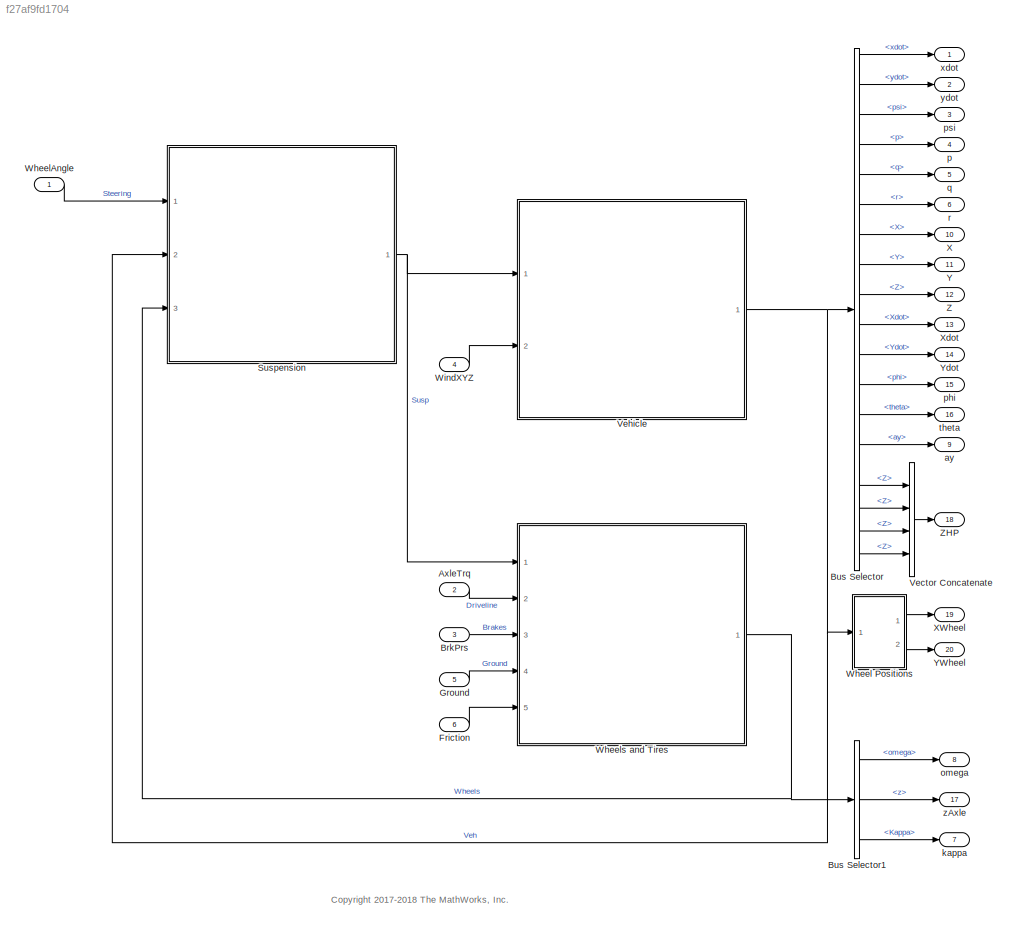
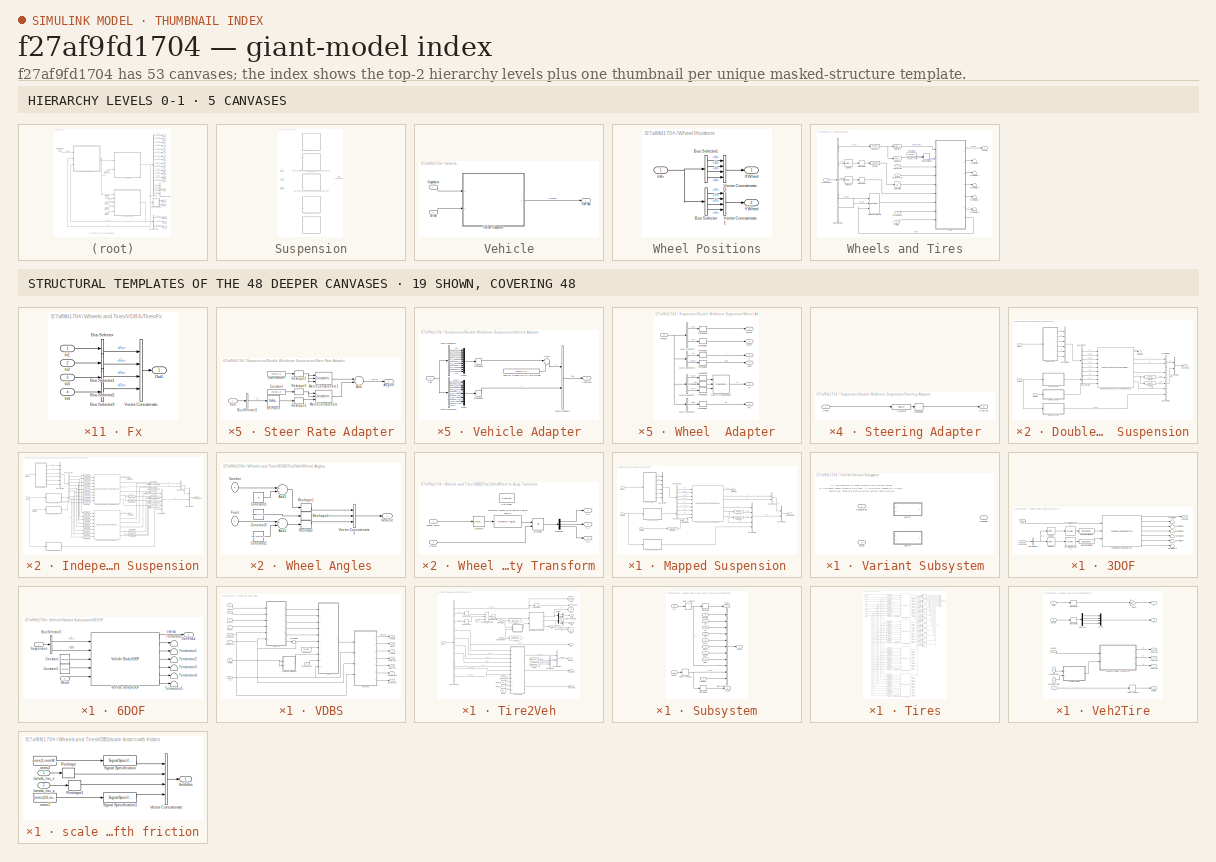
[diagram: thumbnail index - top-2 hierarchy levels (5 canvases) + 19 structural-template representatives of the remaining 48 canvases]
MODEL slx_f27af9fd1704
KIND model
CONFIG AbsTol = auto
CONFIG EnableMultiTasking = on
CONFIG FixedStep = .001
CONFIG MaxStep = auto
CONFIG MinStep = auto
CONFIG RelTol = 3e-3
CONFIG SampleTimeConstraint = Unconstrained
CONFIG Solver = ode23tb
CONFIG SolverName = ode23tb
CONFIG StartTime = 0.0
CONFIG StopTime = inf
WORKSPACE source: MAT-file member
WORKSPACE AxlIxx = 62.3745166667
BLOCK [Inport] AxleTrq
  IconDisplay = Port number
  Port = 2
  PortDimensions = 4
  Unit = N*m
BLOCK [Inport] BrkPrs
  IconDisplay = Port number
  Port = 3
  PortDimensions = 4
BLOCK [BusSelector] Bus Selector
  OutputAsBus = off
  OutputSignals = BdyFrm.Cg.Vel.xdot,BdyFrm.Cg.Vel.ydot,InertFrm.Cg.Ang.psi,BdyFrm.Cg.AngVel.p,BdyFrm.Cg.AngVel.q,BdyFrm.Cg.AngVel.r,InertFrm.Cg.Disp.X,InertFrm.Cg.Disp.Y,InertFrm.Cg.Disp.Z,InertFrm.Cg.Vel.Xdot,InertFrm.Cg.Vel.Ydot,InertFrm.Cg.Ang.phi,InertFrm.Cg.Ang.theta,BdyFrm.Cg.Acc.ay,InertFrm.FrntAxl.Lft.Disp.Z,InertFrm.FrntAxl.Rght.Disp.Z,InertFrm.RearAxl.Lft.Disp.Z,InertFrm.RearAxl.Rght.Disp.Z
  Ports = [1, 18]
BLOCK [BusSelector] Bus Selector1
  OutputAsBus = off
  OutputSignals = TireFrame.omega,TireFrame.z,TireFrame.Kappa
  Ports = [1, 3]
BLOCK [Inport] Friction
  IconDisplay = Port number
  Port = 6
  PortDimensions = 4
  Unit = 1
BLOCK [Inport] Ground
  IconDisplay = Port number
  Port = 5
  PortDimensions = 4
  Unit = m
BLOCK [SubSystem] Suspension
  OverrideUsingVariant = 2
  Ports = [3, 1]
  RequestExecContextInheritance = off
  Variant = on
BLOCK [SubSystem] Suspension/Double Wishbone Suspension
  Ports = [3, 1]
  RequestExecContextInheritance = off
  VariantControl = 1
BLOCK [BusCreator] Suspension/Double Wishbone Suspension/Bus Creator1
  DisplayOption = bar
  InheritFromInputs = on
  Inputs = 5
  Ports = [5, 1]
BLOCK [BusCreator] Suspension/Double Wishbone Suspension/Bus Creator2
  DisplayOption = bar
  InheritFromInputs = on
  Inputs = 2
  Ports = [2, 1]
BLOCK [BusCreator] Suspension/Double Wishbone Suspension/Bus Creator3
  DisplayOption = bar
  InheritFromInputs = on
  Inputs = 2
  Ports = [2, 1]
BLOCK [BusCreator] Suspension/Double Wishbone Suspension/Bus Creator4
  DisplayOption = bar
  InheritFromInputs = on
  Inputs = 6
  Ports = [6, 1]
BLOCK [BusSelector] Suspension/Double Wishbone Suspension/Bus Selector
  OutputAsBus = off
  OutputSignals = z,Re,zdot,Fx,Fy,M
  Ports = [1, 6]
BLOCK [BusSelector] Suspension/Double Wishbone Suspension/Bus Selector1
  OutputAsBus = off
  OutputSignals = P,V
  Ports = [1, 2]
BLOCK [Reference] Suspension/Double Wishbone Suspension/Independent Suspension – Double Wishbone  REF=vehdynlibsuspension/Independent Suspension - Double Wishbone
  Ports = [9, 6]
  SourceBlock = vehdynlibsuspension/Independent Suspension - Double Wishbone
  SourceProductBaseCode = VE
  SourceProductName = Vehicle Dynamics Blockset
  SourceType = Vehicle suspension
BLOCK [Selector] Suspension/Double Wishbone Suspension/Selector1
  IndexOptions = Index vector (dialog),Select all
  Indices = 1,1
  NumberOfDimensions = 2
  OutputSizes = 1,1
  Ports = [1, 1]
BLOCK [Selector] Suspension/Double Wishbone Suspension/Selector2
  IndexOptions = Index vector (dialog),Select all
  Indices = 2,1
  NumberOfDimensions = 2
  OutputSizes = 1,1
  Ports = [1, 1]
BLOCK [SubSystem] Suspension/Double Wishbone Suspension/Steer Rate Adapter
  Ports = [1, 1]
  RequestExecContextInheritance = off
BLOCK [Sum] Suspension/Double Wishbone Suspension/Steer Rate Adapter/Add
  InputSameDT = off
  OutDataTypeStr = Inherit: Inherit via internal rule
  Ports = [2, 1]
  SaturateOnIntegerOverflow = off
BLOCK [Outport] Suspension/Double Wishbone Suspension/Steer Rate Adapter/AngVel
  IconDisplay = Port number
BLOCK [BusSelector] Suspension/Double Wishbone Suspension/Steer Rate Adapter/Bus Selector3
  OutputAsBus = off
  OutputSignals = BdyFrm.Cg.AngVel.r
  Ports = [1, 1]
BLOCK [Constant] Suspension/Double Wishbone Suspension/Steer Rate Adapter/Constant
  Value = zeros(1,4)
BLOCK [Concatenate] Suspension/Double Wishbone Suspension/Steer Rate Adapter/Matrix Concatenate
  Mode = Multidimensional array
  NumInputs = 3
  Ports = [3, 1]
BLOCK [Concatenate] Suspension/Double Wishbone Suspension/Steer Rate Adapter/Matrix Concatenate1
  Mode = Multidimensional array
  NumInputs = 3
  Ports = [3, 1]
BLOCK [Reshape] Suspension/Double Wishbone Suspension/Steer Rate Adapter/Reshape2
  OutputDimensionality = Row vector (2-D)
  Ports = [1, 1]
BLOCK [Reshape] Suspension/Double Wishbone Suspension/Steer Rate Adapter/Reshape3
  OutputDimensionality = Row vector (2-D)
  Ports = [1, 1]
BLOCK [Reshape] Suspension/Double Wishbone Suspension/Steer Rate Adapter/Reshape4
  OutputDimensionality = Row vector (2-D)
  Ports = [1, 1]
BLOCK [Selector] Suspension/Double Wishbone Suspension/Steer Rate Adapter/Selector3
  IndexOptions = Index vector (dialog)
  Indices = [1 1 1 1]
  InputPortWidth = 1
  OutputSizes = 1
  Ports = [1, 1]
BLOCK [Constant] Suspension/Double Wishbone Suspension/Steer Rate Adapter/SteerRates
  Value = zeros(1,4)
BLOCK [Inport] Suspension/Double Wishbone Suspension/Steer Rate Adapter/Veh
  IconDisplay = Port number
BLOCK [Inport] Suspension/Double Wishbone Suspension/Steering
  IconDisplay = Port number
  Port = 2
BLOCK [SubSystem] Suspension/Double Wishbone Suspension/Steering Adapter
  Ports = [1, 1]
  RequestExecContextInheritance = off
BLOCK [Reshape] Suspension/Double Wishbone Suspension/Steering Adapter/Reshape1
  OutputDimensionality = Row vector (2-D)
  Ports = [1, 1]
BLOCK [Selector] Suspension/Double Wishbone Suspension/Steering Adapter/Selector
  IndexOptions = Index vector (dialog)
  Indices = [1 2]
  OutputSizes = 1
  Ports = [1, 1]
BLOCK [Inport] Suspension/Double Wishbone Suspension/Steering Adapter/Steer
  IconDisplay = Port number
BLOCK [Outport] Suspension/Double Wishbone Suspension/Steering Adapter/StrgAng
  IconDisplay = Port number
BLOCK [Outport] Suspension/Double Wishbone Suspension/Suspension
  IconDisplay = Port number
BLOCK [Terminator] Suspension/Double Wishbone Suspension/Terminator
BLOCK [Inport] Suspension/Double Wishbone Suspension/Vehicle
  IconDisplay = Port number
  Port = 3
BLOCK [SubSystem] Suspension/Double Wishbone Suspension/Vehicle Adapter
  Ports = [1, 1]
  RequestExecContextInheritance = off
BLOCK [BusCreator] Suspension/Double Wishbone Suspension/Vehicle Adapter/Bus Creator3
  DisplayOption = bar
  InheritFromInputs = on
  Inputs = 2
  Ports = [2, 1]
BLOCK [BusSelector] Suspension/Double Wishbone Suspension/Vehicle Adapter/Bus Selector1
  OutputAsBus = off
  OutputSignals = InertFrm.FrntAxl.Lft.Disp.X,InertFrm.FrntAxl.Lft.Disp.Y,InertFrm.FrntAxl.Lft.Disp.Z,InertFrm.FrntAxl.Rght.Disp.X,InertFrm.FrntAxl.Rght.Disp.Y,InertFrm.FrntAxl.Rght.Disp.Z,InertFrm.RearAxl.Lft.Disp.X,InertFrm.RearAxl.Lft.Disp.Y,InertFrm.RearAxl.Lft.Disp.Z,InertFrm.RearAxl.Rght.Disp.X,InertFrm.RearAxl.Rght.Disp.Y,InertFrm.RearAxl.Rght.Disp.Z  <repeated x5 — deduplicated; at blocks: Bus Selector1>
  Ports = [1, 12]
BLOCK [BusSelector] Suspension/Double Wishbone Suspension/Vehicle Adapter/Bus Selector2
  OutputAsBus = off
  OutputSignals = BdyFrm.FrntAxl.Lft.Vel.xdot,BdyFrm.FrntAxl.Lft.Vel.ydot,BdyFrm.FrntAxl.Lft.Vel.zdot,BdyFrm.FrntAxl.Rght.Vel.xdot,BdyFrm.FrntAxl.Rght.Vel.ydot,BdyFrm.FrntAxl.Rght.Vel.zdot,BdyFrm.RearAxl.Lft.Vel.xdot,BdyFrm.RearAxl.Lft.Vel.ydot,BdyFrm.RearAxl.Lft.Vel.zdot,BdyFrm.RearAxl.Rght.Vel.xdot,BdyFrm.RearAxl.Rght.Vel.ydot,BdyFrm.RearAxl.Rght.Vel.zdot  <repeated x5 — deduplicated; at blocks: Bus Selector2>
  Ports = [1, 12]
BLOCK [Constant] Suspension/Double Wishbone Suspension/Vehicle Adapter/Inertial Frame CG to Axle Offset
  Value = [zeros(2,4);h*ones(1,4)]
BLOCK [Mux] Suspension/Double Wishbone Suspension/Vehicle Adapter/Mux1
  DisplayOption = bar
  Inputs = 12
  Ports = [12, 1]
BLOCK [Mux] Suspension/Double Wishbone Suspension/Vehicle Adapter/Mux2
  DisplayOption = bar
  Inputs = 12
  Ports = [12, 1]
BLOCK [Reshape] Suspension/Double Wishbone Suspension/Vehicle Adapter/Reshape1
  OutputDimensionality = Customize
  OutputDimensions = [3,4]
  Ports = [1, 1]
BLOCK [Reshape] Suspension/Double Wishbone Suspension/Vehicle Adapter/Reshape2
  OutputDimensionality = Customize
  OutputDimensions = [3,4]
  Ports = [1, 1]
BLOCK [Sum] Suspension/Double Wishbone Suspension/Vehicle Adapter/Sum
  IconShape = round
  InputSameDT = off
  Inputs = |+-
  OutDataTypeStr = Inherit: Inherit via internal rule
  Ports = [2, 1]
  SaturateOnIntegerOverflow = off
BLOCK [Inport] Suspension/Double Wishbone Suspension/Vehicle Adapter/Veh
  IconDisplay = Port number
BLOCK [Outport] Suspension/Double Wishbone Suspension/Vehicle Adapter/VehSusp
  IconDisplay = Port number
BLOCK [Inport] Suspension/Double Wishbone Suspension/Wheel
  IconDisplay = Port number
BLOCK [SubSystem] Suspension/Double Wishbone Suspension/Wheel  Adapter
  Ports = [1, 6]
  RequestExecContextInheritance = off
BLOCK [BusSelector] Suspension/Double Wishbone Suspension/Wheel  Adapter/Bus Selector
  OutputAsBus = off
  OutputSignals = TireFrame.Fx,TireFrame.Fy
  Ports = [1, 2]
BLOCK [BusSelector] Suspension/Double Wishbone Suspension/Wheel  Adapter/Bus Selector1
  OutputAsBus = off
  OutputSignals = TireFrame.Re
  Ports = [1, 1]
BLOCK [BusSelector] Suspension/Double Wishbone Suspension/Wheel  Adapter/Bus Selector2
  OutputAsBus = off
  OutputSignals = TireFrame.Mx,TireFrame.My,TireFrame.Mz
  Ports = [1, 3]
BLOCK [BusSelector] Suspension/Double Wishbone Suspension/Wheel  Adapter/Bus Selector3
  OutputAsBus = off
  OutputSignals = TireFrame.z,TireFrame.zdot
  Ports = [1, 2]
BLOCK [Outport] Suspension/Double Wishbone Suspension/Wheel  Adapter/M
  IconDisplay = Port number
  Port = 5
BLOCK [Concatenate] Suspension/Double Wishbone Suspension/Wheel  Adapter/Matrix Concatenate
  Mode = Multidimensional array
  NumInputs = 3
  Ports = [3, 1]
BLOCK [Outport] Suspension/Double Wishbone Suspension/Wheel  Adapter/Re
  IconDisplay = Port number
  Port = 6
BLOCK [Reshape] Suspension/Double Wishbone Suspension/Wheel  Adapter/Reshape
  OutputDimensionality = Row vector (2-D)
  Ports = [1, 1]
BLOCK [Reshape] Suspension/Double Wishbone Suspension/Wheel  Adapter/Reshape1
  OutputDimensionality = Row vector (2-D)
  Ports = [1, 1]
BLOCK [Reshape] Suspension/Double Wishbone Suspension/Wheel  Adapter/Reshape2
  OutputDimensionality = Row vector (2-D)
  Ports = [1, 1]
BLOCK [Reshape] Suspension/Double Wishbone Suspension/Wheel  Adapter/Reshape3
  OutputDimensionality = Row vector (2-D)
  Ports = [1, 1]
BLOCK [Reshape] Suspension/Double Wishbone Suspension/Wheel  Adapter/Reshape4
  OutputDimensionality = Row vector (2-D)
  Ports = [1, 1]
BLOCK [Reshape] Suspension/Double Wishbone Suspension/Wheel  Adapter/Reshape5
  OutputDimensionality = Row vector (2-D)
  Ports = [1, 1]
BLOCK [Reshape] Suspension/Double Wishbone Suspension/Wheel  Adapter/Reshape6
  OutputDimensionality = Row vector (2-D)
  Ports = [1, 1]
BLOCK [Reshape] Suspension/Double Wishbone Suspension/Wheel  Adapter/Reshape7
  OutputDimensionality = Row vector (2-D)
  Ports = [1, 1]
BLOCK [Inport] Suspension/Double Wishbone Suspension/Wheel  Adapter/Wheels
  IconDisplay = Port number
BLOCK [Outport] Suspension/Double Wishbone Suspension/Wheel  Adapter/WhlFx
  IconDisplay = Port number
BLOCK [Outport] Suspension/Double Wishbone Suspension/Wheel  Adapter/WhlFy
  IconDisplay = Port number
  Port = 2
BLOCK [Outport] Suspension/Double Wishbone Suspension/Wheel  Adapter/z
  IconDisplay = Port number
  Port = 3
BLOCK [Outport] Suspension/Double Wishbone Suspension/Wheel  Adapter/zdot
  IconDisplay = Port number
  Port = 4
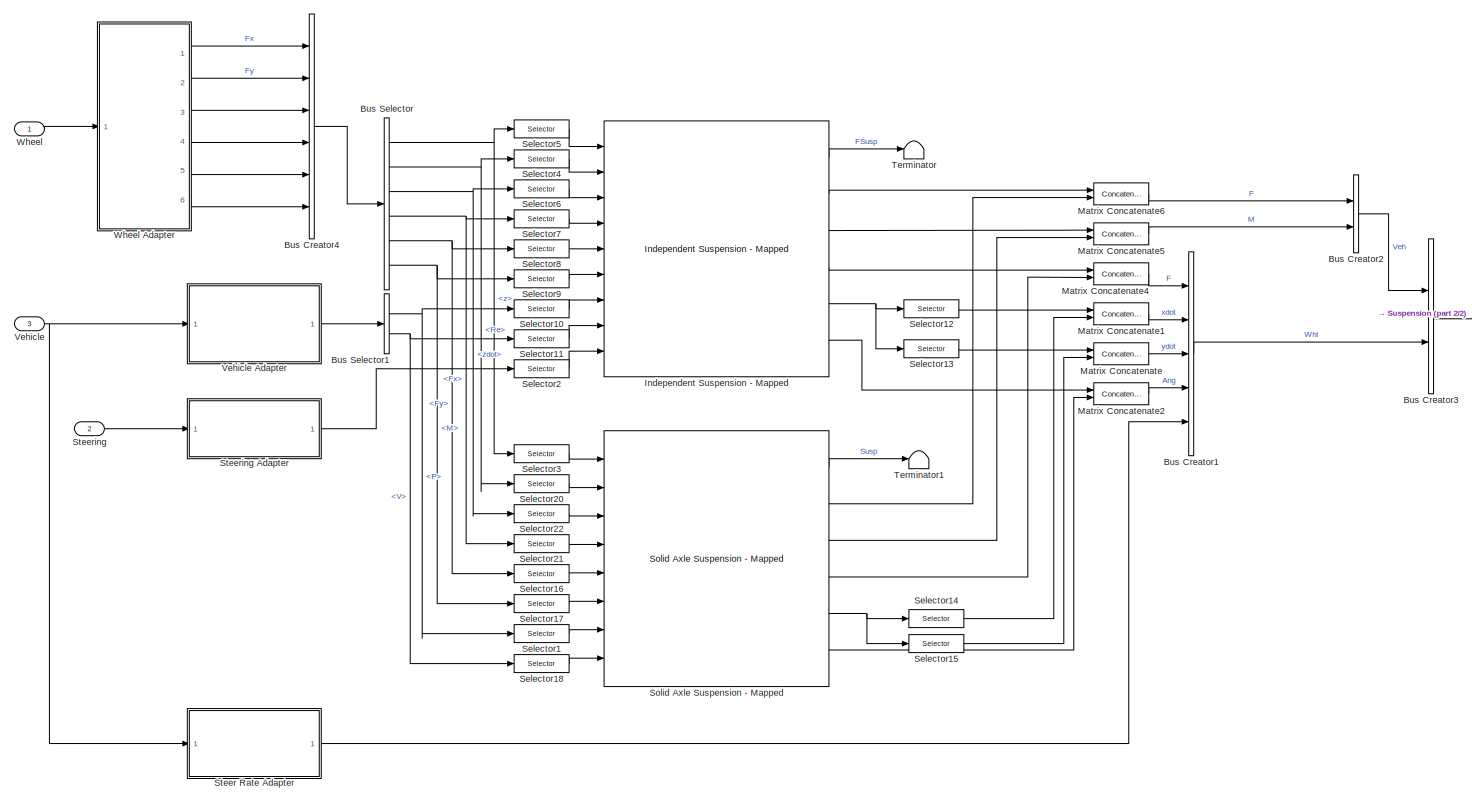
[diagram: Suspension/Independent Mapped Front Suspension Mapped Solid Axle Rear Suspension - part 1/2, most of the canvas]
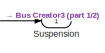
[diagram: Suspension/Independent Mapped Front Suspension Mapped Solid Axle Rear Suspension - part 2/2, middle right region]
BLOCK [SubSystem] Suspension/Independent Mapped Front Suspension Mapped Solid Axle Rear Suspension
  Ports = [3, 1]
  RequestExecContextInheritance = off
  VariantControl = 2
BLOCK [BusCreator] Suspension/Independent Mapped Front Suspension Mapped Solid Axle Rear Suspension/Bus Creator1
  DisplayOption = bar
  InheritFromInputs = on
  Inputs = 5
  Ports = [5, 1]
BLOCK [BusCreator] Suspension/Independent Mapped Front Suspension Mapped Solid Axle Rear Suspension/Bus Creator2
  DisplayOption = bar
  InheritFromInputs = on
  Inputs = 2
  Ports = [2, 1]
BLOCK [BusCreator] Suspension/Independent Mapped Front Suspension Mapped Solid Axle Rear Suspension/Bus Creator3
  DisplayOption = bar
  InheritFromInputs = on
  Inputs = 2
  Ports = [2, 1]
BLOCK [BusCreator] Suspension/Independent Mapped Front Suspension Mapped Solid Axle Rear Suspension/Bus Creator4
  DisplayOption = bar
  InheritFromInputs = on
  Inputs = 6
  Ports = [6, 1]
BLOCK [BusSelector] Suspension/Independent Mapped Front Suspension Mapped Solid Axle Rear Suspension/Bus Selector
  OutputAsBus = off
  OutputSignals = z,Re,zdot,Fx,Fy,M
  Ports = [1, 6]
BLOCK [BusSelector] Suspension/Independent Mapped Front Suspension Mapped Solid Axle Rear Suspension/Bus Selector1
  OutputAsBus = off
  OutputSignals = P,V
  Ports = [1, 2]
BLOCK [Reference] Suspension/Independent Mapped Front Suspension Mapped Solid Axle Rear Suspension/Independent Suspension - Mapped  REF=vehdynlibsuspension/Independent Suspension - Mapped
  Ports = [9, 6]
  SourceBlock = vehdynlibsuspension/Independent Suspension - Mapped
  SourceProductName = Vehicle Dynamics Blockset
  SourceType = Vehicle suspension
BLOCK [Concatenate] Suspension/Independent Mapped Front Suspension Mapped Solid Axle Rear Suspension/Matrix Concatenate
  ConcatenateDimension = 2
  Mode = Multidimensional array
  Ports = [2, 1]
BLOCK [Concatenate] Suspension/Independent Mapped Front Suspension Mapped Solid Axle Rear Suspension/Matrix Concatenate1
  ConcatenateDimension = 2
  Mode = Multidimensional array
  Ports = [2, 1]
BLOCK [Concatenate] Suspension/Independent Mapped Front Suspension Mapped Solid Axle Rear Suspension/Matrix Concatenate2
  ConcatenateDimension = 2
  Mode = Multidimensional array
  Ports = [2, 1]
BLOCK [Concatenate] Suspension/Independent Mapped Front Suspension Mapped Solid Axle Rear Suspension/Matrix Concatenate4
  ConcatenateDimension = 2
  Mode = Multidimensional array
  Ports = [2, 1]
BLOCK [Concatenate] Suspension/Independent Mapped Front Suspension Mapped Solid Axle Rear Suspension/Matrix Concatenate5
  ConcatenateDimension = 2
  Mode = Multidimensional array
  Ports = [2, 1]
BLOCK [Concatenate] Suspension/Independent Mapped Front Suspension Mapped Solid Axle Rear Suspension/Matrix Concatenate6
  ConcatenateDimension = 2
  Mode = Multidimensional array
  Ports = [2, 1]
BLOCK [Selector] Suspension/Independent Mapped Front Suspension Mapped Solid Axle Rear Suspension/Selector1
  IndexOptions = Select all,Index vector (dialog)
  Indices = [1 2],[3 4]
  NumberOfDimensions = 2
  OutputSizes = 1,1
  Ports = [1, 1]
BLOCK [Selector] Suspension/Independent Mapped Front Suspension Mapped Solid Axle Rear Suspension/Selector10
  IndexOptions = Select all,Index vector (dialog)
  Indices = [1 2],[1 2]
  NumberOfDimensions = 2
  OutputSizes = 1,1
  Ports = [1, 1]
BLOCK [Selector] Suspension/Independent Mapped Front Suspension Mapped Solid Axle Rear Suspension/Selector11
  IndexOptions = Select all,Index vector (dialog)
  Indices = [1 2],[1 2]
  NumberOfDimensions = 2
  OutputSizes = 1,1
  Ports = [1, 1]
BLOCK [Selector] Suspension/Independent Mapped Front Suspension Mapped Solid Axle Rear Suspension/Selector12
  IndexOptions = Index vector (dialog),Select all
  Indices = 1,1
  InputPortWidth = 3
  NumberOfDimensions = 2
  OutputSizes = 1,1
  Ports = [1, 1]
BLOCK [Selector] Suspension/Independent Mapped Front Suspension Mapped Solid Axle Rear Suspension/Selector13
  IndexOptions = Index vector (dialog),Select all
  Indices = 2,1
  InputPortWidth = 3
  NumberOfDimensions = 2
  OutputSizes = 1,1
  Ports = [1, 1]
BLOCK [Selector] Suspension/Independent Mapped Front Suspension Mapped Solid Axle Rear Suspension/Selector14
  IndexOptions = Index vector (dialog),Select all
  Indices = 1,1
  InputPortWidth = 3
  NumberOfDimensions = 2
  OutputSizes = 1,1
  Ports = [1, 1]
BLOCK [Selector] Suspension/Independent Mapped Front Suspension Mapped Solid Axle Rear Suspension/Selector15
  IndexOptions = Index vector (dialog),Select all
  Indices = 2,1
  InputPortWidth = 3
  NumberOfDimensions = 2
  OutputSizes = 1,1
  Ports = [1, 1]
BLOCK [Selector] Suspension/Independent Mapped Front Suspension Mapped Solid Axle Rear Suspension/Selector16
  IndexOptions = Index vector (dialog)
  Indices = [3 4]
  OutputSizes = 1
  Ports = [1, 1]
BLOCK [Selector] Suspension/Independent Mapped Front Suspension Mapped Solid Axle Rear Suspension/Selector17
  IndexOptions = Select all,Index vector (dialog)
  Indices = [1 2],[3 4]
  NumberOfDimensions = 2
  OutputSizes = 1,1
  Ports = [1, 1]
BLOCK [Selector] Suspension/Independent Mapped Front Suspension Mapped Solid Axle Rear Suspension/Selector18
  IndexOptions = Select all,Index vector (dialog)
  Indices = [1 2],[3 4]
  NumberOfDimensions = 2
  OutputSizes = 1,1
  Ports = [1, 1]
BLOCK [Selector] Suspension/Independent Mapped Front Suspension Mapped Solid Axle Rear Suspension/Selector2
  IndexOptions = Index vector (dialog)
  Indices = [1 2]
  OutputSizes = 1
  Ports = [1, 1]
BLOCK [Selector] Suspension/Independent Mapped Front Suspension Mapped Solid Axle Rear Suspension/Selector20
  IndexOptions = Index vector (dialog)
  Indices = [3 4]
  OutputSizes = 1
  Ports = [1, 1]
BLOCK [Selector] Suspension/Independent Mapped Front Suspension Mapped Solid Axle Rear Suspension/Selector21
  IndexOptions = Index vector (dialog)
  Indices = [3 4]
  OutputSizes = 1
  Ports = [1, 1]
BLOCK [Selector] Suspension/Independent Mapped Front Suspension Mapped Solid Axle Rear Suspension/Selector22
  IndexOptions = Index vector (dialog)
  Indices = [3 4]
  OutputSizes = 1
  Ports = [1, 1]
BLOCK [Selector] Suspension/Independent Mapped Front Suspension Mapped Solid Axle Rear Suspension/Selector3
  IndexOptions = Index vector (dialog)
  Indices = [3 4]
  OutputSizes = 1
  Ports = [1, 1]
BLOCK [Selector] Suspension/Independent Mapped Front Suspension Mapped Solid Axle Rear Suspension/Selector4
  IndexOptions = Index vector (dialog)
  Indices = [1 2]
  OutputSizes = 1
  Ports = [1, 1]
BLOCK [Selector] Suspension/Independent Mapped Front Suspension Mapped Solid Axle Rear Suspension/Selector5
  IndexOptions = Index vector (dialog)
  Indices = [1 2]
  OutputSizes = 1
  Ports = [1, 1]
BLOCK [Selector] Suspension/Independent Mapped Front Suspension Mapped Solid Axle Rear Suspension/Selector6
  IndexOptions = Index vector (dialog)
  Indices = [1 2]
  OutputSizes = 1
  Ports = [1, 1]
BLOCK [Selector] Suspension/Independent Mapped Front Suspension Mapped Solid Axle Rear Suspension/Selector7
  IndexOptions = Index vector (dialog)
  Indices = [1 2]
  OutputSizes = 1
  Ports = [1, 1]
BLOCK [Selector] Suspension/Independent Mapped Front Suspension Mapped Solid Axle Rear Suspension/Selector8
  IndexOptions = Index vector (dialog)
  Indices = [1 2]
  OutputSizes = 1
  Ports = [1, 1]
BLOCK [Selector] Suspension/Independent Mapped Front Suspension Mapped Solid Axle Rear Suspension/Selector9
  IndexOptions = Select all,Index vector (dialog)
  Indices = [1 2],[1 2]
  NumberOfDimensions = 2
  OutputSizes = 1,1
  Ports = [1, 1]
BLOCK [Reference] Suspension/Independent Mapped Front Suspension Mapped Solid Axle Rear Suspension/Solid Axle Suspension - Mapped  REF=vehdynlibsuspension/Solid Axle Suspension - Mapped
  Ports = [8, 6]
  SourceBlock = vehdynlibsuspension/Solid Axle Suspension - Mapped
  SourceProductName = Vehicle Dynamics Blockset
  SourceType = Vehicle suspension
BLOCK [SubSystem] Suspension/Independent Mapped Front Suspension Mapped Solid Axle Rear Suspension/Steer Rate Adapter
  Ports = [1, 1]
  RequestExecContextInheritance = off
BLOCK [Sum] Suspension/Independent Mapped Front Suspension Mapped Solid Axle Rear Suspension/Steer Rate Adapter/Add
  InputSameDT = off
  OutDataTypeStr = Inherit: Inherit via internal rule
  Ports = [2, 1]
  SaturateOnIntegerOverflow = off
BLOCK [Outport] Suspension/Independent Mapped Front Suspension Mapped Solid Axle Rear Suspension/Steer Rate Adapter/AngVel
  IconDisplay = Port number
BLOCK [BusSelector] Suspension/Independent Mapped Front Suspension Mapped Solid Axle Rear Suspension/Steer Rate Adapter/Bus Selector3
  OutputAsBus = off
  OutputSignals = BdyFrm.Cg.AngVel.r
  Ports = [1, 1]
BLOCK [Constant] Suspension/Independent Mapped Front Suspension Mapped Solid Axle Rear Suspension/Steer Rate Adapter/Constant
  Value = zeros(1,4)
BLOCK [Concatenate] Suspension/Independent Mapped Front Suspension Mapped Solid Axle Rear Suspension/Steer Rate Adapter/Matrix Concatenate
  Mode = Multidimensional array
  NumInputs = 3
  Ports = [3, 1]
BLOCK [Concatenate] Suspension/Independent Mapped Front Suspension Mapped Solid Axle Rear Suspension/Steer Rate Adapter/Matrix Concatenate1
  Mode = Multidimensional array
  NumInputs = 3
  Ports = [3, 1]
BLOCK [Reshape] Suspension/Independent Mapped Front Suspension Mapped Solid Axle Rear Suspension/Steer Rate Adapter/Reshape2
  OutputDimensionality = Row vector (2-D)
  Ports = [1, 1]
BLOCK [Reshape] Suspension/Independent Mapped Front Suspension Mapped Solid Axle Rear Suspension/Steer Rate Adapter/Reshape3
  OutputDimensionality = Row vector (2-D)
  Ports = [1, 1]
BLOCK [Reshape] Suspension/Independent Mapped Front Suspension Mapped Solid Axle Rear Suspension/Steer Rate Adapter/Reshape4
  OutputDimensionality = Row vector (2-D)
  Ports = [1, 1]
BLOCK [Selector] Suspension/Independent Mapped Front Suspension Mapped Solid Axle Rear Suspension/Steer Rate Adapter/Selector3
  IndexOptions = Index vector (dialog)
  Indices = [1 1 1 1]
  InputPortWidth = 1
  OutputSizes = 1
  Ports = [1, 1]
BLOCK [Constant] Suspension/Independent Mapped Front Suspension Mapped Solid Axle Rear Suspension/Steer Rate Adapter/SteerRates
  Value = zeros(1,4)
BLOCK [Inport] Suspension/Independent Mapped Front Suspension Mapped Solid Axle Rear Suspension/Steer Rate Adapter/Veh
  IconDisplay = Port number
BLOCK [Inport] Suspension/Independent Mapped Front Suspension Mapped Solid Axle Rear Suspension/Steering
  IconDisplay = Port number
  Port = 2
BLOCK [SubSystem] Suspension/Independent Mapped Front Suspension Mapped Solid Axle Rear Suspension/Steering Adapter
  Ports = [1, 1]
  RequestExecContextInheritance = off
BLOCK [Reshape] Suspension/Independent Mapped Front Suspension Mapped Solid Axle Rear Suspension/Steering Adapter/Reshape1
  OutputDimensionality = Row vector (2-D)
  Ports = [1, 1]
BLOCK [Selector] Suspension/Independent Mapped Front Suspension Mapped Solid Axle Rear Suspension/Steering Adapter/Selector
  IndexOptions = Index vector (dialog)
  Indices = [1 2]
  OutputSizes = 1
  Ports = [1, 1]
BLOCK [Inport] Suspension/Independent Mapped Front Suspension Mapped Solid Axle Rear Suspension/Steering Adapter/Steer
  IconDisplay = Port number
BLOCK [Outport] Suspension/Independent Mapped Front Suspension Mapped Solid Axle Rear Suspension/Steering Adapter/StrgAng
  IconDisplay = Port number
BLOCK [Outport] Suspension/Independent Mapped Front Suspension Mapped Solid Axle Rear Suspension/Suspension
  IconDisplay = Port number
BLOCK [Terminator] Suspension/Independent Mapped Front Suspension Mapped Solid Axle Rear Suspension/Terminator
BLOCK [Terminator] Suspension/Independent Mapped Front Suspension Mapped Solid Axle Rear Suspension/Terminator1
BLOCK [Inport] Suspension/Independent Mapped Front Suspension Mapped Solid Axle Rear Suspension/Vehicle
  IconDisplay = Port number
  Port = 3
BLOCK [SubSystem] Suspension/Independent Mapped Front Suspension Mapped Solid Axle Rear Suspension/Vehicle Adapter
  Ports = [1, 1]
  RequestExecContextInheritance = off
BLOCK [BusCreator] Suspension/Independent Mapped Front Suspension Mapped Solid Axle Rear Suspension/Vehicle Adapter/Bus Creator3
  DisplayOption = bar
  InheritFromInputs = on
  Inputs = 2
  Ports = [2, 1]
BLOCK [BusSelector] Suspension/Independent Mapped Front Suspension Mapped Solid Axle Rear Suspension/Vehicle Adapter/Bus Selector1
  OutputAsBus = off
  Ports = [1, 12]
BLOCK [BusSelector] Suspension/Independent Mapped Front Suspension Mapped Solid Axle Rear Suspension/Vehicle Adapter/Bus Selector2
  OutputAsBus = off
  Ports = [1, 12]
BLOCK [Constant] Suspension/Independent Mapped Front Suspension Mapped Solid Axle Rear Suspension/Vehicle Adapter/Inertial Frame CG to Axle Offset
  Value = [zeros(2,4);h*ones(1,4)]
BLOCK [Mux] Suspension/Independent Mapped Front Suspension Mapped Solid Axle Rear Suspension/Vehicle Adapter/Mux1
  DisplayOption = bar
  Inputs = 12
  Ports = [12, 1]
BLOCK [Mux] Suspension/Independent Mapped Front Suspension Mapped Solid Axle Rear Suspension/Vehicle Adapter/Mux2
  DisplayOption = bar
  Inputs = 12
  Ports = [12, 1]
BLOCK [Reshape] Suspension/Independent Mapped Front Suspension Mapped Solid Axle Rear Suspension/Vehicle Adapter/Reshape
  OutputDimensionality = Customize
  OutputDimensions = [3,4]
  Ports = [1, 1]
BLOCK [Reshape] Suspension/Independent Mapped Front Suspension Mapped Solid Axle Rear Suspension/Vehicle Adapter/Reshape2
  OutputDimensionality = Customize
  OutputDimensions = [3,4]
  Ports = [1, 1]
BLOCK [Sum] Suspension/Independent Mapped Front Suspension Mapped Solid Axle Rear Suspension/Vehicle Adapter/Sum
  IconShape = round
  InputSameDT = off
  Inputs = |+-
  OutDataTypeStr = Inherit: Inherit via internal rule
  Ports = [2, 1]
  SaturateOnIntegerOverflow = off
BLOCK [Inport] Suspension/Independent Mapped Front Suspension Mapped Solid Axle Rear Suspension/Vehicle Adapter/Veh
  IconDisplay = Port number
BLOCK [Outport] Suspension/Independent Mapped Front Suspension Mapped Solid Axle Rear Suspension/Vehicle Adapter/VehSusp
  IconDisplay = Port number
BLOCK [Inport] Suspension/Independent Mapped Front Suspension Mapped Solid Axle Rear Suspension/Wheel
  IconDisplay = Port number
BLOCK [SubSystem] Suspension/Independent Mapped Front Suspension Mapped Solid Axle Rear Suspension/Wheel  Adapter
  Ports = [1, 6]
  RequestExecContextInheritance = off
BLOCK [BusSelector] Suspension/Independent Mapped Front Suspension Mapped Solid Axle Rear Suspension/Wheel  Adapter/Bus Selector
  OutputAsBus = off
  OutputSignals = TireFrame.Fx,TireFrame.Fy
  Ports = [1, 2]
BLOCK [BusSelector] Suspension/Independent Mapped Front Suspension Mapped Solid Axle Rear Suspension/Wheel  Adapter/Bus Selector1
  OutputAsBus = off
  OutputSignals = TireFrame.Re
  Ports = [1, 1]
BLOCK [BusSelector] Suspension/Independent Mapped Front Suspension Mapped Solid Axle Rear Suspension/Wheel  Adapter/Bus Selector2
  OutputAsBus = off
  OutputSignals = TireFrame.Mx,TireFrame.My,TireFrame.Mz
  Ports = [1, 3]
BLOCK [BusSelector] Suspension/Independent Mapped Front Suspension Mapped Solid Axle Rear Suspension/Wheel  Adapter/Bus Selector3
  OutputAsBus = off
  OutputSignals = TireFrame.z,TireFrame.zdot
  Ports = [1, 2]
BLOCK [Outport] Suspension/Independent Mapped Front Suspension Mapped Solid Axle Rear Suspension/Wheel  Adapter/M
  IconDisplay = Port number
  Port = 5
BLOCK [Concatenate] Suspension/Independent Mapped Front Suspension Mapped Solid Axle Rear Suspension/Wheel  Adapter/Matrix Concatenate
  Mode = Multidimensional array
  NumInputs = 3
  Ports = [3, 1]
BLOCK [Outport] Suspension/Independent Mapped Front Suspension Mapped Solid Axle Rear Suspension/Wheel  Adapter/Re
  IconDisplay = Port number
  Port = 6
BLOCK [Reshape] Suspension/Independent Mapped Front Suspension Mapped Solid Axle Rear Suspension/Wheel  Adapter/Reshape
  OutputDimensionality = Row vector (2-D)
  Ports = [1, 1]
BLOCK [Reshape] Suspension/Independent Mapped Front Suspension Mapped Solid Axle Rear Suspension/Wheel  Adapter/Reshape1
  OutputDimensionality = Row vector (2-D)
  Ports = [1, 1]
BLOCK [Reshape] Suspension/Independent Mapped Front Suspension Mapped Solid Axle Rear Suspension/Wheel  Adapter/Reshape2
  OutputDimensionality = Row vector (2-D)
  Ports = [1, 1]
BLOCK [Reshape] Suspension/Independent Mapped Front Suspension Mapped Solid Axle Rear Suspension/Wheel  Adapter/Reshape3
  OutputDimensionality = Row vector (2-D)
  Ports = [1, 1]
BLOCK [Reshape] Suspension/Independent Mapped Front Suspension Mapped Solid Axle Rear Suspension/Wheel  Adapter/Reshape4
  OutputDimensionality = Row vector (2-D)
  Ports = [1, 1]
BLOCK [Reshape] Suspension/Independent Mapped Front Suspension Mapped Solid Axle Rear Suspension/Wheel  Adapter/Reshape5
  OutputDimensionality = Row vector (2-D)
  Ports = [1, 1]
BLOCK [Reshape] Suspension/Independent Mapped Front Suspension Mapped Solid Axle Rear Suspension/Wheel  Adapter/Reshape6
  OutputDimensionality = Row vector (2-D)
  Ports = [1, 1]
BLOCK [Reshape] Suspension/Independent Mapped Front Suspension Mapped Solid Axle Rear Suspension/Wheel  Adapter/Reshape7
  OutputDimensionality = Row vector (2-D)
  Ports = [1, 1]
BLOCK [Inport] Suspension/Independent Mapped Front Suspension Mapped Solid Axle Rear Suspension/Wheel  Adapter/Wheels
  IconDisplay = Port number
BLOCK [Outport] Suspension/Independent Mapped Front Suspension Mapped Solid Axle Rear Suspension/Wheel  Adapter/WhlFx
  IconDisplay = Port number
BLOCK [Outport] Suspension/Independent Mapped Front Suspension Mapped Solid Axle Rear Suspension/Wheel  Adapter/WhlFy
  IconDisplay = Port number
  Port = 2
BLOCK [Outport] Suspension/Independent Mapped Front Suspension Mapped Solid Axle Rear Suspension/Wheel  Adapter/z
  IconDisplay = Port number
  Port = 3
BLOCK [Outport] Suspension/Independent Mapped Front Suspension Mapped Solid Axle Rear Suspension/Wheel  Adapter/zdot
  IconDisplay = Port number
  Port = 4
BLOCK [SubSystem] Suspension/MacPherson Front Suspension Solid Axle Rear Suspension
  Ports = [3, 1]
  RequestExecContextInheritance = off
  VariantControl = 3
BLOCK [BusCreator] Suspension/MacPherson Front Suspension Solid Axle Rear Suspension/Bus Creator1
  DisplayOption = bar
  InheritFromInputs = on
  Inputs = 5
  Ports = [5, 1]
BLOCK [BusCreator] Suspension/MacPherson Front Suspension Solid Axle Rear Suspension/Bus Creator2
  DisplayOption = bar
  InheritFromInputs = on
  Inputs = 2
  Ports = [2, 1]
BLOCK [BusCreator] Suspension/MacPherson Front Suspension Solid Axle Rear Suspension/Bus Creator3
  DisplayOption = bar
  InheritFromInputs = on
  Inputs = 2
  Ports = [2, 1]
BLOCK [BusCreator] Suspension/MacPherson Front Suspension Solid Axle Rear Suspension/Bus Creator4
  DisplayOption = bar
  InheritFromInputs = on
  Inputs = 6
  Ports = [6, 1]
BLOCK [BusSelector] Suspension/MacPherson Front Suspension Solid Axle Rear Suspension/Bus Selector
  OutputAsBus = off
  OutputSignals = z,Re,zdot,Fx,Fy,M
  Ports = [1, 6]
BLOCK [BusSelector] Suspension/MacPherson Front Suspension Solid Axle Rear Suspension/Bus Selector1
  OutputAsBus = off
  OutputSignals = P,V
  Ports = [1, 2]
BLOCK [Concatenate] Suspension/MacPherson Front Suspension Solid Axle Rear Suspension/Matrix Concatenate
  ConcatenateDimension = 2
  Mode = Multidimensional array
  Ports = [2, 1]
BLOCK [Concatenate] Suspension/MacPherson Front Suspension Solid Axle Rear Suspension/Matrix Concatenate1
  ConcatenateDimension = 2
  Mode = Multidimensional array
  Ports = [2, 1]
BLOCK [Concatenate] Suspension/MacPherson Front Suspension Solid Axle Rear Suspension/Matrix Concatenate2
  ConcatenateDimension = 2
  Mode = Multidimensional array
  Ports = [2, 1]
BLOCK [Concatenate] Suspension/MacPherson Front Suspension Solid Axle Rear Suspension/Matrix Concatenate4
  ConcatenateDimension = 2
  Mode = Multidimensional array
  Ports = [2, 1]
BLOCK [Concatenate] Suspension/MacPherson Front Suspension Solid Axle Rear Suspension/Matrix Concatenate5
  ConcatenateDimension = 2
  Mode = Multidimensional array
  Ports = [2, 1]
BLOCK [Concatenate] Suspension/MacPherson Front Suspension Solid Axle Rear Suspension/Matrix Concatenate6
  ConcatenateDimension = 2
  Mode = Multidimensional array
  Ports = [2, 1]
BLOCK [Selector] Suspension/MacPherson Front Suspension Solid Axle Rear Suspension/Selector1
  IndexOptions = Select all,Index vector (dialog)
  Indices = [1 2],[3 4]
  NumberOfDimensions = 2
  OutputSizes = 1,1
  Ports = [1, 1]
BLOCK [Selector] Suspension/MacPherson Front Suspension Solid Axle Rear Suspension/Selector10
  IndexOptions = Select all,Index vector (dialog)
  Indices = [1 2],[1 2]
  NumberOfDimensions = 2
  OutputSizes = 1,1
  Ports = [1, 1]
BLOCK [Selector] Suspension/MacPherson Front Suspension Solid Axle Rear Suspension/Selector11
  IndexOptions = Select all,Index vector (dialog)
  Indices = [1 2],[1 2]
  NumberOfDimensions = 2
  OutputSizes = 1,1
  Ports = [1, 1]
BLOCK [Selector] Suspension/MacPherson Front Suspension Solid Axle Rear Suspension/Selector12
  IndexOptions = Index vector (dialog),Select all
  Indices = 1,1
  InputPortWidth = 3
  NumberOfDimensions = 2
  OutputSizes = 1,1
  Ports = [1, 1]
BLOCK [Selector] Suspension/MacPherson Front Suspension Solid Axle Rear Suspension/Selector13
  IndexOptions = Index vector (dialog),Select all
  Indices = 2,1
  InputPortWidth = 3
  NumberOfDimensions = 2
  OutputSizes = 1,1
  Ports = [1, 1]
BLOCK [Selector] Suspension/MacPherson Front Suspension Solid Axle Rear Suspension/Selector14
  IndexOptions = Index vector (dialog),Select all
  Indices = 1,1
  InputPortWidth = 3
  NumberOfDimensions = 2
  OutputSizes = 1,1
  Ports = [1, 1]
BLOCK [Selector] Suspension/MacPherson Front Suspension Solid Axle Rear Suspension/Selector15
  IndexOptions = Index vector (dialog),Select all
  Indices = 2,1
  InputPortWidth = 3
  NumberOfDimensions = 2
  OutputSizes = 1,1
  Ports = [1, 1]
BLOCK [Selector] Suspension/MacPherson Front Suspension Solid Axle Rear Suspension/Selector16
  IndexOptions = Index vector (dialog)
  Indices = [3 4]
  OutputSizes = 1
  Ports = [1, 1]
BLOCK [Selector] Suspension/MacPherson Front Suspension Solid Axle Rear Suspension/Selector17
  IndexOptions = Select all,Index vector (dialog)
  Indices = [1 2],[3 4]
  NumberOfDimensions = 2
  OutputSizes = 1,1
  Ports = [1, 1]
BLOCK [Selector] Suspension/MacPherson Front Suspension Solid Axle Rear Suspension/Selector18
  IndexOptions = Select all,Index vector (dialog)
  Indices = [1 2],[3 4]
  NumberOfDimensions = 2
  OutputSizes = 1,1
  Ports = [1, 1]
BLOCK [Selector] Suspension/MacPherson Front Suspension Solid Axle Rear Suspension/Selector2
  IndexOptions = Index vector (dialog)
  Indices = [1 2]
  OutputSizes = 1
  Ports = [1, 1]
BLOCK [Selector] Suspension/MacPherson Front Suspension Solid Axle Rear Suspension/Selector20
  IndexOptions = Index vector (dialog)
  Indices = [3 4]
  OutputSizes = 1
  Ports = [1, 1]
BLOCK [Selector] Suspension/MacPherson Front Suspension Solid Axle Rear Suspension/Selector21
  IndexOptions = Index vector (dialog)
  Indices = [3 4]
  OutputSizes = 1
  Ports = [1, 1]
BLOCK [Selector] Suspension/MacPherson Front Suspension Solid Axle Rear Suspension/Selector22
  IndexOptions = Index vector (dialog)
  Indices = [3 4]
  OutputSizes = 1
  Ports = [1, 1]
BLOCK [Selector] Suspension/MacPherson Front Suspension Solid Axle Rear Suspension/Selector3
  IndexOptions = Index vector (dialog)
  Indices = [3 4]
  OutputSizes = 1
  Ports = [1, 1]
BLOCK [Selector] Suspension/MacPherson Front Suspension Solid Axle Rear Suspension/Selector4
  IndexOptions = Index vector (dialog)
  Indices = [1 2]
  OutputSizes = 1
  Ports = [1, 1]
BLOCK [Selector] Suspension/MacPherson Front Suspension Solid Axle Rear Suspension/Selector5
  IndexOptions = Index vector (dialog)
  Indices = [1 2]
  OutputSizes = 1
  Ports = [1, 1]
BLOCK [Selector] Suspension/MacPherson Front Suspension Solid Axle Rear Suspension/Selector6
  IndexOptions = Index vector (dialog)
  Indices = [1 2]
  OutputSizes = 1
  Ports = [1, 1]
BLOCK [Selector] Suspension/MacPherson Front Suspension Solid Axle Rear Suspension/Selector7
  IndexOptions = Index vector (dialog)
  Indices = [1 2]
  OutputSizes = 1
  Ports = [1, 1]
BLOCK [Selector] Suspension/MacPherson Front Suspension Solid Axle Rear Suspension/Selector8
  IndexOptions = Index vector (dialog)
  Indices = [1 2]
  OutputSizes = 1
  Ports = [1, 1]
BLOCK [Selector] Suspension/MacPherson Front Suspension Solid Axle Rear Suspension/Selector9
  IndexOptions = Select all,Index vector (dialog)
  Indices = [1 2],[1 2]
  NumberOfDimensions = 2
  OutputSizes = 1,1
  Ports = [1, 1]
BLOCK [Reference] Suspension/MacPherson Front Suspension Solid Axle Rear Suspension/Solid Axle Suspension – Coil Spring  REF=vehdynlibsuspension/Solid Axle Suspension - Coil Spring
  Ports = [8, 6]
  SourceBlock = vehdynlibsuspension/Solid Axle Suspension - Coil Spring
  SourceProductBaseCode = VE
  SourceProductName = Vehicle Dynamics Blockset
  SourceType = Vehicle suspension
BLOCK [SubSystem] Suspension/MacPherson Front Suspension Solid Axle Rear Suspension/Steer Rate Adapter
  Ports = [1, 1]
  RequestExecContextInheritance = off
BLOCK [Sum] Suspension/MacPherson Front Suspension Solid Axle Rear Suspension/Steer Rate Adapter/Add
  InputSameDT = off
  OutDataTypeStr = Inherit: Inherit via internal rule
  Ports = [2, 1]
  SaturateOnIntegerOverflow = off
BLOCK [Outport] Suspension/MacPherson Front Suspension Solid Axle Rear Suspension/Steer Rate Adapter/AngVel
  IconDisplay = Port number
BLOCK [BusSelector] Suspension/MacPherson Front Suspension Solid Axle Rear Suspension/Steer Rate Adapter/Bus Selector3
  OutputAsBus = off
  OutputSignals = BdyFrm.Cg.AngVel.r
  Ports = [1, 1]
BLOCK [Constant] Suspension/MacPherson Front Suspension Solid Axle Rear Suspension/Steer Rate Adapter/Constant
  Value = zeros(1,4)
BLOCK [Concatenate] Suspension/MacPherson Front Suspension Solid Axle Rear Suspension/Steer Rate Adapter/Matrix Concatenate
  Mode = Multidimensional array
  NumInputs = 3
  Ports = [3, 1]
BLOCK [Concatenate] Suspension/MacPherson Front Suspension Solid Axle Rear Suspension/Steer Rate Adapter/Matrix Concatenate1
  Mode = Multidimensional array
  NumInputs = 3
  Ports = [3, 1]
BLOCK [Reshape] Suspension/MacPherson Front Suspension Solid Axle Rear Suspension/Steer Rate Adapter/Reshape2
  OutputDimensionality = Row vector (2-D)
  Ports = [1, 1]
BLOCK [Reshape] Suspension/MacPherson Front Suspension Solid Axle Rear Suspension/Steer Rate Adapter/Reshape3
  OutputDimensionality = Row vector (2-D)
  Ports = [1, 1]
BLOCK [Reshape] Suspension/MacPherson Front Suspension Solid Axle Rear Suspension/Steer Rate Adapter/Reshape4
  OutputDimensionality = Row vector (2-D)
  Ports = [1, 1]
BLOCK [Selector] Suspension/MacPherson Front Suspension Solid Axle Rear Suspension/Steer Rate Adapter/Selector3
  IndexOptions = Index vector (dialog)
  Indices = [1 1 1 1]
  InputPortWidth = 1
  OutputSizes = 1
  Ports = [1, 1]
BLOCK [Constant] Suspension/MacPherson Front Suspension Solid Axle Rear Suspension/Steer Rate Adapter/SteerRates
  Value = zeros(1,4)
BLOCK [Inport] Suspension/MacPherson Front Suspension Solid Axle Rear Suspension/Steer Rate Adapter/Veh
  IconDisplay = Port number
BLOCK [Inport] Suspension/MacPherson Front Suspension Solid Axle Rear Suspension/Steering
  IconDisplay = Port number
  Port = 2
BLOCK [SubSystem] Suspension/MacPherson Front Suspension Solid Axle Rear Suspension/Steering Adapter
  Ports = [1, 1]
  RequestExecContextInheritance = off
BLOCK [Reshape] Suspension/MacPherson Front Suspension Solid Axle Rear Suspension/Steering Adapter/Reshape1
  OutputDimensionality = Row vector (2-D)
  Ports = [1, 1]
BLOCK [Selector] Suspension/MacPherson Front Suspension Solid Axle Rear Suspension/Steering Adapter/Selector
  IndexOptions = Index vector (dialog)
  Indices = [1 2]
  OutputSizes = 1
  Ports = [1, 1]
BLOCK [Inport] Suspension/MacPherson Front Suspension Solid Axle Rear Suspension/Steering Adapter/Steer
  IconDisplay = Port number
BLOCK [Outport] Suspension/MacPherson Front Suspension Solid Axle Rear Suspension/Steering Adapter/StrgAng
  IconDisplay = Port number
BLOCK [Outport] Suspension/MacPherson Front Suspension Solid Axle Rear Suspension/Suspension
  IconDisplay = Port number
BLOCK [Terminator] Suspension/MacPherson Front Suspension Solid Axle Rear Suspension/Terminator
BLOCK [Terminator] Suspension/MacPherson Front Suspension Solid Axle Rear Suspension/Terminator1
BLOCK [Inport] Suspension/MacPherson Front Suspension Solid Axle Rear Suspension/Vehicle
  IconDisplay = Port number
  Port = 3
BLOCK [SubSystem] Suspension/MacPherson Front Suspension Solid Axle Rear Suspension/Vehicle Adapter
  Ports = [1, 1]
  RequestExecContextInheritance = off
BLOCK [BusCreator] Suspension/MacPherson Front Suspension Solid Axle Rear Suspension/Vehicle Adapter/Bus Creator3
  DisplayOption = bar
  InheritFromInputs = on
  Inputs = 2
  Ports = [2, 1]
BLOCK [BusSelector] Suspension/MacPherson Front Suspension Solid Axle Rear Suspension/Vehicle Adapter/Bus Selector1
  OutputAsBus = off
  Ports = [1, 12]
BLOCK [BusSelector] Suspension/MacPherson Front Suspension Solid Axle Rear Suspension/Vehicle Adapter/Bus Selector2
  OutputAsBus = off
  Ports = [1, 12]
BLOCK [Constant] Suspension/MacPherson Front Suspension Solid Axle Rear Suspension/Vehicle Adapter/Inertial Frame CG to Axle Offset
  Value = [zeros(2,4);h*ones(1,4)]
BLOCK [Mux] Suspension/MacPherson Front Suspension Solid Axle Rear Suspension/Vehicle Adapter/Mux1
  DisplayOption = bar
  Inputs = 12
  Ports = [12, 1]
BLOCK [Mux] Suspension/MacPherson Front Suspension Solid Axle Rear Suspension/Vehicle Adapter/Mux2
  DisplayOption = bar
  Inputs = 12
  Ports = [12, 1]
BLOCK [Reshape] Suspension/MacPherson Front Suspension Solid Axle Rear Suspension/Vehicle Adapter/Reshape
  OutputDimensionality = Customize
  OutputDimensions = [3,4]
  Ports = [1, 1]
BLOCK [Reshape] Suspension/MacPherson Front Suspension Solid Axle Rear Suspension/Vehicle Adapter/Reshape2
  OutputDimensionality = Customize
  OutputDimensions = [3,4]
  Ports = [1, 1]
BLOCK [Sum] Suspension/MacPherson Front Suspension Solid Axle Rear Suspension/Vehicle Adapter/Sum
  IconShape = round
  InputSameDT = off
  Inputs = |+-
  OutDataTypeStr = Inherit: Inherit via internal rule
  Ports = [2, 1]
  SaturateOnIntegerOverflow = off
BLOCK [Inport] Suspension/MacPherson Front Suspension Solid Axle Rear Suspension/Vehicle Adapter/Veh
  IconDisplay = Port number
BLOCK [Outport] Suspension/MacPherson Front Suspension Solid Axle Rear Suspension/Vehicle Adapter/VehSusp
  IconDisplay = Port number
BLOCK [Inport] Suspension/MacPherson Front Suspension Solid Axle Rear Suspension/Wheel
  IconDisplay = Port number
BLOCK [SubSystem] Suspension/MacPherson Front Suspension Solid Axle Rear Suspension/Wheel  Adapter
  Ports = [1, 6]
  RequestExecContextInheritance = off
BLOCK [BusSelector] Suspension/MacPherson Front Suspension Solid Axle Rear Suspension/Wheel  Adapter/Bus Selector
  OutputAsBus = off
  OutputSignals = TireFrame.Fx,TireFrame.Fy
  Ports = [1, 2]
BLOCK [BusSelector] Suspension/MacPherson Front Suspension Solid Axle Rear Suspension/Wheel  Adapter/Bus Selector1
  OutputAsBus = off
  OutputSignals = TireFrame.Re
  Ports = [1, 1]
BLOCK [BusSelector] Suspension/MacPherson Front Suspension Solid Axle Rear Suspension/Wheel  Adapter/Bus Selector2
  OutputAsBus = off
  OutputSignals = TireFrame.Mx,TireFrame.My,TireFrame.Mz
  Ports = [1, 3]
BLOCK [BusSelector] Suspension/MacPherson Front Suspension Solid Axle Rear Suspension/Wheel  Adapter/Bus Selector3
  OutputAsBus = off
  OutputSignals = TireFrame.z,TireFrame.zdot
  Ports = [1, 2]
BLOCK [Outport] Suspension/MacPherson Front Suspension Solid Axle Rear Suspension/Wheel  Adapter/M
  IconDisplay = Port number
  Port = 5
BLOCK [Concatenate] Suspension/MacPherson Front Suspension Solid Axle Rear Suspension/Wheel  Adapter/Matrix Concatenate
  Mode = Multidimensional array
  NumInputs = 3
  Ports = [3, 1]
BLOCK [Outport] Suspension/MacPherson Front Suspension Solid Axle Rear Suspension/Wheel  Adapter/Re
  IconDisplay = Port number
  Port = 6
BLOCK [Reshape] Suspension/MacPherson Front Suspension Solid Axle Rear Suspension/Wheel  Adapter/Reshape
  OutputDimensionality = Row vector (2-D)
  Ports = [1, 1]
BLOCK [Reshape] Suspension/MacPherson Front Suspension Solid Axle Rear Suspension/Wheel  Adapter/Reshape1
  OutputDimensionality = Row vector (2-D)
  Ports = [1, 1]
BLOCK [Reshape] Suspension/MacPherson Front Suspension Solid Axle Rear Suspension/Wheel  Adapter/Reshape2
  OutputDimensionality = Row vector (2-D)
  Ports = [1, 1]
BLOCK [Reshape] Suspension/MacPherson Front Suspension Solid Axle Rear Suspension/Wheel  Adapter/Reshape3
  OutputDimensionality = Row vector (2-D)
  Ports = [1, 1]
BLOCK [Reshape] Suspension/MacPherson Front Suspension Solid Axle Rear Suspension/Wheel  Adapter/Reshape4
  OutputDimensionality = Row vector (2-D)
  Ports = [1, 1]
BLOCK [Reshape] Suspension/MacPherson Front Suspension Solid Axle Rear Suspension/Wheel  Adapter/Reshape5
  OutputDimensionality = Row vector (2-D)
  Ports = [1, 1]
BLOCK [Reshape] Suspension/MacPherson Front Suspension Solid Axle Rear Suspension/Wheel  Adapter/Reshape6
  OutputDimensionality = Row vector (2-D)
  Ports = [1, 1]
BLOCK [Reshape] Suspension/MacPherson Front Suspension Solid Axle Rear Suspension/Wheel  Adapter/Reshape7
  OutputDimensionality = Row vector (2-D)
  Ports = [1, 1]
BLOCK [Inport] Suspension/MacPherson Front Suspension Solid Axle Rear Suspension/Wheel  Adapter/Wheels
  IconDisplay = Port number
BLOCK [Outport] Suspension/MacPherson Front Suspension Solid Axle Rear Suspension/Wheel  Adapter/WhlFx
  IconDisplay = Port number
BLOCK [Outport] Suspension/MacPherson Front Suspension Solid Axle Rear Suspension/Wheel  Adapter/WhlFy
  IconDisplay = Port number
  Port = 2
BLOCK [Outport] Suspension/MacPherson Front Suspension Solid Axle Rear Suspension/Wheel  Adapter/z
  IconDisplay = Port number
  Port = 3
BLOCK [Outport] Suspension/MacPherson Front Suspension Solid Axle Rear Suspension/Wheel  Adapter/zdot
  IconDisplay = Port number
  Port = 4
BLOCK [Reference] Suspension/MacPherson Front Suspension Solid Axle Rear Suspension/independent Suspensions - MacPherson  REF=vehdynlibsuspension/Independent Suspension - MacPherson
  Ports = [9, 6]
  SourceBlock = vehdynlibsuspension/Independent Suspension - MacPherson
  SourceProductBaseCode = VE
  SourceProductName = Vehicle Dynamics Blockset
  SourceType = Vehicle suspension
BLOCK [SubSystem] Suspension/MacPherson Suspension
  Ports = [3, 1]
  RequestExecContextInheritance = off
  VariantControl = 4
BLOCK [BusCreator] Suspension/MacPherson Suspension/Bus Creator1
  DisplayOption = bar
  InheritFromInputs = on
  Inputs = 5
  Ports = [5, 1]
BLOCK [BusCreator] Suspension/MacPherson Suspension/Bus Creator2
  DisplayOption = bar
  InheritFromInputs = on
  Inputs = 2
  Ports = [2, 1]
BLOCK [BusCreator] Suspension/MacPherson Suspension/Bus Creator3
  DisplayOption = bar
  InheritFromInputs = on
  Inputs = 2
  Ports = [2, 1]
BLOCK [BusCreator] Suspension/MacPherson Suspension/Bus Creator4
  DisplayOption = bar
  InheritFromInputs = on
  Inputs = 6
  Ports = [6, 1]
BLOCK [BusSelector] Suspension/MacPherson Suspension/Bus Selector
  OutputAsBus = off
  OutputSignals = z,Re,zdot,Fx,Fy,M
  Ports = [1, 6]
BLOCK [BusSelector] Suspension/MacPherson Suspension/Bus Selector1
  OutputAsBus = off
  OutputSignals = P,V
  Ports = [1, 2]
BLOCK [Selector] Suspension/MacPherson Suspension/Selector1
  IndexOptions = Index vector (dialog),Select all
  Indices = 1,1
  NumberOfDimensions = 2
  OutputSizes = 1,1
  Ports = [1, 1]
BLOCK [Selector] Suspension/MacPherson Suspension/Selector2
  IndexOptions = Index vector (dialog),Select all
  Indices = 2,1
  NumberOfDimensions = 2
  OutputSizes = 1,1
  Ports = [1, 1]
BLOCK [SubSystem] Suspension/MacPherson Suspension/Steer Rate Adapter
  Ports = [1, 1]
  RequestExecContextInheritance = off
BLOCK [Sum] Suspension/MacPherson Suspension/Steer Rate Adapter/Add
  InputSameDT = off
  OutDataTypeStr = Inherit: Inherit via internal rule
  Ports = [2, 1]
  SaturateOnIntegerOverflow = off
BLOCK [Outport] Suspension/MacPherson Suspension/Steer Rate Adapter/AngVel
  IconDisplay = Port number
BLOCK [BusSelector] Suspension/MacPherson Suspension/Steer Rate Adapter/Bus Selector3
  OutputAsBus = off
  OutputSignals = BdyFrm.Cg.AngVel.r
  Ports = [1, 1]
BLOCK [Constant] Suspension/MacPherson Suspension/Steer Rate Adapter/Constant
  Value = zeros(1,4)
BLOCK [Concatenate] Suspension/MacPherson Suspension/Steer Rate Adapter/Matrix Concatenate
  Mode = Multidimensional array
  NumInputs = 3
  Ports = [3, 1]
BLOCK [Concatenate] Suspension/MacPherson Suspension/Steer Rate Adapter/Matrix Concatenate1
  Mode = Multidimensional array
  NumInputs = 3
  Ports = [3, 1]
BLOCK [Reshape] Suspension/MacPherson Suspension/Steer Rate Adapter/Reshape2
  OutputDimensionality = Row vector (2-D)
  Ports = [1, 1]
BLOCK [Reshape] Suspension/MacPherson Suspension/Steer Rate Adapter/Reshape3
  OutputDimensionality = Row vector (2-D)
  Ports = [1, 1]
BLOCK [Reshape] Suspension/MacPherson Suspension/Steer Rate Adapter/Reshape4
  OutputDimensionality = Row vector (2-D)
  Ports = [1, 1]
BLOCK [Selector] Suspension/MacPherson Suspension/Steer Rate Adapter/Selector3
  IndexOptions = Index vector (dialog)
  Indices = [1 1 1 1]
  InputPortWidth = 1
  OutputSizes = 1
  Ports = [1, 1]
BLOCK [Constant] Suspension/MacPherson Suspension/Steer Rate Adapter/SteerRates
  Value = zeros(1,4)
BLOCK [Inport] Suspension/MacPherson Suspension/Steer Rate Adapter/Veh
  IconDisplay = Port number
BLOCK [Inport] Suspension/MacPherson Suspension/Steering
  IconDisplay = Port number
  Port = 2
BLOCK [SubSystem] Suspension/MacPherson Suspension/Steering Adapter
  Ports = [1, 1]
  RequestExecContextInheritance = off
BLOCK [Reshape] Suspension/MacPherson Suspension/Steering Adapter/Reshape1
  OutputDimensionality = Row vector (2-D)
  Ports = [1, 1]
BLOCK [Selector] Suspension/MacPherson Suspension/Steering Adapter/Selector
  IndexOptions = Index vector (dialog)
  Indices = [1 2]
  OutputSizes = 1
  Ports = [1, 1]
BLOCK [Inport] Suspension/MacPherson Suspension/Steering Adapter/Steer
  IconDisplay = Port number
BLOCK [Outport] Suspension/MacPherson Suspension/Steering Adapter/StrgAng
  IconDisplay = Port number
BLOCK [Outport] Suspension/MacPherson Suspension/Suspension
  IconDisplay = Port number
BLOCK [Terminator] Suspension/MacPherson Suspension/Terminator
BLOCK [Inport] Suspension/MacPherson Suspension/Vehicle
  IconDisplay = Port number
  Port = 3
BLOCK [SubSystem] Suspension/MacPherson Suspension/Vehicle Adapter
  Ports = [1, 1]
  RequestExecContextInheritance = off
BLOCK [BusCreator] Suspension/MacPherson Suspension/Vehicle Adapter/Bus Creator3
  DisplayOption = bar
  InheritFromInputs = on
  Inputs = 2
  Ports = [2, 1]
BLOCK [BusSelector] Suspension/MacPherson Suspension/Vehicle Adapter/Bus Selector1
  OutputAsBus = off
  Ports = [1, 12]
BLOCK [BusSelector] Suspension/MacPherson Suspension/Vehicle Adapter/Bus Selector2
  OutputAsBus = off
  Ports = [1, 12]
BLOCK [Constant] Suspension/MacPherson Suspension/Vehicle Adapter/Inertial Frame CG to Axle Offset
  Value = [zeros(2,4);h*ones(1,4)]
BLOCK [Mux] Suspension/MacPherson Suspension/Vehicle Adapter/Mux1
  DisplayOption = bar
  Inputs = 12
  Ports = [12, 1]
BLOCK [Mux] Suspension/MacPherson Suspension/Vehicle Adapter/Mux2
  DisplayOption = bar
  Inputs = 12
  Ports = [12, 1]
BLOCK [Reshape] Suspension/MacPherson Suspension/Vehicle Adapter/Reshape1
  OutputDimensionality = Customize
  OutputDimensions = [3,4]
  Ports = [1, 1]
BLOCK [Reshape] Suspension/MacPherson Suspension/Vehicle Adapter/Reshape2
  OutputDimensionality = Customize
  OutputDimensions = [3,4]
  Ports = [1, 1]
BLOCK [Sum] Suspension/MacPherson Suspension/Vehicle Adapter/Sum
  IconShape = round
  InputSameDT = off
  Inputs = |+-
  OutDataTypeStr = Inherit: Inherit via internal rule
  Ports = [2, 1]
  SaturateOnIntegerOverflow = off
BLOCK [Inport] Suspension/MacPherson Suspension/Vehicle Adapter/Veh
  IconDisplay = Port number
BLOCK [Outport] Suspension/MacPherson Suspension/Vehicle Adapter/VehSusp
  IconDisplay = Port number
BLOCK [Inport] Suspension/MacPherson Suspension/Wheel
  IconDisplay = Port number
BLOCK [SubSystem] Suspension/MacPherson Suspension/Wheel  Adapter
  Ports = [1, 6]
  RequestExecContextInheritance = off
BLOCK [BusSelector] Suspension/MacPherson Suspension/Wheel  Adapter/Bus Selector
  OutputAsBus = off
  OutputSignals = TireFrame.Fx,TireFrame.Fy
  Ports = [1, 2]
BLOCK [BusSelector] Suspension/MacPherson Suspension/Wheel  Adapter/Bus Selector1
  OutputAsBus = off
  OutputSignals = TireFrame.Re
  Ports = [1, 1]
BLOCK [BusSelector] Suspension/MacPherson Suspension/Wheel  Adapter/Bus Selector2
  OutputAsBus = off
  OutputSignals = TireFrame.Mx,TireFrame.My,TireFrame.Mz
  Ports = [1, 3]
BLOCK [BusSelector] Suspension/MacPherson Suspension/Wheel  Adapter/Bus Selector3
  OutputAsBus = off
  OutputSignals = TireFrame.z,TireFrame.zdot
  Ports = [1, 2]
BLOCK [Outport] Suspension/MacPherson Suspension/Wheel  Adapter/M
  IconDisplay = Port number
  Port = 5
BLOCK [Concatenate] Suspension/MacPherson Suspension/Wheel  Adapter/Matrix Concatenate
  Mode = Multidimensional array
  NumInputs = 3
  Ports = [3, 1]
BLOCK [Outport] Suspension/MacPherson Suspension/Wheel  Adapter/Re
  IconDisplay = Port number
  Port = 6
BLOCK [Reshape] Suspension/MacPherson Suspension/Wheel  Adapter/Reshape
  OutputDimensionality = Row vector (2-D)
  Ports = [1, 1]
BLOCK [Reshape] Suspension/MacPherson Suspension/Wheel  Adapter/Reshape1
  OutputDimensionality = Row vector (2-D)
  Ports = [1, 1]
BLOCK [Reshape] Suspension/MacPherson Suspension/Wheel  Adapter/Reshape2
  OutputDimensionality = Row vector (2-D)
  Ports = [1, 1]
BLOCK [Reshape] Suspension/MacPherson Suspension/Wheel  Adapter/Reshape3
  OutputDimensionality = Row vector (2-D)
  Ports = [1, 1]
BLOCK [Reshape] Suspension/MacPherson Suspension/Wheel  Adapter/Reshape4
  OutputDimensionality = Row vector (2-D)
  Ports = [1, 1]
BLOCK [Reshape] Suspension/MacPherson Suspension/Wheel  Adapter/Reshape5
  OutputDimensionality = Row vector (2-D)
  Ports = [1, 1]
BLOCK [Reshape] Suspension/MacPherson Suspension/Wheel  Adapter/Reshape6
  OutputDimensionality = Row vector (2-D)
  Ports = [1, 1]
BLOCK [Reshape] Suspension/MacPherson Suspension/Wheel  Adapter/Reshape7
  OutputDimensionality = Row vector (2-D)
  Ports = [1, 1]
BLOCK [Inport] Suspension/MacPherson Suspension/Wheel  Adapter/Wheels
  IconDisplay = Port number
BLOCK [Outport] Suspension/MacPherson Suspension/Wheel  Adapter/WhlFx
  IconDisplay = Port number
BLOCK [Outport] Suspension/MacPherson Suspension/Wheel  Adapter/WhlFy
  IconDisplay = Port number
  Port = 2
BLOCK [Outport] Suspension/MacPherson Suspension/Wheel  Adapter/z
  IconDisplay = Port number
  Port = 3
BLOCK [Outport] Suspension/MacPherson Suspension/Wheel  Adapter/zdot
  IconDisplay = Port number
  Port = 4
BLOCK [Reference] Suspension/MacPherson Suspension/independent Suspensions - MacPherson  REF=vehdynlibsuspension/Independent Suspension - MacPherson
  Ports = [9, 6]
  SourceBlock = vehdynlibsuspension/Independent Suspension - MacPherson
  SourceProductName = Vehicle Dynamics Blockset
  SourceType = Vehicle suspension
BLOCK [SubSystem] Suspension/Mapped Suspension
  Ports = [3, 1]
  RequestExecContextInheritance = off
  VariantControl = 5
BLOCK [BusCreator] Suspension/Mapped Suspension/Bus Creator1
  DisplayOption = bar
  InheritFromInputs = on
  Inputs = 5
  Ports = [5, 1]
BLOCK [BusCreator] Suspension/Mapped Suspension/Bus Creator2
  DisplayOption = bar
  InheritFromInputs = on
  Inputs = 2
  Ports = [2, 1]
BLOCK [BusCreator] Suspension/Mapped Suspension/Bus Creator3
  DisplayOption = bar
  InheritFromInputs = on
  Inputs = 2
  Ports = [2, 1]
BLOCK [BusCreator] Suspension/Mapped Suspension/Bus Creator4
  DisplayOption = bar
  InheritFromInputs = on
  Inputs = 6
  Ports = [6, 1]
BLOCK [BusSelector] Suspension/Mapped Suspension/Bus Selector
  OutputAsBus = off
  OutputSignals = z,Re,zdot,Fx,Fy,M
  Ports = [1, 6]
BLOCK [BusSelector] Suspension/Mapped Suspension/Bus Selector1
  OutputAsBus = off
  OutputSignals = P,V
  Ports = [1, 2]
BLOCK [Reference] Suspension/Mapped Suspension/Independent Suspension - Mapped  REF=vehdynlibsuspension/Independent Suspension - Mapped
  Ports = [9, 6]
  SourceBlock = vehdynlibsuspension/Independent Suspension - Mapped
  SourceProductName = Vehicle Dynamics Blockset
  SourceType = Vehicle suspension
BLOCK [Reshape] Suspension/Mapped Suspension/Reshape1
  OutputDimensionality = Row vector (2-D)
  Ports = [1, 1]
BLOCK [Selector] Suspension/Mapped Suspension/Selector
  IndexOptions = Index vector (dialog)
  Indices = [1 2]
  OutputSizes = 1
  Ports = [1, 1]
BLOCK [Selector] Suspension/Mapped Suspension/Selector1
  IndexOptions = Index vector (dialog),Select all
  Indices = 1,1
  NumberOfDimensions = 2
  OutputSizes = 1,1
  Ports = [1, 1]
BLOCK [Selector] Suspension/Mapped Suspension/Selector2
  IndexOptions = Index vector (dialog),Select all
  Indices = 2,1
  NumberOfDimensions = 2
  OutputSizes = 1,1
  Ports = [1, 1]
BLOCK [SubSystem] Suspension/Mapped Suspension/Steer Rate Adapter
  Ports = [1, 1]
  RequestExecContextInheritance = off
BLOCK [Sum] Suspension/Mapped Suspension/Steer Rate Adapter/Add
  InputSameDT = off
  OutDataTypeStr = Inherit: Inherit via internal rule
  Ports = [2, 1]
  SaturateOnIntegerOverflow = off
BLOCK [Outport] Suspension/Mapped Suspension/Steer Rate Adapter/AngVel
  IconDisplay = Port number
BLOCK [BusSelector] Suspension/Mapped Suspension/Steer Rate Adapter/Bus Selector3
  OutputAsBus = off
  OutputSignals = BdyFrm.Cg.AngVel.r
  Ports = [1, 1]
BLOCK [Constant] Suspension/Mapped Suspension/Steer Rate Adapter/Constant
  Value = zeros(1,4)
BLOCK [Concatenate] Suspension/Mapped Suspension/Steer Rate Adapter/Matrix Concatenate
  Mode = Multidimensional array
  NumInputs = 3
  Ports = [3, 1]
BLOCK [Concatenate] Suspension/Mapped Suspension/Steer Rate Adapter/Matrix Concatenate1
  Mode = Multidimensional array
  NumInputs = 3
  Ports = [3, 1]
BLOCK [Reshape] Suspension/Mapped Suspension/Steer Rate Adapter/Reshape2
  OutputDimensionality = Row vector (2-D)
  Ports = [1, 1]
BLOCK [Reshape] Suspension/Mapped Suspension/Steer Rate Adapter/Reshape3
  OutputDimensionality = Row vector (2-D)
  Ports = [1, 1]
BLOCK [Reshape] Suspension/Mapped Suspension/Steer Rate Adapter/Reshape4
  OutputDimensionality = Row vector (2-D)
  Ports = [1, 1]
BLOCK [Selector] Suspension/Mapped Suspension/Steer Rate Adapter/Selector3
  IndexOptions = Index vector (dialog)
  Indices = [1 1 1 1]
  InputPortWidth = 1
  OutputSizes = 1
  Ports = [1, 1]
BLOCK [Constant] Suspension/Mapped Suspension/Steer Rate Adapter/SteerRates
  Value = zeros(1,4)
BLOCK [Inport] Suspension/Mapped Suspension/Steer Rate Adapter/Veh
  IconDisplay = Port number
BLOCK [Inport] Suspension/Mapped Suspension/Steering
  IconDisplay = Port number
  Port = 2
BLOCK [Outport] Suspension/Mapped Suspension/Suspension
  IconDisplay = Port number
BLOCK [Terminator] Suspension/Mapped Suspension/Terminator
BLOCK [Inport] Suspension/Mapped Suspension/Vehicle
  IconDisplay = Port number
  Port = 3
BLOCK [SubSystem] Suspension/Mapped Suspension/Vehicle Adapter
  Ports = [1, 1]
  RequestExecContextInheritance = off
BLOCK [BusCreator] Suspension/Mapped Suspension/Vehicle Adapter/Bus Creator3
  DisplayOption = bar
  InheritFromInputs = on
  Inputs = 2
  Ports = [2, 1]
BLOCK [BusSelector] Suspension/Mapped Suspension/Vehicle Adapter/Bus Selector1
  OutputAsBus = off
  Ports = [1, 12]
BLOCK [BusSelector] Suspension/Mapped Suspension/Vehicle Adapter/Bus Selector2
  OutputAsBus = off
  Ports = [1, 12]
BLOCK [Constant] Suspension/Mapped Suspension/Vehicle Adapter/Inertial Frame CG to Axle Offset
  Value = [zeros(2,4);h*ones(1,4)]
BLOCK [Mux] Suspension/Mapped Suspension/Vehicle Adapter/Mux1
  DisplayOption = bar
  Inputs = 12
  Ports = [12, 1]
BLOCK [Mux] Suspension/Mapped Suspension/Vehicle Adapter/Mux2
  DisplayOption = bar
  Inputs = 12
  Ports = [12, 1]
BLOCK [Reshape] Suspension/Mapped Suspension/Vehicle Adapter/Reshape
  OutputDimensionality = Customize
  OutputDimensions = [3,4]
  Ports = [1, 1]
BLOCK [Reshape] Suspension/Mapped Suspension/Vehicle Adapter/Reshape2
  OutputDimensionality = Customize
  OutputDimensions = [3,4]
  Ports = [1, 1]
BLOCK [Sum] Suspension/Mapped Suspension/Vehicle Adapter/Sum
  IconShape = round
  InputSameDT = off
  Inputs = |+-
  OutDataTypeStr = Inherit: Inherit via internal rule
  Ports = [2, 1]
  SaturateOnIntegerOverflow = off
BLOCK [Inport] Suspension/Mapped Suspension/Vehicle Adapter/Veh
  IconDisplay = Port number
BLOCK [Outport] Suspension/Mapped Suspension/Vehicle Adapter/VehSusp
  IconDisplay = Port number
BLOCK [Inport] Suspension/Mapped Suspension/Wheel
  IconDisplay = Port number
BLOCK [SubSystem] Suspension/Mapped Suspension/Wheel  Adapter
  Ports = [1, 6]
  RequestExecContextInheritance = off
BLOCK [BusSelector] Suspension/Mapped Suspension/Wheel  Adapter/Bus Selector
  OutputAsBus = off
  OutputSignals = TireFrame.Fx,TireFrame.Fy
  Ports = [1, 2]
BLOCK [BusSelector] Suspension/Mapped Suspension/Wheel  Adapter/Bus Selector1
  OutputAsBus = off
  OutputSignals = TireFrame.Re
  Ports = [1, 1]
BLOCK [BusSelector] Suspension/Mapped Suspension/Wheel  Adapter/Bus Selector2
  OutputAsBus = off
  OutputSignals = TireFrame.Mx,TireFrame.My,TireFrame.Mz
  Ports = [1, 3]
BLOCK [BusSelector] Suspension/Mapped Suspension/Wheel  Adapter/Bus Selector3
  OutputAsBus = off
  OutputSignals = TireFrame.z,TireFrame.zdot
  Ports = [1, 2]
BLOCK [Outport] Suspension/Mapped Suspension/Wheel  Adapter/M
  IconDisplay = Port number
  Port = 5
BLOCK [Concatenate] Suspension/Mapped Suspension/Wheel  Adapter/Matrix Concatenate
  Mode = Multidimensional array
  NumInputs = 3
  Ports = [3, 1]
BLOCK [Outport] Suspension/Mapped Suspension/Wheel  Adapter/Re
  IconDisplay = Port number
  Port = 6
BLOCK [Reshape] Suspension/Mapped Suspension/Wheel  Adapter/Reshape
  OutputDimensionality = Row vector (2-D)
  Ports = [1, 1]
BLOCK [Reshape] Suspension/Mapped Suspension/Wheel  Adapter/Reshape1
  OutputDimensionality = Row vector (2-D)
  Ports = [1, 1]
BLOCK [Reshape] Suspension/Mapped Suspension/Wheel  Adapter/Reshape2
  OutputDimensionality = Row vector (2-D)
  Ports = [1, 1]
BLOCK [Reshape] Suspension/Mapped Suspension/Wheel  Adapter/Reshape3
  OutputDimensionality = Row vector (2-D)
  Ports = [1, 1]
BLOCK [Reshape] Suspension/Mapped Suspension/Wheel  Adapter/Reshape4
  OutputDimensionality = Row vector (2-D)
  Ports = [1, 1]
BLOCK [Reshape] Suspension/Mapped Suspension/Wheel  Adapter/Reshape5
  OutputDimensionality = Row vector (2-D)
  Ports = [1, 1]
BLOCK [Reshape] Suspension/Mapped Suspension/Wheel  Adapter/Reshape6
  OutputDimensionality = Row vector (2-D)
  Ports = [1, 1]
BLOCK [Reshape] Suspension/Mapped Suspension/Wheel  Adapter/Reshape7
  OutputDimensionality = Row vector (2-D)
  Ports = [1, 1]
BLOCK [Inport] Suspension/Mapped Suspension/Wheel  Adapter/Wheels
  IconDisplay = Port number
BLOCK [Outport] Suspension/Mapped Suspension/Wheel  Adapter/WhlFx
  IconDisplay = Port number
BLOCK [Outport] Suspension/Mapped Suspension/Wheel  Adapter/WhlFy
  IconDisplay = Port number
  Port = 2
BLOCK [Outport] Suspension/Mapped Suspension/Wheel  Adapter/z
  IconDisplay = Port number
  Port = 3
BLOCK [Outport] Suspension/Mapped Suspension/Wheel  Adapter/zdot
  IconDisplay = Port number
  Port = 4
BLOCK [Inport] Suspension/Steering
  IconDisplay = Port number
BLOCK [Outport] Suspension/Suspension
  IconDisplay = Port number
BLOCK [Inport] Suspension/Vehicle
  IconDisplay = Port number
  Port = 2
BLOCK [Inport] Suspension/Wheel
  IconDisplay = Port number
  Port = 3
BLOCK [Concatenate] Vector Concatenate
  NumInputs = 4
  Ports = [4, 1]
BLOCK [SubSystem] Vehicle
  Ports = [2, 1]
  RequestExecContextInheritance = off
BLOCK [Inport] Vehicle/Suspension
  IconDisplay = Port number
BLOCK [SubSystem] Vehicle/Variant Subsystem
  OverrideUsingVariant = 1
  Ports = [2, 1]
  RequestExecContextInheritance = off
  Variant = on
BLOCK [SubSystem] Vehicle/Variant Subsystem/3DOF
  Ports = [2, 1]
  RequestExecContextInheritance = off
  VariantControl = 0
BLOCK [BusSelector] Vehicle/Variant Subsystem/3DOF/Bus Selector1
  OutputAsBus = off
  OutputSignals = Veh.F
  Ports = [1, 1]
BLOCK [PermuteDimensions] Vehicle/Variant Subsystem/3DOF/Permute Dimensions
BLOCK [PermuteDimensions] Vehicle/Variant Subsystem/3DOF/Permute Dimensions1
BLOCK [Selector] Vehicle/Variant Subsystem/3DOF/Selector
  IndexOptions = Index vector (dialog),Index vector (dialog)
  Indices = [1 2],[1 2]
  InputPortWidth = 3
  NumberOfDimensions = 2
  OutputSizes = 1,1
  Ports = [1, 1]
BLOCK [Selector] Vehicle/Variant Subsystem/3DOF/Selector1
  IndexOptions = Index vector (dialog),Index vector (dialog)
  Indices = [1 2],[3 4]
  InputPortWidth = 3
  NumberOfDimensions = 2
  OutputSizes = 1,1
  Ports = [1, 1]
BLOCK [SignalSpecification] Vehicle/Variant Subsystem/3DOF/Signal Specification
  Unit = N
BLOCK [SignalSpecification] Vehicle/Variant Subsystem/3DOF/Signal Specification1
  Unit = N
BLOCK [Inport] Vehicle/Variant Subsystem/3DOF/Suspension
  IconDisplay = Port number
BLOCK [Terminator] Vehicle/Variant Subsystem/3DOF/Terminator
BLOCK [Terminator] Vehicle/Variant Subsystem/3DOF/Terminator1
BLOCK [Terminator] Vehicle/Variant Subsystem/3DOF/Terminator2
BLOCK [Terminator] Vehicle/Variant Subsystem/3DOF/Terminator3
BLOCK [Terminator] Vehicle/Variant Subsystem/3DOF/Terminator4
BLOCK [Terminator] Vehicle/Variant Subsystem/3DOF/Terminator5
BLOCK [Outport] Vehicle/Variant Subsystem/3DOF/VehFdbk
  IconDisplay = Port number
BLOCK [Reference] Vehicle/Variant Subsystem/3DOF/Vehicle Body 3DOF Dual Track  REF=autolibshared/Vehicle Body 3DOF Single Track
  Ports = [3, 7]
  SourceBlock = autolibshared/Vehicle Body 3DOF Single Track
  SourceProductBaseCode = PW
  SourceProductName = Powertrain Blockset
  SourceType = Vehicle Body 3DOF Lateral
BLOCK [Inport] Vehicle/Variant Subsystem/3DOF/Wind
  IconDisplay = Port number
  Port = 2
BLOCK [SubSystem] Vehicle/Variant Subsystem/6DOF
  Ports = [2, 1]
  RequestExecContextInheritance = off
  VariantControl = 1
BLOCK [BusSelector] Vehicle/Variant Subsystem/6DOF/Bus Selector3
  OutputAsBus = off
  OutputSignals = Veh.F,Veh.M
  Ports = [1, 2]
BLOCK [Constant] Vehicle/Variant Subsystem/6DOF/Constant
  Value = [0;0;0]
BLOCK [Constant] Vehicle/Variant Subsystem/6DOF/Constant1
  Value = [0;0;0]
BLOCK [Inport] Vehicle/Variant Subsystem/6DOF/Suspension
  IconDisplay = Port number
BLOCK [Terminator] Vehicle/Variant Subsystem/6DOF/Terminator
BLOCK [Terminator] Vehicle/Variant Subsystem/6DOF/Terminator1
BLOCK [Terminator] Vehicle/Variant Subsystem/6DOF/Terminator2
BLOCK [Terminator] Vehicle/Variant Subsystem/6DOF/Terminator3
BLOCK [Terminator] Vehicle/Variant Subsystem/6DOF/Terminator4
BLOCK [Terminator] Vehicle/Variant Subsystem/6DOF/Terminator5
BLOCK [Outport] Vehicle/Variant Subsystem/6DOF/VehFdbk
  IconDisplay = Port number
BLOCK [Reference] Vehicle/Variant Subsystem/6DOF/Vehicle Body 6DOF  REF=vehdynlibeom/Vehicle Body 6DOF
  Ports = [5, 7]
  SourceBlock = vehdynlibeom/Vehicle Body 6DOF
  SourceProductBaseCode = VE
  SourceProductName = Vehicle Dynamics Blockset
  SourceType = Vehicle Body 6DOF 2 Axle
BLOCK [Inport] Vehicle/Variant Subsystem/6DOF/Wind
  IconDisplay = Port number
  Port = 2
BLOCK [Inport] Vehicle/Variant Subsystem/Suspension
  IconDisplay = Port number
BLOCK [Outport] Vehicle/Variant Subsystem/VehFdbk
  IconDisplay = Port number
BLOCK [Inport] Vehicle/Variant Subsystem/Wind
  IconDisplay = Port number
  Port = 2
BLOCK [Outport] Vehicle/VehFdbk
  IconDisplay = Port number
BLOCK [Inport] Vehicle/Wind
  IconDisplay = Port number
  Port = 2
BLOCK [SubSystem] Wheel Positions
  Ports = [1, 2]
  RequestExecContextInheritance = off
BLOCK [BusSelector] Wheel Positions/Bus Selector
  OutputAsBus = off
  OutputSignals = InertFrm.FrntAxl.Lft.Disp.Y,InertFrm.FrntAxl.Rght.Disp.Y,InertFrm.RearAxl.Lft.Disp.Y,InertFrm.RearAxl.Rght.Disp.Y
  Ports = [1, 4]
BLOCK [BusSelector] Wheel Positions/Bus Selector1
  OutputAsBus = off
  OutputSignals = InertFrm.FrntAxl.Lft.Disp.X,InertFrm.FrntAxl.Rght.Disp.X,InertFrm.RearAxl.Lft.Disp.X,InertFrm.RearAxl.Rght.Disp.X
  Ports = [1, 4]
BLOCK [Inport] Wheel Positions/Info
  IconDisplay = Port number
BLOCK [Concatenate] Wheel Positions/Vector Concatenate1
  NumInputs = 4
  Ports = [4, 1]
BLOCK [Concatenate] Wheel Positions/Vector Concatenate2
  NumInputs = 4
  Ports = [4, 1]
BLOCK [Outport] Wheel Positions/XWheel
  IconDisplay = Port number
  Unit = m
BLOCK [Outport] Wheel Positions/YWheel
  IconDisplay = Port number
  Port = 2
  Unit = m
BLOCK [Inport] WheelAngle
  IconDisplay = Port number
  PortDimensions = 4
  Unit = rad
BLOCK [SubSystem] Wheels and Tires
  Ports = [5, 1]
  RequestExecContextInheritance = off
BLOCK [Inport] Wheels and Tires/Axle Torque
  IconDisplay = Port number
  Port = 2
BLOCK [Inport] Wheels and Tires/Brake Press
  IconDisplay = Port number
  Port = 3
  Unit = Pa
BLOCK [BusSelector] Wheels and Tires/Bus Selector1
  OutputAsBus = off
  OutputSignals = Whl.Ang,Whl.F,Whl.AngVel,Whl.xdot,Whl.ydot
  Ports = [1, 5]
BLOCK [Constant] Wheels and Tires/Constant3
  Value = zeros(4,1)
BLOCK [Reference] Wheels and Tires/Cont LPF  REF=autolibutils/Cont LPF
  Ports = [1, 1]
  SourceBlock = autolibutils/Cont LPF
  SourceProductBaseCode = PW
  SourceProductName = Powertrain Blockset
BLOCK [Reference] Wheels and Tires/Cont LPF1  REF=autolibutils/Cont LPF
  Ports = [1, 1]
  SourceBlock = autolibutils/Cont LPF
  SourceProductBaseCode = PW
  SourceProductName = Powertrain Blockset
BLOCK [Inport] Wheels and Tires/Friction
  IconDisplay = Port number
  Port = 5
  PortDimensions = 4
BLOCK [Inport] Wheels and Tires/Ground Input
  IconDisplay = Port number
  Port = 4
BLOCK [ManualSwitch] Wheels and Tires/Manual Switch6
BLOCK [Concatenate] Wheels and Tires/Matrix Concatenate
  Mode = Multidimensional array
  NumInputs = 3
  Ports = [3, 1]
BLOCK [Reshape] Wheels and Tires/Reshape1
  Ports = [1, 1]
BLOCK [Reshape] Wheels and Tires/Reshape2
  Ports = [1, 1]
BLOCK [Saturate] Wheels and Tires/Saturation
  InputPortMap = u0
  LowerLimit = -10*9.81*2000
  Ports = [1, 1]
  UpperLimit = inf
  ZeroCross = off
BLOCK [Selector] Wheels and Tires/Selector
  IndexOptions = Index vector (dialog),Select all
  Indices = [3],1
  InputPortWidth = 3
  NumberOfDimensions = 2
  OutputSizes = 1,1
  Ports = [1, 1]
BLOCK [Selector] Wheels and Tires/Selector1
  IndexOptions = Index vector (dialog),Select all
  Indices = [3],1
  InputPortWidth = 1
  NumberOfDimensions = 2
  OutputSizes = 1,1
  Ports = [1, 1]
BLOCK [Selector] Wheels and Tires/Selector2
  IndexOptions = Index vector (dialog),Select all
  Indices = 3,1
  InputPortWidth = 3
  NumberOfDimensions = 2
  OutputSizes = 1,1
  Ports = [1, 1]
BLOCK [Selector] Wheels and Tires/Selector3
  IndexOptions = Index vector (dialog),Select all
  Indices = 1,1
  InputPortWidth = 3
  NumberOfDimensions = 2
  OutputSizes = 1,1
  Ports = [1, 1]
BLOCK [Inport] Wheels and Tires/Suspension
  IconDisplay = Port number
BLOCK [Terminator] Wheels and Tires/Terminator
BLOCK [Terminator] Wheels and Tires/Terminator1
BLOCK [Terminator] Wheels and Tires/Terminator3
BLOCK [Terminator] Wheels and Tires/Terminator4
BLOCK [Terminator] Wheels and Tires/Terminator5
BLOCK [SubSystem] Wheels and Tires/VDBS
  Ports = [9, 7]
  RequestExecContextInheritance = off
  VariantControl = 0
BLOCK [Inport] Wheels and Tires/VDBS/AxleTrq
  IconDisplay = Port number
  Port = 3
BLOCK [Inport] Wheels and Tires/VDBS/BrkPrs
  IconDisplay = Port number
  Port = 4
BLOCK [Inport] Wheels and Tires/VDBS/CamberAng
  IconDisplay = Port number
  Port = 2
  Unit = rad
BLOCK [Inport] Wheels and Tires/VDBS/Friction
  IconDisplay = Port number
  Port = 9
  PortDimensions = 4
  Unit = 1
BLOCK [Outport] Wheels and Tires/VDBS/FrntAxlF
  IconDisplay = Port number
  Port = 2
  Unit = N
BLOCK [Inport] Wheels and Tires/VDBS/Fz
  IconDisplay = Port number
  Port = 5
  Unit = N
BLOCK [Inport] Wheels and Tires/VDBS/Ground Level
  IconDisplay = Port number
  Port = 8
BLOCK [Reference] Wheels and Tires/VDBS/Pressure  REF=vehdynlibtirecommon/Constant
  Ports = [0, 1]
  SourceBlock = vehdynlibtirecommon/Constant
BLOCK [Outport] Wheels and Tires/VDBS/RearAxlF
  IconDisplay = Port number
  Port = 3
  Unit = N
BLOCK [Outport] Wheels and Tires/VDBS/SteerTrq
  IconDisplay = Port number
  Port = 5
  Unit = N*m
BLOCK [Outport] Wheels and Tires/VDBS/SuspWhlPz
  IconDisplay = Port number
  Port = 6
BLOCK [Outport] Wheels and Tires/VDBS/SuspWhlVz
  IconDisplay = Port number
  Port = 7
BLOCK [Terminator] Wheels and Tires/VDBS/Terminator
BLOCK [SubSystem] Wheels and Tires/VDBS/Tire2Veh
  Ports = [4, 7]
  RequestExecContextInheritance = off
BLOCK [Outport] Wheels and Tires/VDBS/Tire2Veh/<Mz>
  IconDisplay = Port number
  Port = 5
BLOCK [BusCreator] Wheels and Tires/VDBS/Tire2Veh/Bus Creator
  DisplayOption = bar
  InheritFromInputs = on
  Inputs = 2
  Ports = [2, 1]
BLOCK [BusCreator] Wheels and Tires/VDBS/Tire2Veh/Bus Creator1
  DisplayOption = bar
  InheritFromInputs = on
  Inputs = 2
  Ports = [2, 1]
BLOCK [BusSelector] Wheels and Tires/VDBS/Tire2Veh/Bus Selector7
  OutputAsBus = off
  OutputSignals = omega,Fx,Fy,Mz,Mx,My,Re,z,zdot,Kappa
  Ports = [1, 10]
BLOCK [DeadZone] Wheels and Tires/VDBS/Tire2Veh/Dead Zone2
  LowerValue = -5
  UpperValue = 5
  ZeroCross = off
BLOCK [DeadZone] Wheels and Tires/VDBS/Tire2Veh/Dead Zone3
  LowerValue = -10
  UpperValue = 10
  ZeroCross = off
BLOCK [Demux] Wheels and Tires/VDBS/Tire2Veh/Demux
  DisplayOption = bar
  Outputs = [2,2]
  Ports = [1, 2]
BLOCK [Demux] Wheels and Tires/VDBS/Tire2Veh/Demux1
  DisplayOption = bar
  Outputs = [2,2]
  Ports = [1, 2]
BLOCK [From] Wheels and Tires/VDBS/Tire2Veh/From
  GotoTag = omega
BLOCK [From] Wheels and Tires/VDBS/Tire2Veh/From1
  GotoTag = Fx
BLOCK [From] Wheels and Tires/VDBS/Tire2Veh/From2
  GotoTag = Fy
BLOCK [From] Wheels and Tires/VDBS/Tire2Veh/From3
  GotoTag = Fz
BLOCK [From] Wheels and Tires/VDBS/Tire2Veh/From4
  GotoTag = WheelAngles
BLOCK [From] Wheels and Tires/VDBS/Tire2Veh/From5
  GotoTag = CamberAngles
BLOCK [Inport] Wheels and Tires/VDBS/Tire2Veh/Fz
  IconDisplay = Port number
  Port = 2
BLOCK [Goto] Wheels and Tires/VDBS/Tire2Veh/Goto
  GotoTag = omega
BLOCK [Goto] Wheels and Tires/VDBS/Tire2Veh/Goto1
  GotoTag = Fx
BLOCK [Goto] Wheels and Tires/VDBS/Tire2Veh/Goto2
  GotoTag = WheelAngles
BLOCK [Goto] Wheels and Tires/VDBS/Tire2Veh/Goto3
  GotoTag = Fy
BLOCK [Goto] Wheels and Tires/VDBS/Tire2Veh/Goto4
  GotoTag = Fz
BLOCK [Goto] Wheels and Tires/VDBS/Tire2Veh/Goto5
  GotoTag = CamberAngles
BLOCK [Math] Wheels and Tires/VDBS/Tire2Veh/Math Function
  Operator = transpose
  Ports = [1, 1]
BLOCK [Outport] Wheels and Tires/VDBS/Tire2Veh/Out3
  IconDisplay = Port number
  Port = 2
BLOCK [Outport] Wheels and Tires/VDBS/Tire2Veh/Out4
  IconDisplay = Port number
  Port = 3
BLOCK [Outport] Wheels and Tires/VDBS/Tire2Veh/Out5
  IconDisplay = Port number
  Port = 4
BLOCK [Reshape] Wheels and Tires/VDBS/Tire2Veh/Reshape6
  OutputDimensionality = Customize
  OutputDimensions = [2,2]
  Ports = [1, 1]
BLOCK [SubSystem] Wheels and Tires/VDBS/Tire2Veh/Subsystem
  Ports = [11, 3]
  RequestExecContextInheritance = off
BLOCK [Inport] Wheels and Tires/VDBS/Tire2Veh/Subsystem/<Kappa>
  IconDisplay = Port number
  Port = 7
BLOCK [Inport] Wheels and Tires/VDBS/Tire2Veh/Subsystem/<Mx>
  IconDisplay = Port number
  Port = 2
BLOCK [Inport] Wheels and Tires/VDBS/Tire2Veh/Subsystem/<My>
  IconDisplay = Port number
  Port = 3
BLOCK [Inport] Wheels and Tires/VDBS/Tire2Veh/Subsystem/<Mz>
  IconDisplay = Port number
BLOCK [Inport] Wheels and Tires/VDBS/Tire2Veh/Subsystem/<Re>
  IconDisplay = Port number
  Port = 4
BLOCK [Inport] Wheels and Tires/VDBS/Tire2Veh/Subsystem/<z>
  IconDisplay = Port number
  Port = 5
BLOCK [Inport] Wheels and Tires/VDBS/Tire2Veh/Subsystem/<zdot>
  IconDisplay = Port number
  Port = 6
BLOCK [BusCreator] Wheels and Tires/VDBS/Tire2Veh/Subsystem/Bus Creator
  DisplayOption = bar
  InheritFromInputs = on
  Inputs = 11
  Ports = [11, 1]
BLOCK [Inport] Wheels and Tires/VDBS/Tire2Veh/Subsystem/Fx
  IconDisplay = Port number
  Port = 9
BLOCK [Inport] Wheels and Tires/VDBS/Tire2Veh/Subsystem/Fy
  IconDisplay = Port number
  Port = 10
BLOCK [Inport] Wheels and Tires/VDBS/Tire2Veh/Subsystem/Fz
  IconDisplay = Port number
  Port = 11
BLOCK [Outport] Wheels and Tires/VDBS/Tire2Veh/Subsystem/Out1
  IconDisplay = Port number
BLOCK [Outport] Wheels and Tires/VDBS/Tire2Veh/Subsystem/Out2
  IconDisplay = Port number
  Port = 2
BLOCK [Outport] Wheels and Tires/VDBS/Tire2Veh/Subsystem/Out3
  IconDisplay = Port number
  Port = 3
BLOCK [Reshape] Wheels and Tires/VDBS/Tire2Veh/Subsystem/Reshape
  OutputDimensionality = Row vector (2-D)
  Ports = [1, 1]
BLOCK [Reshape] Wheels and Tires/VDBS/Tire2Veh/Subsystem/Reshape1
  OutputDimensionality = Row vector (2-D)
  Ports = [1, 1]
BLOCK [UnaryMinus] Wheels and Tires/VDBS/Tire2Veh/Subsystem/Unary Minus1
BLOCK [UnaryMinus] Wheels and Tires/VDBS/Tire2Veh/Subsystem/Unary Minus2
BLOCK [Inport] Wheels and Tires/VDBS/Tire2Veh/Subsystem/omega
  IconDisplay = Port number
  Port = 8
BLOCK [Outport] Wheels and Tires/VDBS/Tire2Veh/SuspWhlPz
  IconDisplay = Port number
  Port = 6
BLOCK [Outport] Wheels and Tires/VDBS/Tire2Veh/SuspWhlVz
  IconDisplay = Port number
  Port = 7
BLOCK [Concatenate] Wheels and Tires/VDBS/Tire2Veh/Vector Concatenate5
  ConcatenateDimension = 2
  Mode = Multidimensional array
  Ports = [2, 1]
BLOCK [Concatenate] Wheels and Tires/VDBS/Tire2Veh/Vector Concatenate6
  ConcatenateDimension = 2
  Mode = Multidimensional array
  Ports = [2, 1]
BLOCK [Concatenate] Wheels and Tires/VDBS/Tire2Veh/Vector Concatenate8
  ConcatenateDimension = 2
  Mode = Multidimensional array
  NumInputs = 3
  Ports = [3, 1]
BLOCK [Inport] Wheels and Tires/VDBS/Tire2Veh/Wheel
  IconDisplay = Port number
BLOCK [SubSystem] Wheels and Tires/VDBS/Tire2Veh/Wheel Angles
  Ports = [2, 1]
  RequestExecContextInheritance = off
BLOCK [Sum] Wheels and Tires/VDBS/Tire2Veh/Wheel Angles/Add1
  InputSameDT = off
  OutDataTypeStr = Inherit: Inherit via internal rule
  Ports = [2, 1]
  SaturateOnIntegerOverflow = off
BLOCK [Sum] Wheels and Tires/VDBS/Tire2Veh/Wheel Angles/Add2
  InputSameDT = off
  OutDataTypeStr = Inherit: Inherit via internal rule
  Ports = [2, 1]
  SaturateOnIntegerOverflow = off
BLOCK [Inport] Wheels and Tires/VDBS/Tire2Veh/Wheel Angles/Camber
  IconDisplay = Port number
  Port = 2
BLOCK [Constant] Wheels and Tires/VDBS/Tire2Veh/Wheel Angles/Constant1
  Value = pi
BLOCK [Constant] Wheels and Tires/VDBS/Tire2Veh/Wheel Angles/Constant2
  Value = [pi;0;pi;0].*0+[0;pi;0;pi].*.0
BLOCK [Constant] Wheels and Tires/VDBS/Tire2Veh/Wheel Angles/Constant3
  Value = ones(1,4).*0
BLOCK [Inport] Wheels and Tires/VDBS/Tire2Veh/Wheel Angles/Front
  IconDisplay = Port number
BLOCK [Reshape] Wheels and Tires/VDBS/Tire2Veh/Wheel Angles/Reshape
  OutputDimensionality = Row vector (2-D)
  Ports = [1, 1]
BLOCK [Reshape] Wheels and Tires/VDBS/Tire2Veh/Wheel Angles/Reshape1
  OutputDimensionality = Row vector (2-D)
  Ports = [1, 1]
BLOCK [Reshape] Wheels and Tires/VDBS/Tire2Veh/Wheel Angles/Reshape2
  OutputDimensionality = Row vector (2-D)
  Ports = [1, 1]
BLOCK [Concatenate] Wheels and Tires/VDBS/Tire2Veh/Wheel Angles/Vector Concatenate3
  Mode = Multidimensional array
  NumInputs = 3
  Ports = [3, 1]
BLOCK [Outport] Wheels and Tires/VDBS/Tire2Veh/Wheel Angles/Vehicle
  IconDisplay = Port number
BLOCK [SubSystem] Wheels and Tires/VDBS/Tire2Veh/Wheel to Body Transform
  Ports = [2, 3]
  RequestExecContextInheritance = off
BLOCK [Demux] Wheels and Tires/VDBS/Tire2Veh/Wheel to Body Transform/Demux1
  DisplayOption = bar
  Outputs = 3
  Ports = [1, 3]
BLOCK [Product] Wheels and Tires/VDBS/Tire2Veh/Wheel to Body Transform/Divide1
  InputSameDT = off
  Inputs = **
  Multiplication = Matrix(*)
  OutDataTypeStr = Inherit: Inherit via internal rule
  Ports = [2, 1]
  RndMeth = Floor
  SaturateOnIntegerOverflow = off
BLOCK [ForEach] Wheels and Tires/VDBS/Tire2Veh/Wheel to Body Transform/For Each
  DisableCoverage = on
  IndexMode = One-based
  Ports = []
BLOCK [Inport] Wheels and Tires/VDBS/Tire2Veh/Wheel to Body Transform/Forces
  IconDisplay = Port number
  Partition = on
  PartitionDimension = 2
  PartitionOffset = 0
  PartitionWidth = 1
BLOCK [Outport] Wheels and Tires/VDBS/Tire2Veh/Wheel to Body Transform/Fx
  ConcatenationDimension = 1
  IconDisplay = Port number
BLOCK [Outport] Wheels and Tires/VDBS/Tire2Veh/Wheel to Body Transform/Fy
  ConcatenationDimension = 1
  IconDisplay = Port number
  Port = 2
BLOCK [Outport] Wheels and Tires/VDBS/Tire2Veh/Wheel to Body Transform/Fz
  ConcatenationDimension = 1
  IconDisplay = Port number
  Port = 3
BLOCK [Reference] Wheels and Tires/VDBS/Tire2Veh/Wheel to Body Transform/Rotation Angles to Direction Cosine Matrix  REF=sharedtransform/Rotation Angles to
Direction Cosine Matrix
  AttributesFormatString = Rotation Order: %<rotationOrder>
  Ports = [1, 1]
  SourceBlock = sharedtransform/Rotation Angles to\nDirection Cosine Matrix
  SourceProductBaseCode = AE
  SourceProductName = Aerospace Blockset
  SourceType = Ang2DCM
BLOCK [Selector] Wheels and Tires/VDBS/Tire2Veh/Wheel to Body Transform/Selector
  IndexOptions = Index vector (dialog)
  Indices = [3 2 1]
  InputPortWidth = 3
  OutputSizes = 1
  Ports = [1, 1]
BLOCK [Inport] Wheels and Tires/VDBS/Tire2Veh/Wheel to Body Transform/WheelAngles
  IconDisplay = Port number
  Partition = on
  PartitionDimension = 2
  PartitionOffset = 0
  PartitionWidth = 1
  Port = 2
BLOCK [Inport] Wheels and Tires/VDBS/Tire2Veh/WheelCamber
  IconDisplay = Port number
  Port = 3
BLOCK [Inport] Wheels and Tires/VDBS/Tire2Veh/WheelSteer
  IconDisplay = Port number
  Port = 4
BLOCK [Outport] Wheels and Tires/VDBS/Tire2Veh/Wheels
  IconDisplay = Port number
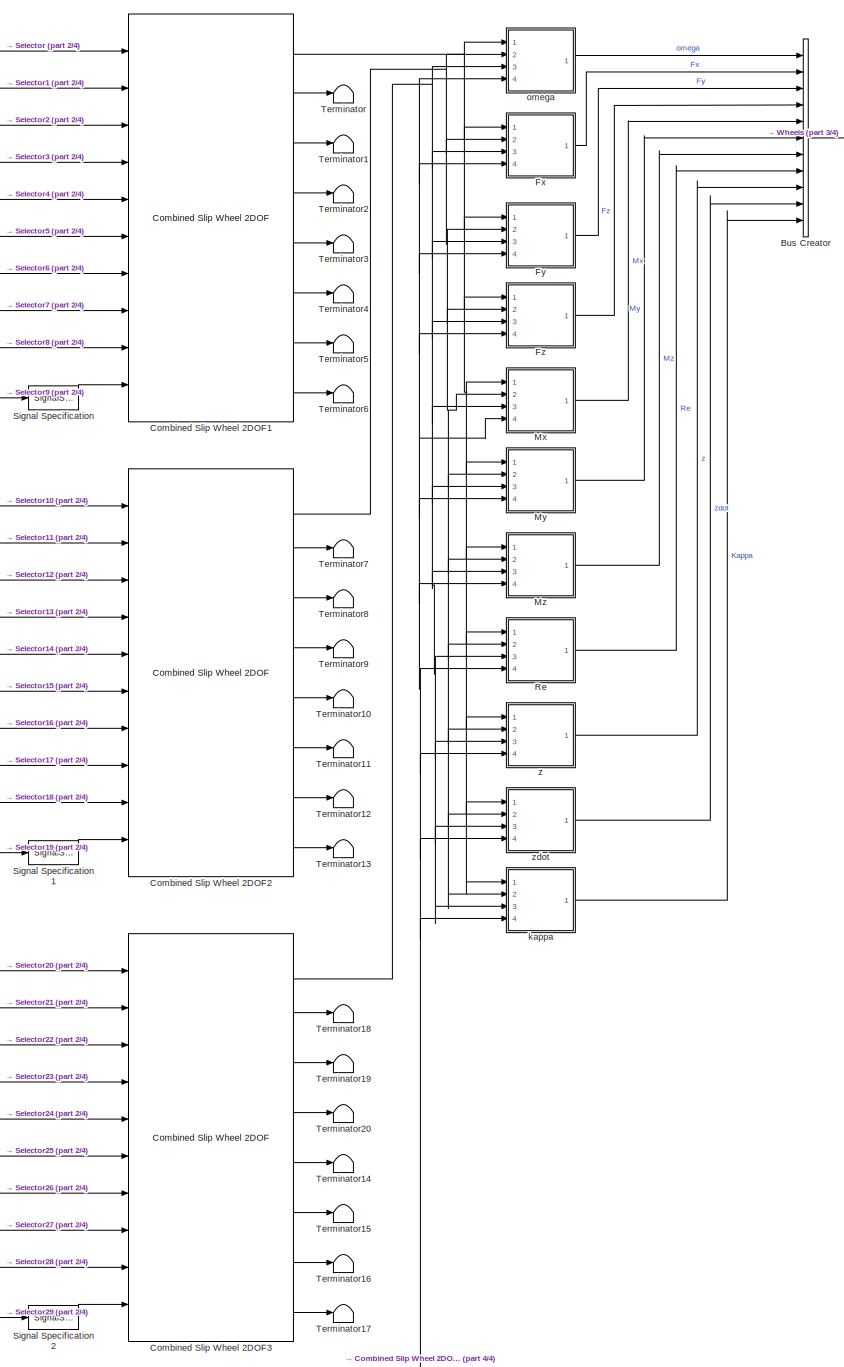
[diagram: Wheels and Tires/VDBS/Tires - part 1/4, center side, full height]
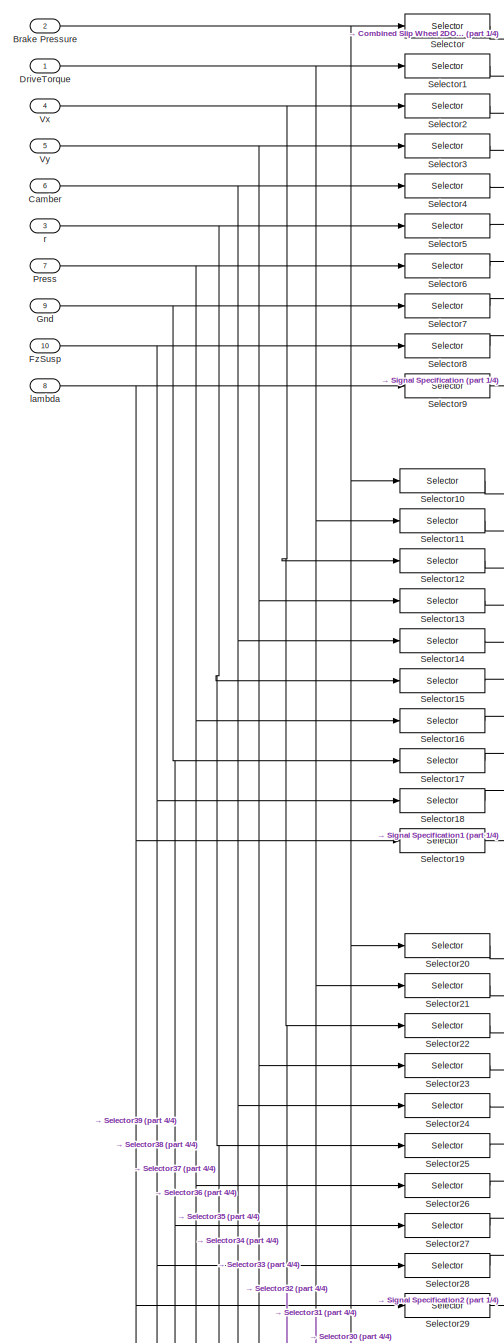
[diagram: Wheels and Tires/VDBS/Tires - part 2/4, left side, full height]
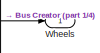
[diagram: Wheels and Tires/VDBS/Tires - part 3/4, top right region]
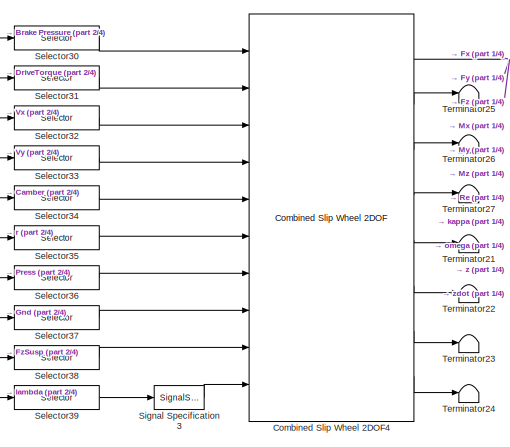
[diagram: Wheels and Tires/VDBS/Tires - part 4/4, bottom center region]
BLOCK [SubSystem] Wheels and Tires/VDBS/Tires
  Ports = [10, 1]
  RequestExecContextInheritance = off
BLOCK [Inport] Wheels and Tires/VDBS/Tires/Brake Pressure
  IconDisplay = Port number
  Port = 2
BLOCK [BusCreator] Wheels and Tires/VDBS/Tires/Bus Creator
  DisplayOption = bar
  InheritFromInputs = on
  Inputs = 11
  Ports = [11, 1]
BLOCK [Inport] Wheels and Tires/VDBS/Tires/Camber
  IconDisplay = Port number
  Port = 6
BLOCK [Reference] Wheels and Tires/VDBS/Tires/Combined Slip Wheel 2DOF1  REF=vehdynlibtire/Combined Slip Wheel 2DOF
  Ports = [10, 8]
  SourceBlock = vehdynlibtire/Combined Slip Wheel 2DOF
  SourceProductName = Vehicle Dynamics Blockset
  SourceType = Combined Slip Wheel 2DOF
BLOCK [Reference] Wheels and Tires/VDBS/Tires/Combined Slip Wheel 2DOF2  REF=vehdynlibtire/Combined Slip Wheel 2DOF
  Ports = [10, 8]
  SourceBlock = vehdynlibtire/Combined Slip Wheel 2DOF
  SourceProductName = Vehicle Dynamics Blockset
  SourceType = Combined Slip Wheel 2DOF
BLOCK [Reference] Wheels and Tires/VDBS/Tires/Combined Slip Wheel 2DOF3  REF=vehdynlibtire/Combined Slip Wheel 2DOF
  Ports = [10, 8]
  SourceBlock = vehdynlibtire/Combined Slip Wheel 2DOF
  SourceProductName = Vehicle Dynamics Blockset
  SourceType = Combined Slip Wheel 2DOF
BLOCK [Reference] Wheels and Tires/VDBS/Tires/Combined Slip Wheel 2DOF4  REF=vehdynlibtire/Combined Slip Wheel 2DOF
  Ports = [10, 8]
  SourceBlock = vehdynlibtire/Combined Slip Wheel 2DOF
  SourceProductName = Vehicle Dynamics Blockset
  SourceType = Combined Slip Wheel 2DOF
BLOCK [Inport] Wheels and Tires/VDBS/Tires/DriveTorque
  IconDisplay = Port number
BLOCK [SubSystem] Wheels and Tires/VDBS/Tires/Fx
  Ports = [4, 1]
  RequestExecContextInheritance = off
BLOCK [BusSelector] Wheels and Tires/VDBS/Tires/Fx/Bus Selector
  OutputAsBus = off
  OutputSignals = Fx
  Ports = [1, 1]
BLOCK [BusSelector] Wheels and Tires/VDBS/Tires/Fx/Bus Selector1
  OutputAsBus = off
  OutputSignals = Fx
  Ports = [1, 1]
BLOCK [BusSelector] Wheels and Tires/VDBS/Tires/Fx/Bus Selector2
  OutputAsBus = off
  OutputSignals = Fx
  Ports = [1, 1]
BLOCK [BusSelector] Wheels and Tires/VDBS/Tires/Fx/Bus Selector3
  OutputAsBus = off
  OutputSignals = Fx
  Ports = [1, 1]
BLOCK [Inport] Wheels and Tires/VDBS/Tires/Fx/In1
  IconDisplay = Port number
BLOCK [Inport] Wheels and Tires/VDBS/Tires/Fx/In2
  IconDisplay = Port number
  Port = 2
BLOCK [Inport] Wheels and Tires/VDBS/Tires/Fx/In3
  IconDisplay = Port number
  Port = 3
BLOCK [Inport] Wheels and Tires/VDBS/Tires/Fx/In4
  IconDisplay = Port number
  Port = 4
BLOCK [Outport] Wheels and Tires/VDBS/Tires/Fx/Out1
  IconDisplay = Port number
BLOCK [Concatenate] Wheels and Tires/VDBS/Tires/Fx/Vector Concatenate
  NumInputs = 4
  Ports = [4, 1]
BLOCK [SubSystem] Wheels and Tires/VDBS/Tires/Fy
  Ports = [4, 1]
  RequestExecContextInheritance = off
BLOCK [BusSelector] Wheels and Tires/VDBS/Tires/Fy/Bus Selector
  OutputAsBus = off
  OutputSignals = Fy
  Ports = [1, 1]
BLOCK [BusSelector] Wheels and Tires/VDBS/Tires/Fy/Bus Selector1
  OutputAsBus = off
  OutputSignals = Fy
  Ports = [1, 1]
BLOCK [BusSelector] Wheels and Tires/VDBS/Tires/Fy/Bus Selector2
  OutputAsBus = off
  OutputSignals = Fy
  Ports = [1, 1]
BLOCK [BusSelector] Wheels and Tires/VDBS/Tires/Fy/Bus Selector3
  OutputAsBus = off
  OutputSignals = Fy
  Ports = [1, 1]
BLOCK [Inport] Wheels and Tires/VDBS/Tires/Fy/In1
  IconDisplay = Port number
BLOCK [Inport] Wheels and Tires/VDBS/Tires/Fy/In2
  IconDisplay = Port number
  Port = 2
BLOCK [Inport] Wheels and Tires/VDBS/Tires/Fy/In3
  IconDisplay = Port number
  Port = 3
BLOCK [Inport] Wheels and Tires/VDBS/Tires/Fy/In4
  IconDisplay = Port number
  Port = 4
BLOCK [Outport] Wheels and Tires/VDBS/Tires/Fy/Out1
  IconDisplay = Port number
BLOCK [Concatenate] Wheels and Tires/VDBS/Tires/Fy/Vector Concatenate
  NumInputs = 4
  Ports = [4, 1]
BLOCK [SubSystem] Wheels and Tires/VDBS/Tires/Fz
  Ports = [4, 1]
  RequestExecContextInheritance = off
BLOCK [BusSelector] Wheels and Tires/VDBS/Tires/Fz/Bus Selector
  OutputAsBus = off
  OutputSignals = Fz
  Ports = [1, 1]
BLOCK [BusSelector] Wheels and Tires/VDBS/Tires/Fz/Bus Selector1
  OutputAsBus = off
  OutputSignals = Fz
  Ports = [1, 1]
BLOCK [BusSelector] Wheels and Tires/VDBS/Tires/Fz/Bus Selector2
  OutputAsBus = off
  OutputSignals = Fz
  Ports = [1, 1]
BLOCK [BusSelector] Wheels and Tires/VDBS/Tires/Fz/Bus Selector3
  OutputAsBus = off
  OutputSignals = Fz
  Ports = [1, 1]
BLOCK [Inport] Wheels and Tires/VDBS/Tires/Fz/In1
  IconDisplay = Port number
BLOCK [Inport] Wheels and Tires/VDBS/Tires/Fz/In2
  IconDisplay = Port number
  Port = 2
BLOCK [Inport] Wheels and Tires/VDBS/Tires/Fz/In3
  IconDisplay = Port number
  Port = 3
BLOCK [Inport] Wheels and Tires/VDBS/Tires/Fz/In4
  IconDisplay = Port number
  Port = 4
BLOCK [Outport] Wheels and Tires/VDBS/Tires/Fz/Out1
  IconDisplay = Port number
BLOCK [Concatenate] Wheels and Tires/VDBS/Tires/Fz/Vector Concatenate
  NumInputs = 4
  Ports = [4, 1]
BLOCK [Inport] Wheels and Tires/VDBS/Tires/FzSusp
  IconDisplay = Port number
  Port = 10
BLOCK [Inport] Wheels and Tires/VDBS/Tires/Gnd
  IconDisplay = Port number
  Port = 9
BLOCK [SubSystem] Wheels and Tires/VDBS/Tires/Mx
  Ports = [4, 1]
  RequestExecContextInheritance = off
BLOCK [BusSelector] Wheels and Tires/VDBS/Tires/Mx/Bus Selector
  OutputAsBus = off
  OutputSignals = Mx
  Ports = [1, 1]
BLOCK [BusSelector] Wheels and Tires/VDBS/Tires/Mx/Bus Selector1
  OutputAsBus = off
  OutputSignals = Mx
  Ports = [1, 1]
BLOCK [BusSelector] Wheels and Tires/VDBS/Tires/Mx/Bus Selector2
  OutputAsBus = off
  OutputSignals = Mx
  Ports = [1, 1]
BLOCK [BusSelector] Wheels and Tires/VDBS/Tires/Mx/Bus Selector3
  OutputAsBus = off
  OutputSignals = Mx
  Ports = [1, 1]
BLOCK [Inport] Wheels and Tires/VDBS/Tires/Mx/In1
  IconDisplay = Port number
BLOCK [Inport] Wheels and Tires/VDBS/Tires/Mx/In2
  IconDisplay = Port number
  Port = 2
BLOCK [Inport] Wheels and Tires/VDBS/Tires/Mx/In3
  IconDisplay = Port number
  Port = 3
BLOCK [Inport] Wheels and Tires/VDBS/Tires/Mx/In4
  IconDisplay = Port number
  Port = 4
BLOCK [Outport] Wheels and Tires/VDBS/Tires/Mx/Out1
  IconDisplay = Port number
BLOCK [Concatenate] Wheels and Tires/VDBS/Tires/Mx/Vector Concatenate
  NumInputs = 4
  Ports = [4, 1]
BLOCK [SubSystem] Wheels and Tires/VDBS/Tires/My
  Ports = [4, 1]
  RequestExecContextInheritance = off
BLOCK [BusSelector] Wheels and Tires/VDBS/Tires/My/Bus Selector
  OutputAsBus = off
  OutputSignals = My
  Ports = [1, 1]
BLOCK [BusSelector] Wheels and Tires/VDBS/Tires/My/Bus Selector1
  OutputAsBus = off
  OutputSignals = My
  Ports = [1, 1]
BLOCK [BusSelector] Wheels and Tires/VDBS/Tires/My/Bus Selector2
  OutputAsBus = off
  OutputSignals = My
  Ports = [1, 1]
BLOCK [BusSelector] Wheels and Tires/VDBS/Tires/My/Bus Selector3
  OutputAsBus = off
  OutputSignals = My
  Ports = [1, 1]
BLOCK [Inport] Wheels and Tires/VDBS/Tires/My/In1
  IconDisplay = Port number
BLOCK [Inport] Wheels and Tires/VDBS/Tires/My/In2
  IconDisplay = Port number
  Port = 2
BLOCK [Inport] Wheels and Tires/VDBS/Tires/My/In3
  IconDisplay = Port number
  Port = 3
BLOCK [Inport] Wheels and Tires/VDBS/Tires/My/In4
  IconDisplay = Port number
  Port = 4
BLOCK [Outport] Wheels and Tires/VDBS/Tires/My/Out1
  IconDisplay = Port number
BLOCK [Concatenate] Wheels and Tires/VDBS/Tires/My/Vector Concatenate
  NumInputs = 4
  Ports = [4, 1]
BLOCK [SubSystem] Wheels and Tires/VDBS/Tires/Mz
  Ports = [4, 1]
  RequestExecContextInheritance = off
BLOCK [BusSelector] Wheels and Tires/VDBS/Tires/Mz/Bus Selector
  OutputAsBus = off
  OutputSignals = Mz
  Ports = [1, 1]
BLOCK [BusSelector] Wheels and Tires/VDBS/Tires/Mz/Bus Selector1
  OutputAsBus = off
  OutputSignals = Mz
  Ports = [1, 1]
BLOCK [BusSelector] Wheels and Tires/VDBS/Tires/Mz/Bus Selector2
  OutputAsBus = off
  OutputSignals = Mz
  Ports = [1, 1]
BLOCK [BusSelector] Wheels and Tires/VDBS/Tires/Mz/Bus Selector3
  OutputAsBus = off
  OutputSignals = Mz
  Ports = [1, 1]
BLOCK [Inport] Wheels and Tires/VDBS/Tires/Mz/In1
  IconDisplay = Port number
BLOCK [Inport] Wheels and Tires/VDBS/Tires/Mz/In2
  IconDisplay = Port number
  Port = 2
BLOCK [Inport] Wheels and Tires/VDBS/Tires/Mz/In3
  IconDisplay = Port number
  Port = 3
BLOCK [Inport] Wheels and Tires/VDBS/Tires/Mz/In4
  IconDisplay = Port number
  Port = 4
BLOCK [Outport] Wheels and Tires/VDBS/Tires/Mz/Out1
  IconDisplay = Port number
BLOCK [Concatenate] Wheels and Tires/VDBS/Tires/Mz/Vector Concatenate
  NumInputs = 4
  Ports = [4, 1]
BLOCK [Inport] Wheels and Tires/VDBS/Tires/Press
  IconDisplay = Port number
  Port = 7
  Unit = Pa
BLOCK [SubSystem] Wheels and Tires/VDBS/Tires/Re
  Ports = [4, 1]
  RequestExecContextInheritance = off
BLOCK [BusSelector] Wheels and Tires/VDBS/Tires/Re/Bus Selector
  OutputAsBus = off
  OutputSignals = Re
  Ports = [1, 1]
BLOCK [BusSelector] Wheels and Tires/VDBS/Tires/Re/Bus Selector1
  OutputAsBus = off
  OutputSignals = Re
  Ports = [1, 1]
BLOCK [BusSelector] Wheels and Tires/VDBS/Tires/Re/Bus Selector2
  OutputAsBus = off
  OutputSignals = Re
  Ports = [1, 1]
BLOCK [BusSelector] Wheels and Tires/VDBS/Tires/Re/Bus Selector3
  OutputAsBus = off
  OutputSignals = Re
  Ports = [1, 1]
BLOCK [Inport] Wheels and Tires/VDBS/Tires/Re/In1
  IconDisplay = Port number
BLOCK [Inport] Wheels and Tires/VDBS/Tires/Re/In2
  IconDisplay = Port number
  Port = 2
BLOCK [Inport] Wheels and Tires/VDBS/Tires/Re/In3
  IconDisplay = Port number
  Port = 3
BLOCK [Inport] Wheels and Tires/VDBS/Tires/Re/In4
  IconDisplay = Port number
  Port = 4
BLOCK [Outport] Wheels and Tires/VDBS/Tires/Re/Out1
  IconDisplay = Port number
BLOCK [Concatenate] Wheels and Tires/VDBS/Tires/Re/Vector Concatenate
  NumInputs = 4
  Ports = [4, 1]
BLOCK [Selector] Wheels and Tires/VDBS/Tires/Selector
  IndexOptions = Index vector (dialog)
  Indices = 1
  InputPortWidth = 4
  OutputSizes = 1
  Ports = [1, 1]
BLOCK [Selector] Wheels and Tires/VDBS/Tires/Selector1
  IndexOptions = Index vector (dialog)
  Indices = 1
  InputPortWidth = 4
  OutputSizes = 1
  Ports = [1, 1]
BLOCK [Selector] Wheels and Tires/VDBS/Tires/Selector10
  IndexOptions = Index vector (dialog)
  Indices = 2
  InputPortWidth = 4
  OutputSizes = 1
  Ports = [1, 1]
BLOCK [Selector] Wheels and Tires/VDBS/Tires/Selector11
  IndexOptions = Index vector (dialog)
  Indices = 2
  InputPortWidth = 4
  OutputSizes = 1
  Ports = [1, 1]
BLOCK [Selector] Wheels and Tires/VDBS/Tires/Selector12
  IndexOptions = Index vector (dialog)
  Indices = 2
  InputPortWidth = 4
  OutputSizes = 1
  Ports = [1, 1]
BLOCK [Selector] Wheels and Tires/VDBS/Tires/Selector13
  IndexOptions = Index vector (dialog)
  Indices = 2
  InputPortWidth = 4
  OutputSizes = 1
  Ports = [1, 1]
BLOCK [Selector] Wheels and Tires/VDBS/Tires/Selector14
  IndexOptions = Index vector (dialog)
  Indices = 2
  InputPortWidth = 4
  OutputSizes = 1
  Ports = [1, 1]
BLOCK [Selector] Wheels and Tires/VDBS/Tires/Selector15
  IndexOptions = Index vector (dialog)
  Indices = 2
  InputPortWidth = 4
  OutputSizes = 1
  Ports = [1, 1]
BLOCK [Selector] Wheels and Tires/VDBS/Tires/Selector16
  IndexOptions = Index vector (dialog)
  Indices = 2
  InputPortWidth = 4
  OutputSizes = 1
  Ports = [1, 1]
BLOCK [Selector] Wheels and Tires/VDBS/Tires/Selector17
  IndexOptions = Index vector (dialog)
  Indices = 2
  InputPortWidth = 4
  OutputSizes = 1
  Ports = [1, 1]
BLOCK [Selector] Wheels and Tires/VDBS/Tires/Selector18
  IndexOptions = Index vector (dialog)
  Indices = 2
  InputPortWidth = 4
  OutputSizes = 1
  Ports = [1, 1]
BLOCK [Selector] Wheels and Tires/VDBS/Tires/Selector19
  IndexOptions = Select all,Index vector (dialog)
  Indices = 1,2
  InputPortWidth = 4
  NumberOfDimensions = 2
  OutputSizes = 1,1
  Ports = [1, 1]
BLOCK [Selector] Wheels and Tires/VDBS/Tires/Selector2
  IndexOptions = Index vector (dialog)
  Indices = 1
  InputPortWidth = 4
  OutputSizes = 1
  Ports = [1, 1]
BLOCK [Selector] Wheels and Tires/VDBS/Tires/Selector20
  IndexOptions = Index vector (dialog)
  Indices = 3
  InputPortWidth = 4
  OutputSizes = 1
  Ports = [1, 1]
BLOCK [Selector] Wheels and Tires/VDBS/Tires/Selector21
  IndexOptions = Index vector (dialog)
  Indices = 3
  InputPortWidth = 4
  OutputSizes = 1
  Ports = [1, 1]
BLOCK [Selector] Wheels and Tires/VDBS/Tires/Selector22
  IndexOptions = Index vector (dialog)
  Indices = 3
  InputPortWidth = 4
  OutputSizes = 1
  Ports = [1, 1]
BLOCK [Selector] Wheels and Tires/VDBS/Tires/Selector23
  IndexOptions = Index vector (dialog)
  Indices = 3
  InputPortWidth = 4
  OutputSizes = 1
  Ports = [1, 1]
BLOCK [Selector] Wheels and Tires/VDBS/Tires/Selector24
  IndexOptions = Index vector (dialog)
  Indices = 3
  InputPortWidth = 4
  OutputSizes = 1
  Ports = [1, 1]
BLOCK [Selector] Wheels and Tires/VDBS/Tires/Selector25
  IndexOptions = Index vector (dialog)
  Indices = 3
  InputPortWidth = 4
  OutputSizes = 1
  Ports = [1, 1]
BLOCK [Selector] Wheels and Tires/VDBS/Tires/Selector26
  IndexOptions = Index vector (dialog)
  Indices = 3
  InputPortWidth = 4
  OutputSizes = 1
  Ports = [1, 1]
BLOCK [Selector] Wheels and Tires/VDBS/Tires/Selector27
  IndexOptions = Index vector (dialog)
  Indices = 3
  InputPortWidth = 4
  OutputSizes = 1
  Ports = [1, 1]
BLOCK [Selector] Wheels and Tires/VDBS/Tires/Selector28
  IndexOptions = Index vector (dialog)
  Indices = 3
  InputPortWidth = 4
  OutputSizes = 1
  Ports = [1, 1]
BLOCK [Selector] Wheels and Tires/VDBS/Tires/Selector29
  IndexOptions = Select all,Index vector (dialog)
  Indices = 1,3
  InputPortWidth = 4
  NumberOfDimensions = 2
  OutputSizes = 1,1
  Ports = [1, 1]
BLOCK [Selector] Wheels and Tires/VDBS/Tires/Selector3
  IndexOptions = Index vector (dialog)
  Indices = 1
  InputPortWidth = 4
  OutputSizes = 1
  Ports = [1, 1]
BLOCK [Selector] Wheels and Tires/VDBS/Tires/Selector30
  IndexOptions = Index vector (dialog)
  Indices = 4
  InputPortWidth = 4
  OutputSizes = 1
  Ports = [1, 1]
BLOCK [Selector] Wheels and Tires/VDBS/Tires/Selector31
  IndexOptions = Index vector (dialog)
  Indices = 4
  InputPortWidth = 4
  OutputSizes = 1
  Ports = [1, 1]
BLOCK [Selector] Wheels and Tires/VDBS/Tires/Selector32
  IndexOptions = Index vector (dialog)
  Indices = 4
  InputPortWidth = 4
  OutputSizes = 1
  Ports = [1, 1]
BLOCK [Selector] Wheels and Tires/VDBS/Tires/Selector33
  IndexOptions = Index vector (dialog)
  Indices = 4
  InputPortWidth = 4
  OutputSizes = 1
  Ports = [1, 1]
BLOCK [Selector] Wheels and Tires/VDBS/Tires/Selector34
  IndexOptions = Index vector (dialog)
  Indices = 4
  InputPortWidth = 4
  OutputSizes = 1
  Ports = [1, 1]
BLOCK [Selector] Wheels and Tires/VDBS/Tires/Selector35
  IndexOptions = Index vector (dialog)
  Indices = 4
  InputPortWidth = 4
  OutputSizes = 1
  Ports = [1, 1]
BLOCK [Selector] Wheels and Tires/VDBS/Tires/Selector36
  IndexOptions = Index vector (dialog)
  Indices = 4
  InputPortWidth = 4
  OutputSizes = 1
  Ports = [1, 1]
BLOCK [Selector] Wheels and Tires/VDBS/Tires/Selector37
  IndexOptions = Index vector (dialog)
  Indices = 4
  InputPortWidth = 4
  OutputSizes = 1
  Ports = [1, 1]
BLOCK [Selector] Wheels and Tires/VDBS/Tires/Selector38
  IndexOptions = Index vector (dialog)
  Indices = 4
  InputPortWidth = 4
  OutputSizes = 1
  Ports = [1, 1]
BLOCK [Selector] Wheels and Tires/VDBS/Tires/Selector39
  IndexOptions = Select all,Index vector (dialog)
  Indices = 1,4
  InputPortWidth = 4
  NumberOfDimensions = 2
  OutputSizes = 1,1
  Ports = [1, 1]
BLOCK [Selector] Wheels and Tires/VDBS/Tires/Selector4
  IndexOptions = Index vector (dialog)
  Indices = 1
  InputPortWidth = 4
  OutputSizes = 1
  Ports = [1, 1]
BLOCK [Selector] Wheels and Tires/VDBS/Tires/Selector5
  IndexOptions = Index vector (dialog)
  Indices = 1
  InputPortWidth = 4
  OutputSizes = 1
  Ports = [1, 1]
BLOCK [Selector] Wheels and Tires/VDBS/Tires/Selector6
  IndexOptions = Index vector (dialog)
  Indices = 1
  InputPortWidth = 4
  OutputSizes = 1
  Ports = [1, 1]
BLOCK [Selector] Wheels and Tires/VDBS/Tires/Selector7
  IndexOptions = Index vector (dialog)
  Indices = 1
  InputPortWidth = 4
  OutputSizes = 1
  Ports = [1, 1]
BLOCK [Selector] Wheels and Tires/VDBS/Tires/Selector8
  IndexOptions = Index vector (dialog)
  Indices = 1
  InputPortWidth = 4
  OutputSizes = 1
  Ports = [1, 1]
BLOCK [Selector] Wheels and Tires/VDBS/Tires/Selector9
  IndexOptions = Select all,Index vector (dialog)
  Indices = 1,1
  InputPortWidth = 4
  NumberOfDimensions = 2
  OutputSizes = 1,1
  Ports = [1, 1]
BLOCK [SignalSpecification] Wheels and Tires/VDBS/Tires/Signal Specification
  Unit = 1
BLOCK [SignalSpecification] Wheels and Tires/VDBS/Tires/Signal Specification1
  Unit = 1
BLOCK [SignalSpecification] Wheels and Tires/VDBS/Tires/Signal Specification2
  Unit = 1
BLOCK [SignalSpecification] Wheels and Tires/VDBS/Tires/Signal Specification3
  Unit = 1
BLOCK [Terminator] Wheels and Tires/VDBS/Tires/Terminator
BLOCK [Terminator] Wheels and Tires/VDBS/Tires/Terminator1
BLOCK [Terminator] Wheels and Tires/VDBS/Tires/Terminator10
BLOCK [Terminator] Wheels and Tires/VDBS/Tires/Terminator11
BLOCK [Terminator] Wheels and Tires/VDBS/Tires/Terminator12
BLOCK [Terminator] Wheels and Tires/VDBS/Tires/Terminator13
BLOCK [Terminator] Wheels and Tires/VDBS/Tires/Terminator14
BLOCK [Terminator] Wheels and Tires/VDBS/Tires/Terminator15
BLOCK [Terminator] Wheels and Tires/VDBS/Tires/Terminator16
BLOCK [Terminator] Wheels and Tires/VDBS/Tires/Terminator17
BLOCK [Terminator] Wheels and Tires/VDBS/Tires/Terminator18
BLOCK [Terminator] Wheels and Tires/VDBS/Tires/Terminator19
BLOCK [Terminator] Wheels and Tires/VDBS/Tires/Terminator2
BLOCK [Terminator] Wheels and Tires/VDBS/Tires/Terminator20
BLOCK [Terminator] Wheels and Tires/VDBS/Tires/Terminator21
BLOCK [Terminator] Wheels and Tires/VDBS/Tires/Terminator22
BLOCK [Terminator] Wheels and Tires/VDBS/Tires/Terminator23
BLOCK [Terminator] Wheels and Tires/VDBS/Tires/Terminator24
BLOCK [Terminator] Wheels and Tires/VDBS/Tires/Terminator25
BLOCK [Terminator] Wheels and Tires/VDBS/Tires/Terminator26
BLOCK [Terminator] Wheels and Tires/VDBS/Tires/Terminator27
BLOCK [Terminator] Wheels and Tires/VDBS/Tires/Terminator3
BLOCK [Terminator] Wheels and Tires/VDBS/Tires/Terminator4
BLOCK [Terminator] Wheels and Tires/VDBS/Tires/Terminator5
BLOCK [Terminator] Wheels and Tires/VDBS/Tires/Terminator6
BLOCK [Terminator] Wheels and Tires/VDBS/Tires/Terminator7
BLOCK [Terminator] Wheels and Tires/VDBS/Tires/Terminator8
BLOCK [Terminator] Wheels and Tires/VDBS/Tires/Terminator9
BLOCK [Inport] Wheels and Tires/VDBS/Tires/Vx
  IconDisplay = Port number
  Port = 4
BLOCK [Inport] Wheels and Tires/VDBS/Tires/Vy
  IconDisplay = Port number
  Port = 5
BLOCK [Outport] Wheels and Tires/VDBS/Tires/Wheels
  IconDisplay = Port number
BLOCK [SubSystem] Wheels and Tires/VDBS/Tires/kappa
  Ports = [4, 1]
  RequestExecContextInheritance = off
BLOCK [BusSelector] Wheels and Tires/VDBS/Tires/kappa/Bus Selector
  OutputAsBus = off
  OutputSignals = Kappa
  Ports = [1, 1]
BLOCK [BusSelector] Wheels and Tires/VDBS/Tires/kappa/Bus Selector1
  OutputAsBus = off
  OutputSignals = Kappa
  Ports = [1, 1]
BLOCK [BusSelector] Wheels and Tires/VDBS/Tires/kappa/Bus Selector2
  OutputAsBus = off
  OutputSignals = Kappa
  Ports = [1, 1]
BLOCK [BusSelector] Wheels and Tires/VDBS/Tires/kappa/Bus Selector3
  OutputAsBus = off
  OutputSignals = Kappa
  Ports = [1, 1]
BLOCK [Inport] Wheels and Tires/VDBS/Tires/kappa/In1
  IconDisplay = Port number
BLOCK [Inport] Wheels and Tires/VDBS/Tires/kappa/In2
  IconDisplay = Port number
  Port = 2
BLOCK [Inport] Wheels and Tires/VDBS/Tires/kappa/In3
  IconDisplay = Port number
  Port = 3
BLOCK [Inport] Wheels and Tires/VDBS/Tires/kappa/In4
  IconDisplay = Port number
  Port = 4
BLOCK [Outport] Wheels and Tires/VDBS/Tires/kappa/Out1
  IconDisplay = Port number
BLOCK [Concatenate] Wheels and Tires/VDBS/Tires/kappa/Vector Concatenate
  NumInputs = 4
  Ports = [4, 1]
BLOCK [Inport] Wheels and Tires/VDBS/Tires/lambda
  IconDisplay = Port number
  Port = 8
  Unit = 1
BLOCK [SubSystem] Wheels and Tires/VDBS/Tires/omega
  Ports = [4, 1]
  RequestExecContextInheritance = off
BLOCK [BusSelector] Wheels and Tires/VDBS/Tires/omega/Bus Selector
  OutputAsBus = off
  OutputSignals = Omega
  Ports = [1, 1]
BLOCK [BusSelector] Wheels and Tires/VDBS/Tires/omega/Bus Selector1
  OutputAsBus = off
  OutputSignals = Omega
  Ports = [1, 1]
BLOCK [BusSelector] Wheels and Tires/VDBS/Tires/omega/Bus Selector2
  OutputAsBus = off
  OutputSignals = Omega
  Ports = [1, 1]
BLOCK [BusSelector] Wheels and Tires/VDBS/Tires/omega/Bus Selector3
  OutputAsBus = off
  OutputSignals = Omega
  Ports = [1, 1]
BLOCK [Inport] Wheels and Tires/VDBS/Tires/omega/In1
  IconDisplay = Port number
BLOCK [Inport] Wheels and Tires/VDBS/Tires/omega/In2
  IconDisplay = Port number
  Port = 2
BLOCK [Inport] Wheels and Tires/VDBS/Tires/omega/In3
  IconDisplay = Port number
  Port = 3
BLOCK [Inport] Wheels and Tires/VDBS/Tires/omega/In4
  IconDisplay = Port number
  Port = 4
BLOCK [Outport] Wheels and Tires/VDBS/Tires/omega/Out1
  IconDisplay = Port number
BLOCK [Concatenate] Wheels and Tires/VDBS/Tires/omega/Vector Concatenate
  NumInputs = 4
  Ports = [4, 1]
BLOCK [Inport] Wheels and Tires/VDBS/Tires/r
  IconDisplay = Port number
  Port = 3
BLOCK [SubSystem] Wheels and Tires/VDBS/Tires/z
  Ports = [4, 1]
  RequestExecContextInheritance = off
BLOCK [BusSelector] Wheels and Tires/VDBS/Tires/z/Bus Selector
  OutputAsBus = off
  OutputSignals = z
  Ports = [1, 1]
BLOCK [BusSelector] Wheels and Tires/VDBS/Tires/z/Bus Selector1
  OutputAsBus = off
  OutputSignals = z
  Ports = [1, 1]
BLOCK [BusSelector] Wheels and Tires/VDBS/Tires/z/Bus Selector2
  OutputAsBus = off
  OutputSignals = z
  Ports = [1, 1]
BLOCK [BusSelector] Wheels and Tires/VDBS/Tires/z/Bus Selector3
  OutputAsBus = off
  OutputSignals = z
  Ports = [1, 1]
BLOCK [Inport] Wheels and Tires/VDBS/Tires/z/In1
  IconDisplay = Port number
BLOCK [Inport] Wheels and Tires/VDBS/Tires/z/In2
  IconDisplay = Port number
  Port = 2
BLOCK [Inport] Wheels and Tires/VDBS/Tires/z/In3
  IconDisplay = Port number
  Port = 3
BLOCK [Inport] Wheels and Tires/VDBS/Tires/z/In4
  IconDisplay = Port number
  Port = 4
BLOCK [Outport] Wheels and Tires/VDBS/Tires/z/Out1
  IconDisplay = Port number
BLOCK [Concatenate] Wheels and Tires/VDBS/Tires/z/Vector Concatenate
  NumInputs = 4
  Ports = [4, 1]
BLOCK [SubSystem] Wheels and Tires/VDBS/Tires/zdot
  Ports = [4, 1]
  RequestExecContextInheritance = off
BLOCK [BusSelector] Wheels and Tires/VDBS/Tires/zdot/Bus Selector
  OutputAsBus = off
  OutputSignals = zdot
  Ports = [1, 1]
BLOCK [BusSelector] Wheels and Tires/VDBS/Tires/zdot/Bus Selector1
  OutputAsBus = off
  OutputSignals = zdot
  Ports = [1, 1]
BLOCK [BusSelector] Wheels and Tires/VDBS/Tires/zdot/Bus Selector2
  OutputAsBus = off
  OutputSignals = zdot
  Ports = [1, 1]
BLOCK [BusSelector] Wheels and Tires/VDBS/Tires/zdot/Bus Selector3
  OutputAsBus = off
  OutputSignals = zdot
  Ports = [1, 1]
BLOCK [Inport] Wheels and Tires/VDBS/Tires/zdot/In1
  IconDisplay = Port number
BLOCK [Inport] Wheels and Tires/VDBS/Tires/zdot/In2
  IconDisplay = Port number
  Port = 2
BLOCK [Inport] Wheels and Tires/VDBS/Tires/zdot/In3
  IconDisplay = Port number
  Port = 3
BLOCK [Inport] Wheels and Tires/VDBS/Tires/zdot/In4
  IconDisplay = Port number
  Port = 4
BLOCK [Outport] Wheels and Tires/VDBS/Tires/zdot/Out1
  IconDisplay = Port number
BLOCK [Concatenate] Wheels and Tires/VDBS/Tires/zdot/Vector Concatenate
  NumInputs = 4
  Ports = [4, 1]
BLOCK [SubSystem] Wheels and Tires/VDBS/Veh2Tire
  Ports = [6, 6]
  RequestExecContextInheritance = off
BLOCK [Inport] Wheels and Tires/VDBS/Veh2Tire/Axle
  IconDisplay = Port number
  Port = 2
BLOCK [Inport] Wheels and Tires/VDBS/Veh2Tire/Brake
  IconDisplay = Port number
  Port = 3
BLOCK [Demux] Wheels and Tires/VDBS/Veh2Tire/Demux4
  DisplayOption = bar
  Ports = [1, 4]
BLOCK [Gain] Wheels and Tires/VDBS/Veh2Tire/Gain4
  Gain = [1;-1;1;-1]*0+1
  OutDataTypeStr = Inherit: Inherit via internal rule
  ParamDataTypeStr = Inherit: Inherit via internal rule
  SaturateOnIntegerOverflow = off
BLOCK [Mux] Wheels and Tires/VDBS/Veh2Tire/Mux1
  DisplayOption = bar
  Ports = [4, 1]
BLOCK [Outport] Wheels and Tires/VDBS/Veh2Tire/P
  IconDisplay = Port number
  Port = 2
  Unit = Pa
BLOCK [Reshape] Wheels and Tires/VDBS/Veh2Tire/Reshape3
  Ports = [1, 1]
BLOCK [Reshape] Wheels and Tires/VDBS/Veh2Tire/Reshape4
  Ports = [1, 1]
BLOCK [Outport] Wheels and Tires/VDBS/Veh2Tire/T
  IconDisplay = Port number
  Unit = N*m
BLOCK [UnaryMinus] Wheels and Tires/VDBS/Veh2Tire/Unary Minus
BLOCK [Inport] Wheels and Tires/VDBS/Veh2Tire/VehVel
  IconDisplay = Port number
  Port = 4
BLOCK [SubSystem] Wheels and Tires/VDBS/Veh2Tire/Wheel Angles
  Ports = [2, 1]
  RequestExecContextInheritance = off
BLOCK [Sum] Wheels and Tires/VDBS/Veh2Tire/Wheel Angles/Add1
  InputSameDT = off
  OutDataTypeStr = Inherit: Inherit via internal rule
  Ports = [2, 1]
  SaturateOnIntegerOverflow = off
BLOCK [Sum] Wheels and Tires/VDBS/Veh2Tire/Wheel Angles/Add2
  InputSameDT = off
  OutDataTypeStr = Inherit: Inherit via internal rule
  Ports = [2, 1]
  SaturateOnIntegerOverflow = off
BLOCK [Constant] Wheels and Tires/VDBS/Veh2Tire/Wheel Angles/Constant1
  Value = pi
BLOCK [Constant] Wheels and Tires/VDBS/Veh2Tire/Wheel Angles/Constant2
  Value = [pi;0;pi;0].*0+[0;pi;0;pi].*0
BLOCK [Constant] Wheels and Tires/VDBS/Veh2Tire/Wheel Angles/Constant3
  Value = ones(1,4).*0
BLOCK [Reshape] Wheels and Tires/VDBS/Veh2Tire/Wheel Angles/Reshape
  OutputDimensionality = Row vector (2-D)
  Ports = [1, 1]
BLOCK [Reshape] Wheels and Tires/VDBS/Veh2Tire/Wheel Angles/Reshape1
  OutputDimensionality = Row vector (2-D)
  Ports = [1, 1]
BLOCK [Reshape] Wheels and Tires/VDBS/Veh2Tire/Wheel Angles/Reshape2
  OutputDimensionality = Row vector (2-D)
  Ports = [1, 1]
BLOCK [Concatenate] Wheels and Tires/VDBS/Veh2Tire/Wheel Angles/Vector Concatenate3
  Mode = Multidimensional array
  NumInputs = 3
  Ports = [3, 1]
BLOCK [Outport] Wheels and Tires/VDBS/Veh2Tire/Wheel Angles/Vehicle
  IconDisplay = Port number
BLOCK [Inport] Wheels and Tires/VDBS/Veh2Tire/Wheel Angles/camber
  IconDisplay = Port number
  Port = 2
BLOCK [Inport] Wheels and Tires/VDBS/Veh2Tire/Wheel Angles/steer
  IconDisplay = Port number
BLOCK [SubSystem] Wheels and Tires/VDBS/Veh2Tire/Wheel to Body Transform
  Ports = [2, 3]
  RequestExecContextInheritance = off
BLOCK [Demux] Wheels and Tires/VDBS/Veh2Tire/Wheel to Body Transform/Demux1
  DisplayOption = bar
  Outputs = 3
  Ports = [1, 3]
BLOCK [Product] Wheels and Tires/VDBS/Veh2Tire/Wheel to Body Transform/Divide1
  InputSameDT = off
  Inputs = **
  Multiplication = Matrix(*)
  OutDataTypeStr = Inherit: Inherit via internal rule
  Ports = [2, 1]
  RndMeth = Floor
  SaturateOnIntegerOverflow = off
BLOCK [ForEach] Wheels and Tires/VDBS/Veh2Tire/Wheel to Body Transform/For Each
  DisableCoverage = on
  IndexMode = One-based
  Ports = []
BLOCK [Reference] Wheels and Tires/VDBS/Veh2Tire/Wheel to Body Transform/Rotation Angles to Direction Cosine Matrix  REF=sharedtransform/Rotation Angles to
Direction Cosine Matrix
  AttributesFormatString = Rotation Order: %<rotationOrder>
  Ports = [1, 1]
  SourceBlock = sharedtransform/Rotation Angles to\nDirection Cosine Matrix
  SourceProductBaseCode = AE
  SourceProductName = Aerospace Blockset
  SourceType = Ang2DCM
BLOCK [Selector] Wheels and Tires/VDBS/Veh2Tire/Wheel to Body Transform/Selector
  IndexOptions = Index vector (dialog)
  Indices = [3 2 1]
  InputPortWidth = 3
  OutputSizes = 1
  Ports = [1, 1]
BLOCK [Inport] Wheels and Tires/VDBS/Veh2Tire/Wheel to Body Transform/VelVeh
  IconDisplay = Port number
  Partition = on
  PartitionDimension = 2
  PartitionOffset = 0
  PartitionWidth = 1
BLOCK [Inport] Wheels and Tires/VDBS/Veh2Tire/Wheel to Body Transform/WheelAngles
  IconDisplay = Port number
  Partition = on
  PartitionDimension = 2
  PartitionOffset = 0
  PartitionWidth = 1
  Port = 2
BLOCK [Outport] Wheels and Tires/VDBS/Veh2Tire/Wheel to Body Transform/xdotWheel
  ConcatenationDimension = 1
  IconDisplay = Port number
BLOCK [Outport] Wheels and Tires/VDBS/Veh2Tire/Wheel to Body Transform/ydotWheel
  ConcatenationDimension = 1
  IconDisplay = Port number
  Port = 2
BLOCK [Outport] Wheels and Tires/VDBS/Veh2Tire/Wheel to Body Transform/zdotWheel
  ConcatenationDimension = 1
  IconDisplay = Port number
  Port = 3
BLOCK [Inport] Wheels and Tires/VDBS/Veh2Tire/WheelCamber
  IconDisplay = Port number
  Port = 6
BLOCK [Inport] Wheels and Tires/VDBS/Veh2Tire/WheelSteer
  IconDisplay = Port number
  Port = 5
BLOCK [Outport] Wheels and Tires/VDBS/Veh2Tire/psidot
  IconDisplay = Port number
  Port = 3
  Unit = rad/s
BLOCK [Inport] Wheels and Tires/VDBS/Veh2Tire/r
  IconDisplay = Port number
BLOCK [Outport] Wheels and Tires/VDBS/Veh2Tire/xdotAxle
  IconDisplay = Port number
  Port = 4
  Unit = m/s
BLOCK [Outport] Wheels and Tires/VDBS/Veh2Tire/ydotAxle
  IconDisplay = Port number
  Port = 5
  Unit = m/s
BLOCK [Outport] Wheels and Tires/VDBS/Veh2Tire/zdotAxle
  IconDisplay = Port number
  Port = 6
  Unit = m/s
BLOCK [Inport] Wheels and Tires/VDBS/VehVel
  IconDisplay = Port number
  Port = 7
BLOCK [Inport] Wheels and Tires/VDBS/WheelAng
  IconDisplay = Port number
BLOCK [Outport] Wheels and Tires/VDBS/Wheels
  IconDisplay = Port number
BLOCK [Outport] Wheels and Tires/VDBS/omega
  IconDisplay = Port number
  Port = 4
BLOCK [Inport] Wheels and Tires/VDBS/r
  IconDisplay = Port number
  Port = 6
BLOCK [SubSystem] Wheels and Tires/VDBS/scale factors with friction
  Ports = [2, 1]
  RequestExecContextInheritance = off
BLOCK [Reshape] Wheels and Tires/VDBS/scale factors with friction/Reshape
  OutputDimensionality = Row vector (2-D)
  OutputDimensions = [1,numWheels]
  Ports = [1, 1]
BLOCK [Reshape] Wheels and Tires/VDBS/scale factors with friction/Reshape1
  OutputDimensionality = Row vector (2-D)
  OutputDimensions = [1,numWheels]
  Ports = [1, 1]
BLOCK [SignalSpecification] Wheels and Tires/VDBS/scale factors with friction/Signal Specification
  Unit = 1
BLOCK [SignalSpecification] Wheels and Tires/VDBS/scale factors with friction/Signal Specification1
  Unit = 1
BLOCK [Concatenate] Wheels and Tires/VDBS/scale factors with friction/Vector Concatenate
  Mode = Multidimensional array
  NumInputs = 4
  Ports = [4, 1]
BLOCK [Outport] Wheels and Tires/VDBS/scale factors with friction/lambdas
  IconDisplay = Port number
  Unit = 1
BLOCK [Inport] Wheels and Tires/VDBS/scale factors with friction/lamda_mu_x
  IconDisplay = Port number
BLOCK [Inport] Wheels and Tires/VDBS/scale factors with friction/lamda_mu_y
  IconDisplay = Port number
  Port = 2
BLOCK [Constant] Wheels and Tires/VDBS/scale factors with friction/ones1
  Value = [ones(24,numWheels)]
  VectorParams1D = off
BLOCK [Constant] Wheels and Tires/VDBS/scale factors with friction/ones2
  Value = ones(1,numWheels)
  VectorParams1D = off
BLOCK [Outport] Wheels and Tires/Wheels
  IconDisplay = Port number
BLOCK [Inport] WindXYZ
  IconDisplay = Port number
  Port = 4
  PortDimensions = 3
  Unit = m/s
BLOCK [Outport] X
  IconDisplay = Port number
  Port = 10
BLOCK [Outport] XWheel
  IconDisplay = Port number
  Port = 19
BLOCK [Outport] Xdot
  IconDisplay = Port number
  Port = 13
BLOCK [Outport] Y
  IconDisplay = Port number
  Port = 11
BLOCK [Outport] YWheel
  IconDisplay = Port number
  Port = 20
BLOCK [Outport] Ydot
  IconDisplay = Port number
  Port = 14
BLOCK [Outport] Z
  IconDisplay = Port number
  Port = 12
BLOCK [Outport] ZHP
  IconDisplay = Port number
  Port = 18
  Unit = m
BLOCK [Outport] ay
  IconDisplay = Port number
  Port = 9
BLOCK [Outport] kappa
  IconDisplay = Port number
  Port = 7
  PortDimensions = 4
BLOCK [Outport] omega
  IconDisplay = Port number
  Port = 8
  PortDimensions = 4
BLOCK [Outport] p
  IconDisplay = Port number
  Port = 4
BLOCK [Outport] phi
  IconDisplay = Port number
  Port = 15
BLOCK [Outport] psi
  IconDisplay = Port number
  Port = 3
BLOCK [Outport] q
  IconDisplay = Port number
  Port = 5
BLOCK [Outport] r
  IconDisplay = Port number
  Port = 6
BLOCK [Outport] theta
  IconDisplay = Port number
  Port = 16
BLOCK [Outport] xdot
  IconDisplay = Port number
BLOCK [Outport] ydot
  IconDisplay = Port number
  Port = 2
BLOCK [Outport] zAxle
  IconDisplay = Port number
  Port = 17
  PortDimensions = 4
ANNOTATION (root): <copyright redacted>
ANNOTATION Vehicle/Variant Subsystem: 1) Add Subsystem or Model blocks as valid variant choices. 2) You cannot connect blocks at this level. At simulation, connectivity is automatically determined, based on the active variant and port name matching.
LINE AxleTrq:1 -> Wheels and Tires:2
LINE BrkPrs:1 -> Wheels and Tires:3
LINE Bus Selector1:1 -> omega:1
LINE Bus Selector1:2 -> zAxle:1
LINE Bus Selector1:3 -> kappa:1
LINE Bus Selector:1 -> xdot:1
LINE Bus Selector:10 -> Xdot:1
LINE Bus Selector:11 -> Ydot:1
LINE Bus Selector:12 -> phi:1
LINE Bus Selector:13 -> theta:1
LINE Bus Selector:14 -> ay:1
LINE Bus Selector:15 -> Vector Concatenate:1
LINE Bus Selector:16 -> Vector Concatenate:2
LINE Bus Selector:17 -> Vector Concatenate:3
LINE Bus Selector:18 -> Vector Concatenate:4
LINE Bus Selector:2 -> ydot:1
LINE Bus Selector:3 -> psi:1
LINE Bus Selector:4 -> p:1
LINE Bus Selector:5 -> q:1
LINE Bus Selector:6 -> r:1
LINE Bus Selector:7 -> X:1
LINE Bus Selector:8 -> Y:1
LINE Bus Selector:9 -> Z:1
LINE Friction:1 -> Wheels and Tires:5
LINE Ground:1 -> Wheels and Tires:4
LINE Suspension/Double Wishbone Suspension/Bus Creator1:1 -> Suspension/Double Wishbone Suspension/Bus Creator3:2
LINE Suspension/Double Wishbone Suspension/Bus Creator2:1 -> Suspension/Double Wishbone Suspension/Bus Creator3:1
LINE Suspension/Double Wishbone Suspension/Bus Creator3:1 -> Suspension/Double Wishbone Suspension/Suspension:1
LINE Suspension/Double Wishbone Suspension/Bus Creator4:1 -> Suspension/Double Wishbone Suspension/Bus Selector:1
LINE Suspension/Double Wishbone Suspension/Bus Selector1:1 -> Suspension/Double Wishbone Suspension/Independent Suspension – Double Wishbone:7
LINE Suspension/Double Wishbone Suspension/Bus Selector1:2 -> Suspension/Double Wishbone Suspension/Independent Suspension – Double Wishbone:8
LINE Suspension/Double Wishbone Suspension/Bus Selector:1 -> Suspension/Double Wishbone Suspension/Independent Suspension – Double Wishbone:1
LINE Suspension/Double Wishbone Suspension/Bus Selector:2 -> Suspension/Double Wishbone Suspension/Independent Suspension – Double Wishbone:2
LINE Suspension/Double Wishbone Suspension/Bus Selector:3 -> Suspension/Double Wishbone Suspension/Independent Suspension – Double Wishbone:3
LINE Suspension/Double Wishbone Suspension/Bus Selector:4 -> Suspension/Double Wishbone Suspension/Independent Suspension – Double Wishbone:4
LINE Suspension/Double Wishbone Suspension/Bus Selector:5 -> Suspension/Double Wishbone Suspension/Independent Suspension – Double Wishbone:5
LINE Suspension/Double Wishbone Suspension/Bus Selector:6 -> Suspension/Double Wishbone Suspension/Independent Suspension – Double Wishbone:6
LINE Suspension/Double Wishbone Suspension/Independent Suspension – Double Wishbone:1 -> Suspension/Double Wishbone Suspension/Terminator:1
LINE Suspension/Double Wishbone Suspension/Independent Suspension – Double Wishbone:2 -> Suspension/Double Wishbone Suspension/Bus Creator2:1
LINE Suspension/Double Wishbone Suspension/Independent Suspension – Double Wishbone:3 -> Suspension/Double Wishbone Suspension/Bus Creator2:2
LINE Suspension/Double Wishbone Suspension/Independent Suspension – Double Wishbone:4 -> Suspension/Double Wishbone Suspension/Bus Creator1:1
NET Suspension/Double Wishbone Suspension/Independent Suspension – Double Wishbone:5 -> Suspension/Double Wishbone Suspension/Selector1:1, Suspension/Double Wishbone Suspension/Selector2:1
LINE Suspension/Double Wishbone Suspension/Independent Suspension – Double Wishbone:6 -> Suspension/Double Wishbone Suspension/Bus Creator1:4
LINE Suspension/Double Wishbone Suspension/Selector1:1 -> Suspension/Double Wishbone Suspension/Bus Creator1:2
LINE Suspension/Double Wishbone Suspension/Selector2:1 -> Suspension/Double Wishbone Suspension/Bus Creator1:3
LINE Suspension/Double Wishbone Suspension/Steer Rate Adapter/Add:1 -> Suspension/Double Wishbone Suspension/Steer Rate Adapter/AngVel:1
LINE Suspension/Double Wishbone Suspension/Steer Rate Adapter/Bus Selector3:1 -> Suspension/Double Wishbone Suspension/Steer Rate Adapter/Selector3:1
LINE Suspension/Double Wishbone Suspension/Steer Rate Adapter/Constant:1 -> Suspension/Double Wishbone Suspension/Steer Rate Adapter/Reshape3:1
LINE Suspension/Double Wishbone Suspension/Steer Rate Adapter/Matrix Concatenate1:1 -> Suspension/Double Wishbone Suspension/Steer Rate Adapter/Add:1
LINE Suspension/Double Wishbone Suspension/Steer Rate Adapter/Matrix Concatenate:1 -> Suspension/Double Wishbone Suspension/Steer Rate Adapter/Add:2
NET Suspension/Double Wishbone Suspension/Steer Rate Adapter/Reshape2:1 -> Suspension/Double Wishbone Suspension/Steer Rate Adapter/Matrix Concatenate1:1, Suspension/Double Wishbone Suspension/Steer Rate Adapter/Matrix Concatenate1:2, Suspension/Double Wishbone Suspension/Steer Rate Adapter/Matrix Concatenate1:3
NET Suspension/Double Wishbone Suspension/Steer Rate Adapter/Reshape3:1 -> Suspension/Double Wishbone Suspension/Steer Rate Adapter/Matrix Concatenate:1, Suspension/Double Wishbone Suspension/Steer Rate Adapter/Matrix Concatenate:2
LINE Suspension/Double Wishbone Suspension/Steer Rate Adapter/Reshape4:1 -> Suspension/Double Wishbone Suspension/Steer Rate Adapter/Matrix Concatenate:3
LINE Suspension/Double Wishbone Suspension/Steer Rate Adapter/Selector3:1 -> Suspension/Double Wishbone Suspension/Steer Rate Adapter/Reshape4:1
LINE Suspension/Double Wishbone Suspension/Steer Rate Adapter/SteerRates:1 -> Suspension/Double Wishbone Suspension/Steer Rate Adapter/Reshape2:1
LINE Suspension/Double Wishbone Suspension/Steer Rate Adapter/Veh:1 -> Suspension/Double Wishbone Suspension/Steer Rate Adapter/Bus Selector3:1
LINE Suspension/Double Wishbone Suspension/Steer Rate Adapter:1 -> Suspension/Double Wishbone Suspension/Bus Creator1:5
LINE Suspension/Double Wishbone Suspension/Steering Adapter/Reshape1:1 -> Suspension/Double Wishbone Suspension/Steering Adapter/StrgAng:1
LINE Suspension/Double Wishbone Suspension/Steering Adapter/Selector:1 -> Suspension/Double Wishbone Suspension/Steering Adapter/Reshape1:1
LINE Suspension/Double Wishbone Suspension/Steering Adapter/Steer:1 -> Suspension/Double Wishbone Suspension/Steering Adapter/Selector:1
LINE Suspension/Double Wishbone Suspension/Steering Adapter:1 -> Suspension/Double Wishbone Suspension/Independent Suspension – Double Wishbone:9
LINE Suspension/Double Wishbone Suspension/Steering:1 -> Suspension/Double Wishbone Suspension/Steering Adapter:1
LINE Suspension/Double Wishbone Suspension/Vehicle Adapter/Bus Creator3:1 -> Suspension/Double Wishbone Suspension/Vehicle Adapter/VehSusp:1
LINE Suspension/Double Wishbone Suspension/Vehicle Adapter/Bus Selector1:1 -> Suspension/Double Wishbone Suspension/Vehicle Adapter/Mux2:1
LINE Suspension/Double Wishbone Suspension/Vehicle Adapter/Bus Selector1:10 -> Suspension/Double Wishbone Suspension/Vehicle Adapter/Mux2:10
LINE Suspension/Double Wishbone Suspension/Vehicle Adapter/Bus Selector1:11 -> Suspension/Double Wishbone Suspension/Vehicle Adapter/Mux2:11
LINE Suspension/Double Wishbone Suspension/Vehicle Adapter/Bus Selector1:12 -> Suspension/Double Wishbone Suspension/Vehicle Adapter/Mux2:12
LINE Suspension/Double Wishbone Suspension/Vehicle Adapter/Bus Selector1:2 -> Suspension/Double Wishbone Suspension/Vehicle Adapter/Mux2:2
LINE Suspension/Double Wishbone Suspension/Vehicle Adapter/Bus Selector1:3 -> Suspension/Double Wishbone Suspension/Vehicle Adapter/Mux2:3
LINE Suspension/Double Wishbone Suspension/Vehicle Adapter/Bus Selector1:4 -> Suspension/Double Wishbone Suspension/Vehicle Adapter/Mux2:4
LINE Suspension/Double Wishbone Suspension/Vehicle Adapter/Bus Selector1:5 -> Suspension/Double Wishbone Suspension/Vehicle Adapter/Mux2:5
LINE Suspension/Double Wishbone Suspension/Vehicle Adapter/Bus Selector1:6 -> Suspension/Double Wishbone Suspension/Vehicle Adapter/Mux2:6
LINE Suspension/Double Wishbone Suspension/Vehicle Adapter/Bus Selector1:7 -> Suspension/Double Wishbone Suspension/Vehicle Adapter/Mux2:7
LINE Suspension/Double Wishbone Suspension/Vehicle Adapter/Bus Selector1:8 -> Suspension/Double Wishbone Suspension/Vehicle Adapter/Mux2:8
LINE Suspension/Double Wishbone Suspension/Vehicle Adapter/Bus Selector1:9 -> Suspension/Double Wishbone Suspension/Vehicle Adapter/Mux2:9
LINE Suspension/Double Wishbone Suspension/Vehicle Adapter/Bus Selector2:1 -> Suspension/Double Wishbone Suspension/Vehicle Adapter/Mux1:1
LINE Suspension/Double Wishbone Suspension/Vehicle Adapter/Bus Selector2:10 -> Suspension/Double Wishbone Suspension/Vehicle Adapter/Mux1:10
LINE Suspension/Double Wishbone Suspension/Vehicle Adapter/Bus Selector2:11 -> Suspension/Double Wishbone Suspension/Vehicle Adapter/Mux1:11
LINE Suspension/Double Wishbone Suspension/Vehicle Adapter/Bus Selector2:12 -> Suspension/Double Wishbone Suspension/Vehicle Adapter/Mux1:12
LINE Suspension/Double Wishbone Suspension/Vehicle Adapter/Bus Selector2:2 -> Suspension/Double Wishbone Suspension/Vehicle Adapter/Mux1:2
LINE Suspension/Double Wishbone Suspension/Vehicle Adapter/Bus Selector2:3 -> Suspension/Double Wishbone Suspension/Vehicle Adapter/Mux1:3
LINE Suspension/Double Wishbone Suspension/Vehicle Adapter/Bus Selector2:4 -> Suspension/Double Wishbone Suspension/Vehicle Adapter/Mux1:4
LINE Suspension/Double Wishbone Suspension/Vehicle Adapter/Bus Selector2:5 -> Suspension/Double Wishbone Suspension/Vehicle Adapter/Mux1:5
LINE Suspension/Double Wishbone Suspension/Vehicle Adapter/Bus Selector2:6 -> Suspension/Double Wishbone Suspension/Vehicle Adapter/Mux1:6
LINE Suspension/Double Wishbone Suspension/Vehicle Adapter/Bus Selector2:7 -> Suspension/Double Wishbone Suspension/Vehicle Adapter/Mux1:7
LINE Suspension/Double Wishbone Suspension/Vehicle Adapter/Bus Selector2:8 -> Suspension/Double Wishbone Suspension/Vehicle Adapter/Mux1:8
LINE Suspension/Double Wishbone Suspension/Vehicle Adapter/Bus Selector2:9 -> Suspension/Double Wishbone Suspension/Vehicle Adapter/Mux1:9
LINE Suspension/Double Wishbone Suspension/Vehicle Adapter/Inertial Frame CG to Axle Offset:1 -> Suspension/Double Wishbone Suspension/Vehicle Adapter/Sum:2
LINE Suspension/Double Wishbone Suspension/Vehicle Adapter/Mux1:1 -> Suspension/Double Wishbone Suspension/Vehicle Adapter/Reshape2:1
LINE Suspension/Double Wishbone Suspension/Vehicle Adapter/Mux2:1 -> Suspension/Double Wishbone Suspension/Vehicle Adapter/Reshape1:1
LINE Suspension/Double Wishbone Suspension/Vehicle Adapter/Reshape1:1 -> Suspension/Double Wishbone Suspension/Vehicle Adapter/Sum:1
LINE Suspension/Double Wishbone Suspension/Vehicle Adapter/Reshape2:1 -> Suspension/Double Wishbone Suspension/Vehicle Adapter/Bus Creator3:2
LINE Suspension/Double Wishbone Suspension/Vehicle Adapter/Sum:1 -> Suspension/Double Wishbone Suspension/Vehicle Adapter/Bus Creator3:1
NET Suspension/Double Wishbone Suspension/Vehicle Adapter/Veh:1 -> Suspension/Double Wishbone Suspension/Vehicle Adapter/Bus Selector1:1, Suspension/Double Wishbone Suspension/Vehicle Adapter/Bus Selector2:1
LINE Suspension/Double Wishbone Suspension/Vehicle Adapter:1 -> Suspension/Double Wishbone Suspension/Bus Selector1:1
NET Suspension/Double Wishbone Suspension/Vehicle:1 -> Suspension/Double Wishbone Suspension/Steer Rate Adapter:1, Suspension/Double Wishbone Suspension/Vehicle Adapter:1
LINE Suspension/Double Wishbone Suspension/Wheel  Adapter/Bus Selector1:1 -> Suspension/Double Wishbone Suspension/Wheel  Adapter/Reshape1:1
LINE Suspension/Double Wishbone Suspension/Wheel  Adapter/Bus Selector2:1 -> Suspension/Double Wishbone Suspension/Wheel  Adapter/Reshape3:1
LINE Suspension/Double Wishbone Suspension/Wheel  Adapter/Bus Selector2:2 -> Suspension/Double Wishbone Suspension/Wheel  Adapter/Reshape4:1
LINE Suspension/Double Wishbone Suspension/Wheel  Adapter/Bus Selector2:3 -> Suspension/Double Wishbone Suspension/Wheel  Adapter/Reshape5:1
LINE Suspension/Double Wishbone Suspension/Wheel  Adapter/Bus Selector3:1 -> Suspension/Double Wishbone Suspension/Wheel  Adapter/Reshape:1
LINE Suspension/Double Wishbone Suspension/Wheel  Adapter/Bus Selector3:2 -> Suspension/Double Wishbone Suspension/Wheel  Adapter/Reshape2:1
LINE Suspension/Double Wishbone Suspension/Wheel  Adapter/Bus Selector:1 -> Suspension/Double Wishbone Suspension/Wheel  Adapter/Reshape6:1
LINE Suspension/Double Wishbone Suspension/Wheel  Adapter/Bus Selector:2 -> Suspension/Double Wishbone Suspension/Wheel  Adapter/Reshape7:1
LINE Suspension/Double Wishbone Suspension/Wheel  Adapter/Matrix Concatenate:1 -> Suspension/Double Wishbone Suspension/Wheel  Adapter/M:1
LINE Suspension/Double Wishbone Suspension/Wheel  Adapter/Reshape1:1 -> Suspension/Double Wishbone Suspension/Wheel  Adapter/Re:1
LINE Suspension/Double Wishbone Suspension/Wheel  Adapter/Reshape2:1 -> Suspension/Double Wishbone Suspension/Wheel  Adapter/zdot:1
LINE Suspension/Double Wishbone Suspension/Wheel  Adapter/Reshape3:1 -> Suspension/Double Wishbone Suspension/Wheel  Adapter/Matrix Concatenate:1
LINE Suspension/Double Wishbone Suspension/Wheel  Adapter/Reshape4:1 -> Suspension/Double Wishbone Suspension/Wheel  Adapter/Matrix Concatenate:2
LINE Suspension/Double Wishbone Suspension/Wheel  Adapter/Reshape5:1 -> Suspension/Double Wishbone Suspension/Wheel  Adapter/Matrix Concatenate:3
LINE Suspension/Double Wishbone Suspension/Wheel  Adapter/Reshape6:1 -> Suspension/Double Wishbone Suspension/Wheel  Adapter/WhlFx:1
LINE Suspension/Double Wishbone Suspension/Wheel  Adapter/Reshape7:1 -> Suspension/Double Wishbone Suspension/Wheel  Adapter/WhlFy:1
LINE Suspension/Double Wishbone Suspension/Wheel  Adapter/Reshape:1 -> Suspension/Double Wishbone Suspension/Wheel  Adapter/z:1
NET Suspension/Double Wishbone Suspension/Wheel  Adapter/Wheels:1 -> Suspension/Double Wishbone Suspension/Wheel  Adapter/Bus Selector1:1, Suspension/Double Wishbone Suspension/Wheel  Adapter/Bus Selector2:1, Suspension/Double Wishbone Suspension/Wheel  Adapter/Bus Selector3:1, Suspension/Double Wishbone Suspension/Wheel  Adapter/Bus Selector:1
LINE Suspension/Double Wishbone Suspension/Wheel  Adapter:1 -> Suspension/Double Wishbone Suspension/Bus Creator4:1
LINE Suspension/Double Wishbone Suspension/Wheel  Adapter:2 -> Suspension/Double Wishbone Suspension/Bus Creator4:2
LINE Suspension/Double Wishbone Suspension/Wheel  Adapter:3 -> Suspension/Double Wishbone Suspension/Bus Creator4:3
LINE Suspension/Double Wishbone Suspension/Wheel  Adapter:4 -> Suspension/Double Wishbone Suspension/Bus Creator4:4
LINE Suspension/Double Wishbone Suspension/Wheel  Adapter:5 -> Suspension/Double Wishbone Suspension/Bus Creator4:5
LINE Suspension/Double Wishbone Suspension/Wheel  Adapter:6 -> Suspension/Double Wishbone Suspension/Bus Creator4:6
LINE Suspension/Double Wishbone Suspension/Wheel:1 -> Suspension/Double Wishbone Suspension/Wheel  Adapter:1
LINE Suspension/Independent Mapped Front Suspension Mapped Solid Axle Rear Suspension/Bus Creator1:1 -> Suspension/Independent Mapped Front Suspension Mapped Solid Axle Rear Suspension/Bus Creator3:2
LINE Suspension/Independent Mapped Front Suspension Mapped Solid Axle Rear Suspension/Bus Creator2:1 -> Suspension/Independent Mapped Front Suspension Mapped Solid Axle Rear Suspension/Bus Creator3:1
LINE Suspension/Independent Mapped Front Suspension Mapped Solid Axle Rear Suspension/Bus Creator3:1 -> Suspension/Independent Mapped Front Suspension Mapped Solid Axle Rear Suspension/Suspension:1
LINE Suspension/Independent Mapped Front Suspension Mapped Solid Axle Rear Suspension/Bus Creator4:1 -> Suspension/Independent Mapped Front Suspension Mapped Solid Axle Rear Suspension/Bus Selector:1
NET Suspension/Independent Mapped Front Suspension Mapped Solid Axle Rear Suspension/Bus Selector1:1 -> Suspension/Independent Mapped Front Suspension Mapped Solid Axle Rear Suspension/Selector10:1, Suspension/Independent Mapped Front Suspension Mapped Solid Axle Rear Suspension/Selector1:1
NET Suspension/Independent Mapped Front Suspension Mapped Solid Axle Rear Suspension/Bus Selector1:2 -> Suspension/Independent Mapped Front Suspension Mapped Solid Axle Rear Suspension/Selector11:1, Suspension/Independent Mapped Front Suspension Mapped Solid Axle Rear Suspension/Selector18:1
NET Suspension/Independent Mapped Front Suspension Mapped Solid Axle Rear Suspension/Bus Selector:1 -> Suspension/Independent Mapped Front Suspension Mapped Solid Axle Rear Suspension/Selector3:1, Suspension/Independent Mapped Front Suspension Mapped Solid Axle Rear Suspension/Selector5:1
NET Suspension/Independent Mapped Front Suspension Mapped Solid Axle Rear Suspension/Bus Selector:2 -> Suspension/Independent Mapped Front Suspension Mapped Solid Axle Rear Suspension/Selector20:1, Suspension/Independent Mapped Front Suspension Mapped Solid Axle Rear Suspension/Selector4:1
NET Suspension/Independent Mapped Front Suspension Mapped Solid Axle Rear Suspension/Bus Selector:3 -> Suspension/Independent Mapped Front Suspension Mapped Solid Axle Rear Suspension/Selector22:1, Suspension/Independent Mapped Front Suspension Mapped Solid Axle Rear Suspension/Selector6:1
NET Suspension/Independent Mapped Front Suspension Mapped Solid Axle Rear Suspension/Bus Selector:4 -> Suspension/Independent Mapped Front Suspension Mapped Solid Axle Rear Suspension/Selector21:1, Suspension/Independent Mapped Front Suspension Mapped Solid Axle Rear Suspension/Selector7:1
NET Suspension/Independent Mapped Front Suspension Mapped Solid Axle Rear Suspension/Bus Selector:5 -> Suspension/Independent Mapped Front Suspension Mapped Solid Axle Rear Suspension/Selector16:1, Suspension/Independent Mapped Front Suspension Mapped Solid Axle Rear Suspension/Selector8:1
NET Suspension/Independent Mapped Front Suspension Mapped Solid Axle Rear Suspension/Bus Selector:6 -> Suspension/Independent Mapped Front Suspension Mapped Solid Axle Rear Suspension/Selector17:1, Suspension/Independent Mapped Front Suspension Mapped Solid Axle Rear Suspension/Selector9:1
LINE Suspension/Independent Mapped Front Suspension Mapped Solid Axle Rear Suspension/Independent Suspension - Mapped:1 -> Suspension/Independent Mapped Front Suspension Mapped Solid Axle Rear Suspension/Terminator:1
LINE Suspension/Independent Mapped Front Suspension Mapped Solid Axle Rear Suspension/Independent Suspension - Mapped:2 -> Suspension/Independent Mapped Front Suspension Mapped Solid Axle Rear Suspension/Matrix Concatenate6:1
LINE Suspension/Independent Mapped Front Suspension Mapped Solid Axle Rear Suspension/Independent Suspension - Mapped:3 -> Suspension/Independent Mapped Front Suspension Mapped Solid Axle Rear Suspension/Matrix Concatenate5:1
LINE Suspension/Independent Mapped Front Suspension Mapped Solid Axle Rear Suspension/Independent Suspension - Mapped:4 -> Suspension/Independent Mapped Front Suspension Mapped Solid Axle Rear Suspension/Matrix Concatenate4:1
NET Suspension/Independent Mapped Front Suspension Mapped Solid Axle Rear Suspension/Independent Suspension - Mapped:5 -> Suspension/Independent Mapped Front Suspension Mapped Solid Axle Rear Suspension/Selector12:1, Suspension/Independent Mapped Front Suspension Mapped Solid Axle Rear Suspension/Selector13:1
LINE Suspension/Independent Mapped Front Suspension Mapped Solid Axle Rear Suspension/Independent Suspension - Mapped:6 -> Suspension/Independent Mapped Front Suspension Mapped Solid Axle Rear Suspension/Matrix Concatenate2:1
LINE Suspension/Independent Mapped Front Suspension Mapped Solid Axle Rear Suspension/Matrix Concatenate1:1 -> Suspension/Independent Mapped Front Suspension Mapped Solid Axle Rear Suspension/Bus Creator1:2
LINE Suspension/Independent Mapped Front Suspension Mapped Solid Axle Rear Suspension/Matrix Concatenate2:1 -> Suspension/Independent Mapped Front Suspension Mapped Solid Axle Rear Suspension/Bus Creator1:4
LINE Suspension/Independent Mapped Front Suspension Mapped Solid Axle Rear Suspension/Matrix Concatenate4:1 -> Suspension/Independent Mapped Front Suspension Mapped Solid Axle Rear Suspension/Bus Creator1:1
LINE Suspension/Independent Mapped Front Suspension Mapped Solid Axle Rear Suspension/Matrix Concatenate5:1 -> Suspension/Independent Mapped Front Suspension Mapped Solid Axle Rear Suspension/Bus Creator2:2
LINE Suspension/Independent Mapped Front Suspension Mapped Solid Axle Rear Suspension/Matrix Concatenate6:1 -> Suspension/Independent Mapped Front Suspension Mapped Solid Axle Rear Suspension/Bus Creator2:1
LINE Suspension/Independent Mapped Front Suspension Mapped Solid Axle Rear Suspension/Matrix Concatenate:1 -> Suspension/Independent Mapped Front Suspension Mapped Solid Axle Rear Suspension/Bus Creator1:3
LINE Suspension/Independent Mapped Front Suspension Mapped Solid Axle Rear Suspension/Selector10:1 -> Suspension/Independent Mapped Front Suspension Mapped Solid Axle Rear Suspension/Independent Suspension - Mapped:7
LINE Suspension/Independent Mapped Front Suspension Mapped Solid Axle Rear Suspension/Selector11:1 -> Suspension/Independent Mapped Front Suspension Mapped Solid Axle Rear Suspension/Independent Suspension - Mapped:8
LINE Suspension/Independent Mapped Front Suspension Mapped Solid Axle Rear Suspension/Selector12:1 -> Suspension/Independent Mapped Front Suspension Mapped Solid Axle Rear Suspension/Matrix Concatenate1:1
LINE Suspension/Independent Mapped Front Suspension Mapped Solid Axle Rear Suspension/Selector13:1 -> Suspension/Independent Mapped Front Suspension Mapped Solid Axle Rear Suspension/Matrix Concatenate:1
LINE Suspension/Independent Mapped Front Suspension Mapped Solid Axle Rear Suspension/Selector14:1 -> Suspension/Independent Mapped Front Suspension Mapped Solid Axle Rear Suspension/Matrix Concatenate1:2
LINE Suspension/Independent Mapped Front Suspension Mapped Solid Axle Rear Suspension/Selector15:1 -> Suspension/Independent Mapped Front Suspension Mapped Solid Axle Rear Suspension/Matrix Concatenate:2
LINE Suspension/Independent Mapped Front Suspension Mapped Solid Axle Rear Suspension/Selector16:1 -> Suspension/Independent Mapped Front Suspension Mapped Solid Axle Rear Suspension/Solid Axle Suspension - Mapped:5
LINE Suspension/Independent Mapped Front Suspension Mapped Solid Axle Rear Suspension/Selector17:1 -> Suspension/Independent Mapped Front Suspension Mapped Solid Axle Rear Suspension/Solid Axle Suspension - Mapped:6
LINE Suspension/Independent Mapped Front Suspension Mapped Solid Axle Rear Suspension/Selector18:1 -> Suspension/Independent Mapped Front Suspension Mapped Solid Axle Rear Suspension/Solid Axle Suspension - Mapped:8
LINE Suspension/Independent Mapped Front Suspension Mapped Solid Axle Rear Suspension/Selector1:1 -> Suspension/Independent Mapped Front Suspension Mapped Solid Axle Rear Suspension/Solid Axle Suspension - Mapped:7
LINE Suspension/Independent Mapped Front Suspension Mapped Solid Axle Rear Suspension/Selector20:1 -> Suspension/Independent Mapped Front Suspension Mapped Solid Axle Rear Suspension/Solid Axle Suspension - Mapped:2
LINE Suspension/Independent Mapped Front Suspension Mapped Solid Axle Rear Suspension/Selector21:1 -> Suspension/Independent Mapped Front Suspension Mapped Solid Axle Rear Suspension/Solid Axle Suspension - Mapped:4
LINE Suspension/Independent Mapped Front Suspension Mapped Solid Axle Rear Suspension/Selector22:1 -> Suspension/Independent Mapped Front Suspension Mapped Solid Axle Rear Suspension/Solid Axle Suspension - Mapped:3
LINE Suspension/Independent Mapped Front Suspension Mapped Solid Axle Rear Suspension/Selector2:1 -> Suspension/Independent Mapped Front Suspension Mapped Solid Axle Rear Suspension/Independent Suspension - Mapped:9
LINE Suspension/Independent Mapped Front Suspension Mapped Solid Axle Rear Suspension/Selector3:1 -> Suspension/Independent Mapped Front Suspension Mapped Solid Axle Rear Suspension/Solid Axle Suspension - Mapped:1
LINE Suspension/Independent Mapped Front Suspension Mapped Solid Axle Rear Suspension/Selector4:1 -> Suspension/Independent Mapped Front Suspension Mapped Solid Axle Rear Suspension/Independent Suspension - Mapped:2
LINE Suspension/Independent Mapped Front Suspension Mapped Solid Axle Rear Suspension/Selector5:1 -> Suspension/Independent Mapped Front Suspension Mapped Solid Axle Rear Suspension/Independent Suspension - Mapped:1
LINE Suspension/Independent Mapped Front Suspension Mapped Solid Axle Rear Suspension/Selector6:1 -> Suspension/Independent Mapped Front Suspension Mapped Solid Axle Rear Suspension/Independent Suspension - Mapped:3
LINE Suspension/Independent Mapped Front Suspension Mapped Solid Axle Rear Suspension/Selector7:1 -> Suspension/Independent Mapped Front Suspension Mapped Solid Axle Rear Suspension/Independent Suspension - Mapped:4
LINE Suspension/Independent Mapped Front Suspension Mapped Solid Axle Rear Suspension/Selector8:1 -> Suspension/Independent Mapped Front Suspension Mapped Solid Axle Rear Suspension/Independent Suspension - Mapped:5
LINE Suspension/Independent Mapped Front Suspension Mapped Solid Axle Rear Suspension/Selector9:1 -> Suspension/Independent Mapped Front Suspension Mapped Solid Axle Rear Suspension/Independent Suspension - Mapped:6
LINE Suspension/Independent Mapped Front Suspension Mapped Solid Axle Rear Suspension/Solid Axle Suspension - Mapped:1 -> Suspension/Independent Mapped Front Suspension Mapped Solid Axle Rear Suspension/Terminator1:1
LINE Suspension/Independent Mapped Front Suspension Mapped Solid Axle Rear Suspension/Solid Axle Suspension - Mapped:2 -> Suspension/Independent Mapped Front Suspension Mapped Solid Axle Rear Suspension/Matrix Concatenate6:2
LINE Suspension/Independent Mapped Front Suspension Mapped Solid Axle Rear Suspension/Solid Axle Suspension - Mapped:3 -> Suspension/Independent Mapped Front Suspension Mapped Solid Axle Rear Suspension/Matrix Concatenate5:2
LINE Suspension/Independent Mapped Front Suspension Mapped Solid Axle Rear Suspension/Solid Axle Suspension - Mapped:4 -> Suspension/Independent Mapped Front Suspension Mapped Solid Axle Rear Suspension/Matrix Concatenate4:2
NET Suspension/Independent Mapped Front Suspension Mapped Solid Axle Rear Suspension/Solid Axle Suspension - Mapped:5 -> Suspension/Independent Mapped Front Suspension Mapped Solid Axle Rear Suspension/Selector14:1, Suspension/Independent Mapped Front Suspension Mapped Solid Axle Rear Suspension/Selector15:1
LINE Suspension/Independent Mapped Front Suspension Mapped Solid Axle Rear Suspension/Solid Axle Suspension - Mapped:6 -> Suspension/Independent Mapped Front Suspension Mapped Solid Axle Rear Suspension/Matrix Concatenate2:2
LINE Suspension/Independent Mapped Front Suspension Mapped Solid Axle Rear Suspension/Steer Rate Adapter/Add:1 -> Suspension/Independent Mapped Front Suspension Mapped Solid Axle Rear Suspension/Steer Rate Adapter/AngVel:1
LINE Suspension/Independent Mapped Front Suspension Mapped Solid Axle Rear Suspension/Steer Rate Adapter/Bus Selector3:1 -> Suspension/Independent Mapped Front Suspension Mapped Solid Axle Rear Suspension/Steer Rate Adapter/Selector3:1
LINE Suspension/Independent Mapped Front Suspension Mapped Solid Axle Rear Suspension/Steer Rate Adapter/Constant:1 -> Suspension/Independent Mapped Front Suspension Mapped Solid Axle Rear Suspension/Steer Rate Adapter/Reshape3:1
LINE Suspension/Independent Mapped Front Suspension Mapped Solid Axle Rear Suspension/Steer Rate Adapter/Matrix Concatenate1:1 -> Suspension/Independent Mapped Front Suspension Mapped Solid Axle Rear Suspension/Steer Rate Adapter/Add:1
LINE Suspension/Independent Mapped Front Suspension Mapped Solid Axle Rear Suspension/Steer Rate Adapter/Matrix Concatenate:1 -> Suspension/Independent Mapped Front Suspension Mapped Solid Axle Rear Suspension/Steer Rate Adapter/Add:2
NET Suspension/Independent Mapped Front Suspension Mapped Solid Axle Rear Suspension/Steer Rate Adapter/Reshape2:1 -> Suspension/Independent Mapped Front Suspension Mapped Solid Axle Rear Suspension/Steer Rate Adapter/Matrix Concatenate1:1, Suspension/Independent Mapped Front Suspension Mapped Solid Axle Rear Suspension/Steer Rate Adapter/Matrix Concatenate1:2, Suspension/Independent Mapped Front Suspension Mapped Solid Axle Rear Suspension/Steer Rate Adapter/Matrix Concatenate1:3
NET Suspension/Independent Mapped Front Suspension Mapped Solid Axle Rear Suspension/Steer Rate Adapter/Reshape3:1 -> Suspension/Independent Mapped Front Suspension Mapped Solid Axle Rear Suspension/Steer Rate Adapter/Matrix Concatenate:1, Suspension/Independent Mapped Front Suspension Mapped Solid Axle Rear Suspension/Steer Rate Adapter/Matrix Concatenate:2
LINE Suspension/Independent Mapped Front Suspension Mapped Solid Axle Rear Suspension/Steer Rate Adapter/Reshape4:1 -> Suspension/Independent Mapped Front Suspension Mapped Solid Axle Rear Suspension/Steer Rate Adapter/Matrix Concatenate:3
LINE Suspension/Independent Mapped Front Suspension Mapped Solid Axle Rear Suspension/Steer Rate Adapter/Selector3:1 -> Suspension/Independent Mapped Front Suspension Mapped Solid Axle Rear Suspension/Steer Rate Adapter/Reshape4:1
LINE Suspension/Independent Mapped Front Suspension Mapped Solid Axle Rear Suspension/Steer Rate Adapter/SteerRates:1 -> Suspension/Independent Mapped Front Suspension Mapped Solid Axle Rear Suspension/Steer Rate Adapter/Reshape2:1
LINE Suspension/Independent Mapped Front Suspension Mapped Solid Axle Rear Suspension/Steer Rate Adapter/Veh:1 -> Suspension/Independent Mapped Front Suspension Mapped Solid Axle Rear Suspension/Steer Rate Adapter/Bus Selector3:1
LINE Suspension/Independent Mapped Front Suspension Mapped Solid Axle Rear Suspension/Steer Rate Adapter:1 -> Suspension/Independent Mapped Front Suspension Mapped Solid Axle Rear Suspension/Bus Creator1:5
LINE Suspension/Independent Mapped Front Suspension Mapped Solid Axle Rear Suspension/Steering Adapter/Reshape1:1 -> Suspension/Independent Mapped Front Suspension Mapped Solid Axle Rear Suspension/Steering Adapter/StrgAng:1
LINE Suspension/Independent Mapped Front Suspension Mapped Solid Axle Rear Suspension/Steering Adapter/Selector:1 -> Suspension/Independent Mapped Front Suspension Mapped Solid Axle Rear Suspension/Steering Adapter/Reshape1:1
LINE Suspension/Independent Mapped Front Suspension Mapped Solid Axle Rear Suspension/Steering Adapter/Steer:1 -> Suspension/Independent Mapped Front Suspension Mapped Solid Axle Rear Suspension/Steering Adapter/Selector:1
LINE Suspension/Independent Mapped Front Suspension Mapped Solid Axle Rear Suspension/Steering Adapter:1 -> Suspension/Independent Mapped Front Suspension Mapped Solid Axle Rear Suspension/Selector2:1
LINE Suspension/Independent Mapped Front Suspension Mapped Solid Axle Rear Suspension/Steering:1 -> Suspension/Independent Mapped Front Suspension Mapped Solid Axle Rear Suspension/Steering Adapter:1
LINE Suspension/Independent Mapped Front Suspension Mapped Solid Axle Rear Suspension/Vehicle Adapter/Bus Creator3:1 -> Suspension/Independent Mapped Front Suspension Mapped Solid Axle Rear Suspension/Vehicle Adapter/VehSusp:1
LINE Suspension/Independent Mapped Front Suspension Mapped Solid Axle Rear Suspension/Vehicle Adapter/Bus Selector1:1 -> Suspension/Independent Mapped Front Suspension Mapped Solid Axle Rear Suspension/Vehicle Adapter/Mux2:1
LINE Suspension/Independent Mapped Front Suspension Mapped Solid Axle Rear Suspension/Vehicle Adapter/Bus Selector1:10 -> Suspension/Independent Mapped Front Suspension Mapped Solid Axle Rear Suspension/Vehicle Adapter/Mux2:10
LINE Suspension/Independent Mapped Front Suspension Mapped Solid Axle Rear Suspension/Vehicle Adapter/Bus Selector1:11 -> Suspension/Independent Mapped Front Suspension Mapped Solid Axle Rear Suspension/Vehicle Adapter/Mux2:11
LINE Suspension/Independent Mapped Front Suspension Mapped Solid Axle Rear Suspension/Vehicle Adapter/Bus Selector1:12 -> Suspension/Independent Mapped Front Suspension Mapped Solid Axle Rear Suspension/Vehicle Adapter/Mux2:12
LINE Suspension/Independent Mapped Front Suspension Mapped Solid Axle Rear Suspension/Vehicle Adapter/Bus Selector1:2 -> Suspension/Independent Mapped Front Suspension Mapped Solid Axle Rear Suspension/Vehicle Adapter/Mux2:2
LINE Suspension/Independent Mapped Front Suspension Mapped Solid Axle Rear Suspension/Vehicle Adapter/Bus Selector1:3 -> Suspension/Independent Mapped Front Suspension Mapped Solid Axle Rear Suspension/Vehicle Adapter/Mux2:3
LINE Suspension/Independent Mapped Front Suspension Mapped Solid Axle Rear Suspension/Vehicle Adapter/Bus Selector1:4 -> Suspension/Independent Mapped Front Suspension Mapped Solid Axle Rear Suspension/Vehicle Adapter/Mux2:4
LINE Suspension/Independent Mapped Front Suspension Mapped Solid Axle Rear Suspension/Vehicle Adapter/Bus Selector1:5 -> Suspension/Independent Mapped Front Suspension Mapped Solid Axle Rear Suspension/Vehicle Adapter/Mux2:5
LINE Suspension/Independent Mapped Front Suspension Mapped Solid Axle Rear Suspension/Vehicle Adapter/Bus Selector1:6 -> Suspension/Independent Mapped Front Suspension Mapped Solid Axle Rear Suspension/Vehicle Adapter/Mux2:6
LINE Suspension/Independent Mapped Front Suspension Mapped Solid Axle Rear Suspension/Vehicle Adapter/Bus Selector1:7 -> Suspension/Independent Mapped Front Suspension Mapped Solid Axle Rear Suspension/Vehicle Adapter/Mux2:7
LINE Suspension/Independent Mapped Front Suspension Mapped Solid Axle Rear Suspension/Vehicle Adapter/Bus Selector1:8 -> Suspension/Independent Mapped Front Suspension Mapped Solid Axle Rear Suspension/Vehicle Adapter/Mux2:8
LINE Suspension/Independent Mapped Front Suspension Mapped Solid Axle Rear Suspension/Vehicle Adapter/Bus Selector1:9 -> Suspension/Independent Mapped Front Suspension Mapped Solid Axle Rear Suspension/Vehicle Adapter/Mux2:9
LINE Suspension/Independent Mapped Front Suspension Mapped Solid Axle Rear Suspension/Vehicle Adapter/Bus Selector2:1 -> Suspension/Independent Mapped Front Suspension Mapped Solid Axle Rear Suspension/Vehicle Adapter/Mux1:1
LINE Suspension/Independent Mapped Front Suspension Mapped Solid Axle Rear Suspension/Vehicle Adapter/Bus Selector2:10 -> Suspension/Independent Mapped Front Suspension Mapped Solid Axle Rear Suspension/Vehicle Adapter/Mux1:10
LINE Suspension/Independent Mapped Front Suspension Mapped Solid Axle Rear Suspension/Vehicle Adapter/Bus Selector2:11 -> Suspension/Independent Mapped Front Suspension Mapped Solid Axle Rear Suspension/Vehicle Adapter/Mux1:11
LINE Suspension/Independent Mapped Front Suspension Mapped Solid Axle Rear Suspension/Vehicle Adapter/Bus Selector2:12 -> Suspension/Independent Mapped Front Suspension Mapped Solid Axle Rear Suspension/Vehicle Adapter/Mux1:12
LINE Suspension/Independent Mapped Front Suspension Mapped Solid Axle Rear Suspension/Vehicle Adapter/Bus Selector2:2 -> Suspension/Independent Mapped Front Suspension Mapped Solid Axle Rear Suspension/Vehicle Adapter/Mux1:2
LINE Suspension/Independent Mapped Front Suspension Mapped Solid Axle Rear Suspension/Vehicle Adapter/Bus Selector2:3 -> Suspension/Independent Mapped Front Suspension Mapped Solid Axle Rear Suspension/Vehicle Adapter/Mux1:3
LINE Suspension/Independent Mapped Front Suspension Mapped Solid Axle Rear Suspension/Vehicle Adapter/Bus Selector2:4 -> Suspension/Independent Mapped Front Suspension Mapped Solid Axle Rear Suspension/Vehicle Adapter/Mux1:4
LINE Suspension/Independent Mapped Front Suspension Mapped Solid Axle Rear Suspension/Vehicle Adapter/Bus Selector2:5 -> Suspension/Independent Mapped Front Suspension Mapped Solid Axle Rear Suspension/Vehicle Adapter/Mux1:5
LINE Suspension/Independent Mapped Front Suspension Mapped Solid Axle Rear Suspension/Vehicle Adapter/Bus Selector2:6 -> Suspension/Independent Mapped Front Suspension Mapped Solid Axle Rear Suspension/Vehicle Adapter/Mux1:6
LINE Suspension/Independent Mapped Front Suspension Mapped Solid Axle Rear Suspension/Vehicle Adapter/Bus Selector2:7 -> Suspension/Independent Mapped Front Suspension Mapped Solid Axle Rear Suspension/Vehicle Adapter/Mux1:7
LINE Suspension/Independent Mapped Front Suspension Mapped Solid Axle Rear Suspension/Vehicle Adapter/Bus Selector2:8 -> Suspension/Independent Mapped Front Suspension Mapped Solid Axle Rear Suspension/Vehicle Adapter/Mux1:8
LINE Suspension/Independent Mapped Front Suspension Mapped Solid Axle Rear Suspension/Vehicle Adapter/Bus Selector2:9 -> Suspension/Independent Mapped Front Suspension Mapped Solid Axle Rear Suspension/Vehicle Adapter/Mux1:9
LINE Suspension/Independent Mapped Front Suspension Mapped Solid Axle Rear Suspension/Vehicle Adapter/Inertial Frame CG to Axle Offset:1 -> Suspension/Independent Mapped Front Suspension Mapped Solid Axle Rear Suspension/Vehicle Adapter/Sum:2
LINE Suspension/Independent Mapped Front Suspension Mapped Solid Axle Rear Suspension/Vehicle Adapter/Mux1:1 -> Suspension/Independent Mapped Front Suspension Mapped Solid Axle Rear Suspension/Vehicle Adapter/Reshape2:1
LINE Suspension/Independent Mapped Front Suspension Mapped Solid Axle Rear Suspension/Vehicle Adapter/Mux2:1 -> Suspension/Independent Mapped Front Suspension Mapped Solid Axle Rear Suspension/Vehicle Adapter/Reshape:1
LINE Suspension/Independent Mapped Front Suspension Mapped Solid Axle Rear Suspension/Vehicle Adapter/Reshape2:1 -> Suspension/Independent Mapped Front Suspension Mapped Solid Axle Rear Suspension/Vehicle Adapter/Bus Creator3:2
LINE Suspension/Independent Mapped Front Suspension Mapped Solid Axle Rear Suspension/Vehicle Adapter/Reshape:1 -> Suspension/Independent Mapped Front Suspension Mapped Solid Axle Rear Suspension/Vehicle Adapter/Sum:1
LINE Suspension/Independent Mapped Front Suspension Mapped Solid Axle Rear Suspension/Vehicle Adapter/Sum:1 -> Suspension/Independent Mapped Front Suspension Mapped Solid Axle Rear Suspension/Vehicle Adapter/Bus Creator3:1
NET Suspension/Independent Mapped Front Suspension Mapped Solid Axle Rear Suspension/Vehicle Adapter/Veh:1 -> Suspension/Independent Mapped Front Suspension Mapped Solid Axle Rear Suspension/Vehicle Adapter/Bus Selector1:1, Suspension/Independent Mapped Front Suspension Mapped Solid Axle Rear Suspension/Vehicle Adapter/Bus Selector2:1
LINE Suspension/Independent Mapped Front Suspension Mapped Solid Axle Rear Suspension/Vehicle Adapter:1 -> Suspension/Independent Mapped Front Suspension Mapped Solid Axle Rear Suspension/Bus Selector1:1
NET Suspension/Independent Mapped Front Suspension Mapped Solid Axle Rear Suspension/Vehicle:1 -> Suspension/Independent Mapped Front Suspension Mapped Solid Axle Rear Suspension/Steer Rate Adapter:1, Suspension/Independent Mapped Front Suspension Mapped Solid Axle Rear Suspension/Vehicle Adapter:1
LINE Suspension/Independent Mapped Front Suspension Mapped Solid Axle Rear Suspension/Wheel  Adapter/Bus Selector1:1 -> Suspension/Independent Mapped Front Suspension Mapped Solid Axle Rear Suspension/Wheel  Adapter/Reshape1:1
LINE Suspension/Independent Mapped Front Suspension Mapped Solid Axle Rear Suspension/Wheel  Adapter/Bus Selector2:1 -> Suspension/Independent Mapped Front Suspension Mapped Solid Axle Rear Suspension/Wheel  Adapter/Reshape3:1
LINE Suspension/Independent Mapped Front Suspension Mapped Solid Axle Rear Suspension/Wheel  Adapter/Bus Selector2:2 -> Suspension/Independent Mapped Front Suspension Mapped Solid Axle Rear Suspension/Wheel  Adapter/Reshape4:1
LINE Suspension/Independent Mapped Front Suspension Mapped Solid Axle Rear Suspension/Wheel  Adapter/Bus Selector2:3 -> Suspension/Independent Mapped Front Suspension Mapped Solid Axle Rear Suspension/Wheel  Adapter/Reshape5:1
LINE Suspension/Independent Mapped Front Suspension Mapped Solid Axle Rear Suspension/Wheel  Adapter/Bus Selector3:1 -> Suspension/Independent Mapped Front Suspension Mapped Solid Axle Rear Suspension/Wheel  Adapter/Reshape:1
LINE Suspension/Independent Mapped Front Suspension Mapped Solid Axle Rear Suspension/Wheel  Adapter/Bus Selector3:2 -> Suspension/Independent Mapped Front Suspension Mapped Solid Axle Rear Suspension/Wheel  Adapter/Reshape2:1
LINE Suspension/Independent Mapped Front Suspension Mapped Solid Axle Rear Suspension/Wheel  Adapter/Bus Selector:1 -> Suspension/Independent Mapped Front Suspension Mapped Solid Axle Rear Suspension/Wheel  Adapter/Reshape6:1
LINE Suspension/Independent Mapped Front Suspension Mapped Solid Axle Rear Suspension/Wheel  Adapter/Bus Selector:2 -> Suspension/Independent Mapped Front Suspension Mapped Solid Axle Rear Suspension/Wheel  Adapter/Reshape7:1
LINE Suspension/Independent Mapped Front Suspension Mapped Solid Axle Rear Suspension/Wheel  Adapter/Matrix Concatenate:1 -> Suspension/Independent Mapped Front Suspension Mapped Solid Axle Rear Suspension/Wheel  Adapter/M:1
LINE Suspension/Independent Mapped Front Suspension Mapped Solid Axle Rear Suspension/Wheel  Adapter/Reshape1:1 -> Suspension/Independent Mapped Front Suspension Mapped Solid Axle Rear Suspension/Wheel  Adapter/Re:1
LINE Suspension/Independent Mapped Front Suspension Mapped Solid Axle Rear Suspension/Wheel  Adapter/Reshape2:1 -> Suspension/Independent Mapped Front Suspension Mapped Solid Axle Rear Suspension/Wheel  Adapter/zdot:1
LINE Suspension/Independent Mapped Front Suspension Mapped Solid Axle Rear Suspension/Wheel  Adapter/Reshape3:1 -> Suspension/Independent Mapped Front Suspension Mapped Solid Axle Rear Suspension/Wheel  Adapter/Matrix Concatenate:1
LINE Suspension/Independent Mapped Front Suspension Mapped Solid Axle Rear Suspension/Wheel  Adapter/Reshape4:1 -> Suspension/Independent Mapped Front Suspension Mapped Solid Axle Rear Suspension/Wheel  Adapter/Matrix Concatenate:2
LINE Suspension/Independent Mapped Front Suspension Mapped Solid Axle Rear Suspension/Wheel  Adapter/Reshape5:1 -> Suspension/Independent Mapped Front Suspension Mapped Solid Axle Rear Suspension/Wheel  Adapter/Matrix Concatenate:3
LINE Suspension/Independent Mapped Front Suspension Mapped Solid Axle Rear Suspension/Wheel  Adapter/Reshape6:1 -> Suspension/Independent Mapped Front Suspension Mapped Solid Axle Rear Suspension/Wheel  Adapter/WhlFx:1
LINE Suspension/Independent Mapped Front Suspension Mapped Solid Axle Rear Suspension/Wheel  Adapter/Reshape7:1 -> Suspension/Independent Mapped Front Suspension Mapped Solid Axle Rear Suspension/Wheel  Adapter/WhlFy:1
LINE Suspension/Independent Mapped Front Suspension Mapped Solid Axle Rear Suspension/Wheel  Adapter/Reshape:1 -> Suspension/Independent Mapped Front Suspension Mapped Solid Axle Rear Suspension/Wheel  Adapter/z:1
NET Suspension/Independent Mapped Front Suspension Mapped Solid Axle Rear Suspension/Wheel  Adapter/Wheels:1 -> Suspension/Independent Mapped Front Suspension Mapped Solid Axle Rear Suspension/Wheel  Adapter/Bus Selector1:1, Suspension/Independent Mapped Front Suspension Mapped Solid Axle Rear Suspension/Wheel  Adapter/Bus Selector2:1, Suspension/Independent Mapped Front Suspension Mapped Solid Axle Rear Suspension/Wheel  Adapter/Bus Selector3:1, Suspension/Independent Mapped Front Suspension Mapped Solid Axle Rear Suspension/Wheel  Adapter/Bus Selector:1
LINE Suspension/Independent Mapped Front Suspension Mapped Solid Axle Rear Suspension/Wheel  Adapter:1 -> Suspension/Independent Mapped Front Suspension Mapped Solid Axle Rear Suspension/Bus Creator4:1
LINE Suspension/Independent Mapped Front Suspension Mapped Solid Axle Rear Suspension/Wheel  Adapter:2 -> Suspension/Independent Mapped Front Suspension Mapped Solid Axle Rear Suspension/Bus Creator4:2
LINE Suspension/Independent Mapped Front Suspension Mapped Solid Axle Rear Suspension/Wheel  Adapter:3 -> Suspension/Independent Mapped Front Suspension Mapped Solid Axle Rear Suspension/Bus Creator4:3
LINE Suspension/Independent Mapped Front Suspension Mapped Solid Axle Rear Suspension/Wheel  Adapter:4 -> Suspension/Independent Mapped Front Suspension Mapped Solid Axle Rear Suspension/Bus Creator4:4
LINE Suspension/Independent Mapped Front Suspension Mapped Solid Axle Rear Suspension/Wheel  Adapter:5 -> Suspension/Independent Mapped Front Suspension Mapped Solid Axle Rear Suspension/Bus Creator4:5
LINE Suspension/Independent Mapped Front Suspension Mapped Solid Axle Rear Suspension/Wheel  Adapter:6 -> Suspension/Independent Mapped Front Suspension Mapped Solid Axle Rear Suspension/Bus Creator4:6
LINE Suspension/Independent Mapped Front Suspension Mapped Solid Axle Rear Suspension/Wheel:1 -> Suspension/Independent Mapped Front Suspension Mapped Solid Axle Rear Suspension/Wheel  Adapter:1
LINE Suspension/MacPherson Front Suspension Solid Axle Rear Suspension/Bus Creator1:1 -> Suspension/MacPherson Front Suspension Solid Axle Rear Suspension/Bus Creator3:2
LINE Suspension/MacPherson Front Suspension Solid Axle Rear Suspension/Bus Creator2:1 -> Suspension/MacPherson Front Suspension Solid Axle Rear Suspension/Bus Creator3:1
LINE Suspension/MacPherson Front Suspension Solid Axle Rear Suspension/Bus Creator3:1 -> Suspension/MacPherson Front Suspension Solid Axle Rear Suspension/Suspension:1
LINE Suspension/MacPherson Front Suspension Solid Axle Rear Suspension/Bus Creator4:1 -> Suspension/MacPherson Front Suspension Solid Axle Rear Suspension/Bus Selector:1
NET Suspension/MacPherson Front Suspension Solid Axle Rear Suspension/Bus Selector1:1 -> Suspension/MacPherson Front Suspension Solid Axle Rear Suspension/Selector10:1, Suspension/MacPherson Front Suspension Solid Axle Rear Suspension/Selector1:1
NET Suspension/MacPherson Front Suspension Solid Axle Rear Suspension/Bus Selector1:2 -> Suspension/MacPherson Front Suspension Solid Axle Rear Suspension/Selector11:1, Suspension/MacPherson Front Suspension Solid Axle Rear Suspension/Selector18:1
NET Suspension/MacPherson Front Suspension Solid Axle Rear Suspension/Bus Selector:1 -> Suspension/MacPherson Front Suspension Solid Axle Rear Suspension/Selector3:1, Suspension/MacPherson Front Suspension Solid Axle Rear Suspension/Selector5:1
NET Suspension/MacPherson Front Suspension Solid Axle Rear Suspension/Bus Selector:2 -> Suspension/MacPherson Front Suspension Solid Axle Rear Suspension/Selector20:1, Suspension/MacPherson Front Suspension Solid Axle Rear Suspension/Selector4:1
NET Suspension/MacPherson Front Suspension Solid Axle Rear Suspension/Bus Selector:3 -> Suspension/MacPherson Front Suspension Solid Axle Rear Suspension/Selector22:1, Suspension/MacPherson Front Suspension Solid Axle Rear Suspension/Selector6:1
NET Suspension/MacPherson Front Suspension Solid Axle Rear Suspension/Bus Selector:4 -> Suspension/MacPherson Front Suspension Solid Axle Rear Suspension/Selector21:1, Suspension/MacPherson Front Suspension Solid Axle Rear Suspension/Selector7:1
NET Suspension/MacPherson Front Suspension Solid Axle Rear Suspension/Bus Selector:5 -> Suspension/MacPherson Front Suspension Solid Axle Rear Suspension/Selector16:1, Suspension/MacPherson Front Suspension Solid Axle Rear Suspension/Selector8:1
NET Suspension/MacPherson Front Suspension Solid Axle Rear Suspension/Bus Selector:6 -> Suspension/MacPherson Front Suspension Solid Axle Rear Suspension/Selector17:1, Suspension/MacPherson Front Suspension Solid Axle Rear Suspension/Selector9:1
LINE Suspension/MacPherson Front Suspension Solid Axle Rear Suspension/Matrix Concatenate1:1 -> Suspension/MacPherson Front Suspension Solid Axle Rear Suspension/Bus Creator1:2
LINE Suspension/MacPherson Front Suspension Solid Axle Rear Suspension/Matrix Concatenate2:1 -> Suspension/MacPherson Front Suspension Solid Axle Rear Suspension/Bus Creator1:4
LINE Suspension/MacPherson Front Suspension Solid Axle Rear Suspension/Matrix Concatenate4:1 -> Suspension/MacPherson Front Suspension Solid Axle Rear Suspension/Bus Creator1:1
LINE Suspension/MacPherson Front Suspension Solid Axle Rear Suspension/Matrix Concatenate5:1 -> Suspension/MacPherson Front Suspension Solid Axle Rear Suspension/Bus Creator2:2
LINE Suspension/MacPherson Front Suspension Solid Axle Rear Suspension/Matrix Concatenate6:1 -> Suspension/MacPherson Front Suspension Solid Axle Rear Suspension/Bus Creator2:1
LINE Suspension/MacPherson Front Suspension Solid Axle Rear Suspension/Matrix Concatenate:1 -> Suspension/MacPherson Front Suspension Solid Axle Rear Suspension/Bus Creator1:3
LINE Suspension/MacPherson Front Suspension Solid Axle Rear Suspension/Selector10:1 -> Suspension/MacPherson Front Suspension Solid Axle Rear Suspension/independent Suspensions - MacPherson:7
LINE Suspension/MacPherson Front Suspension Solid Axle Rear Suspension/Selector11:1 -> Suspension/MacPherson Front Suspension Solid Axle Rear Suspension/independent Suspensions - MacPherson:8
LINE Suspension/MacPherson Front Suspension Solid Axle Rear Suspension/Selector12:1 -> Suspension/MacPherson Front Suspension Solid Axle Rear Suspension/Matrix Concatenate1:1
LINE Suspension/MacPherson Front Suspension Solid Axle Rear Suspension/Selector13:1 -> Suspension/MacPherson Front Suspension Solid Axle Rear Suspension/Matrix Concatenate:1
LINE Suspension/MacPherson Front Suspension Solid Axle Rear Suspension/Selector14:1 -> Suspension/MacPherson Front Suspension Solid Axle Rear Suspension/Matrix Concatenate1:2
LINE Suspension/MacPherson Front Suspension Solid Axle Rear Suspension/Selector15:1 -> Suspension/MacPherson Front Suspension Solid Axle Rear Suspension/Matrix Concatenate:2
LINE Suspension/MacPherson Front Suspension Solid Axle Rear Suspension/Selector16:1 -> Suspension/MacPherson Front Suspension Solid Axle Rear Suspension/Solid Axle Suspension – Coil Spring:5
LINE Suspension/MacPherson Front Suspension Solid Axle Rear Suspension/Selector17:1 -> Suspension/MacPherson Front Suspension Solid Axle Rear Suspension/Solid Axle Suspension – Coil Spring:6
LINE Suspension/MacPherson Front Suspension Solid Axle Rear Suspension/Selector18:1 -> Suspension/MacPherson Front Suspension Solid Axle Rear Suspension/Solid Axle Suspension – Coil Spring:8
LINE Suspension/MacPherson Front Suspension Solid Axle Rear Suspension/Selector1:1 -> Suspension/MacPherson Front Suspension Solid Axle Rear Suspension/Solid Axle Suspension – Coil Spring:7
LINE Suspension/MacPherson Front Suspension Solid Axle Rear Suspension/Selector20:1 -> Suspension/MacPherson Front Suspension Solid Axle Rear Suspension/Solid Axle Suspension – Coil Spring:2
LINE Suspension/MacPherson Front Suspension Solid Axle Rear Suspension/Selector21:1 -> Suspension/MacPherson Front Suspension Solid Axle Rear Suspension/Solid Axle Suspension – Coil Spring:4
LINE Suspension/MacPherson Front Suspension Solid Axle Rear Suspension/Selector22:1 -> Suspension/MacPherson Front Suspension Solid Axle Rear Suspension/Solid Axle Suspension – Coil Spring:3
LINE Suspension/MacPherson Front Suspension Solid Axle Rear Suspension/Selector2:1 -> Suspension/MacPherson Front Suspension Solid Axle Rear Suspension/independent Suspensions - MacPherson:9
LINE Suspension/MacPherson Front Suspension Solid Axle Rear Suspension/Selector3:1 -> Suspension/MacPherson Front Suspension Solid Axle Rear Suspension/Solid Axle Suspension – Coil Spring:1
LINE Suspension/MacPherson Front Suspension Solid Axle Rear Suspension/Selector4:1 -> Suspension/MacPherson Front Suspension Solid Axle Rear Suspension/independent Suspensions - MacPherson:2
LINE Suspension/MacPherson Front Suspension Solid Axle Rear Suspension/Selector5:1 -> Suspension/MacPherson Front Suspension Solid Axle Rear Suspension/independent Suspensions - MacPherson:1
LINE Suspension/MacPherson Front Suspension Solid Axle Rear Suspension/Selector6:1 -> Suspension/MacPherson Front Suspension Solid Axle Rear Suspension/independent Suspensions - MacPherson:3
LINE Suspension/MacPherson Front Suspension Solid Axle Rear Suspension/Selector7:1 -> Suspension/MacPherson Front Suspension Solid Axle Rear Suspension/independent Suspensions - MacPherson:4
LINE Suspension/MacPherson Front Suspension Solid Axle Rear Suspension/Selector8:1 -> Suspension/MacPherson Front Suspension Solid Axle Rear Suspension/independent Suspensions - MacPherson:5
LINE Suspension/MacPherson Front Suspension Solid Axle Rear Suspension/Selector9:1 -> Suspension/MacPherson Front Suspension Solid Axle Rear Suspension/independent Suspensions - MacPherson:6
LINE Suspension/MacPherson Front Suspension Solid Axle Rear Suspension/Solid Axle Suspension – Coil Spring:1 -> Suspension/MacPherson Front Suspension Solid Axle Rear Suspension/Terminator1:1
LINE Suspension/MacPherson Front Suspension Solid Axle Rear Suspension/Solid Axle Suspension – Coil Spring:2 -> Suspension/MacPherson Front Suspension Solid Axle Rear Suspension/Matrix Concatenate6:2
LINE Suspension/MacPherson Front Suspension Solid Axle Rear Suspension/Solid Axle Suspension – Coil Spring:3 -> Suspension/MacPherson Front Suspension Solid Axle Rear Suspension/Matrix Concatenate5:2
LINE Suspension/MacPherson Front Suspension Solid Axle Rear Suspension/Solid Axle Suspension – Coil Spring:4 -> Suspension/MacPherson Front Suspension Solid Axle Rear Suspension/Matrix Concatenate4:2
NET Suspension/MacPherson Front Suspension Solid Axle Rear Suspension/Solid Axle Suspension – Coil Spring:5 -> Suspension/MacPherson Front Suspension Solid Axle Rear Suspension/Selector14:1, Suspension/MacPherson Front Suspension Solid Axle Rear Suspension/Selector15:1
LINE Suspension/MacPherson Front Suspension Solid Axle Rear Suspension/Solid Axle Suspension – Coil Spring:6 -> Suspension/MacPherson Front Suspension Solid Axle Rear Suspension/Matrix Concatenate2:2
LINE Suspension/MacPherson Front Suspension Solid Axle Rear Suspension/Steer Rate Adapter/Add:1 -> Suspension/MacPherson Front Suspension Solid Axle Rear Suspension/Steer Rate Adapter/AngVel:1
LINE Suspension/MacPherson Front Suspension Solid Axle Rear Suspension/Steer Rate Adapter/Bus Selector3:1 -> Suspension/MacPherson Front Suspension Solid Axle Rear Suspension/Steer Rate Adapter/Selector3:1
LINE Suspension/MacPherson Front Suspension Solid Axle Rear Suspension/Steer Rate Adapter/Constant:1 -> Suspension/MacPherson Front Suspension Solid Axle Rear Suspension/Steer Rate Adapter/Reshape3:1
LINE Suspension/MacPherson Front Suspension Solid Axle Rear Suspension/Steer Rate Adapter/Matrix Concatenate1:1 -> Suspension/MacPherson Front Suspension Solid Axle Rear Suspension/Steer Rate Adapter/Add:1
LINE Suspension/MacPherson Front Suspension Solid Axle Rear Suspension/Steer Rate Adapter/Matrix Concatenate:1 -> Suspension/MacPherson Front Suspension Solid Axle Rear Suspension/Steer Rate Adapter/Add:2
NET Suspension/MacPherson Front Suspension Solid Axle Rear Suspension/Steer Rate Adapter/Reshape2:1 -> Suspension/MacPherson Front Suspension Solid Axle Rear Suspension/Steer Rate Adapter/Matrix Concatenate1:1, Suspension/MacPherson Front Suspension Solid Axle Rear Suspension/Steer Rate Adapter/Matrix Concatenate1:2, Suspension/MacPherson Front Suspension Solid Axle Rear Suspension/Steer Rate Adapter/Matrix Concatenate1:3
NET Suspension/MacPherson Front Suspension Solid Axle Rear Suspension/Steer Rate Adapter/Reshape3:1 -> Suspension/MacPherson Front Suspension Solid Axle Rear Suspension/Steer Rate Adapter/Matrix Concatenate:1, Suspension/MacPherson Front Suspension Solid Axle Rear Suspension/Steer Rate Adapter/Matrix Concatenate:2
LINE Suspension/MacPherson Front Suspension Solid Axle Rear Suspension/Steer Rate Adapter/Reshape4:1 -> Suspension/MacPherson Front Suspension Solid Axle Rear Suspension/Steer Rate Adapter/Matrix Concatenate:3
LINE Suspension/MacPherson Front Suspension Solid Axle Rear Suspension/Steer Rate Adapter/Selector3:1 -> Suspension/MacPherson Front Suspension Solid Axle Rear Suspension/Steer Rate Adapter/Reshape4:1
LINE Suspension/MacPherson Front Suspension Solid Axle Rear Suspension/Steer Rate Adapter/SteerRates:1 -> Suspension/MacPherson Front Suspension Solid Axle Rear Suspension/Steer Rate Adapter/Reshape2:1
LINE Suspension/MacPherson Front Suspension Solid Axle Rear Suspension/Steer Rate Adapter/Veh:1 -> Suspension/MacPherson Front Suspension Solid Axle Rear Suspension/Steer Rate Adapter/Bus Selector3:1
LINE Suspension/MacPherson Front Suspension Solid Axle Rear Suspension/Steer Rate Adapter:1 -> Suspension/MacPherson Front Suspension Solid Axle Rear Suspension/Bus Creator1:5
LINE Suspension/MacPherson Front Suspension Solid Axle Rear Suspension/Steering Adapter/Reshape1:1 -> Suspension/MacPherson Front Suspension Solid Axle Rear Suspension/Steering Adapter/StrgAng:1
LINE Suspension/MacPherson Front Suspension Solid Axle Rear Suspension/Steering Adapter/Selector:1 -> Suspension/MacPherson Front Suspension Solid Axle Rear Suspension/Steering Adapter/Reshape1:1
LINE Suspension/MacPherson Front Suspension Solid Axle Rear Suspension/Steering Adapter/Steer:1 -> Suspension/MacPherson Front Suspension Solid Axle Rear Suspension/Steering Adapter/Selector:1
LINE Suspension/MacPherson Front Suspension Solid Axle Rear Suspension/Steering Adapter:1 -> Suspension/MacPherson Front Suspension Solid Axle Rear Suspension/Selector2:1
LINE Suspension/MacPherson Front Suspension Solid Axle Rear Suspension/Steering:1 -> Suspension/MacPherson Front Suspension Solid Axle Rear Suspension/Steering Adapter:1
LINE Suspension/MacPherson Front Suspension Solid Axle Rear Suspension/Vehicle Adapter/Bus Creator3:1 -> Suspension/MacPherson Front Suspension Solid Axle Rear Suspension/Vehicle Adapter/VehSusp:1
LINE Suspension/MacPherson Front Suspension Solid Axle Rear Suspension/Vehicle Adapter/Bus Selector1:1 -> Suspension/MacPherson Front Suspension Solid Axle Rear Suspension/Vehicle Adapter/Mux2:1
LINE Suspension/MacPherson Front Suspension Solid Axle Rear Suspension/Vehicle Adapter/Bus Selector1:10 -> Suspension/MacPherson Front Suspension Solid Axle Rear Suspension/Vehicle Adapter/Mux2:10
LINE Suspension/MacPherson Front Suspension Solid Axle Rear Suspension/Vehicle Adapter/Bus Selector1:11 -> Suspension/MacPherson Front Suspension Solid Axle Rear Suspension/Vehicle Adapter/Mux2:11
LINE Suspension/MacPherson Front Suspension Solid Axle Rear Suspension/Vehicle Adapter/Bus Selector1:12 -> Suspension/MacPherson Front Suspension Solid Axle Rear Suspension/Vehicle Adapter/Mux2:12
LINE Suspension/MacPherson Front Suspension Solid Axle Rear Suspension/Vehicle Adapter/Bus Selector1:2 -> Suspension/MacPherson Front Suspension Solid Axle Rear Suspension/Vehicle Adapter/Mux2:2
LINE Suspension/MacPherson Front Suspension Solid Axle Rear Suspension/Vehicle Adapter/Bus Selector1:3 -> Suspension/MacPherson Front Suspension Solid Axle Rear Suspension/Vehicle Adapter/Mux2:3
LINE Suspension/MacPherson Front Suspension Solid Axle Rear Suspension/Vehicle Adapter/Bus Selector1:4 -> Suspension/MacPherson Front Suspension Solid Axle Rear Suspension/Vehicle Adapter/Mux2:4
LINE Suspension/MacPherson Front Suspension Solid Axle Rear Suspension/Vehicle Adapter/Bus Selector1:5 -> Suspension/MacPherson Front Suspension Solid Axle Rear Suspension/Vehicle Adapter/Mux2:5
LINE Suspension/MacPherson Front Suspension Solid Axle Rear Suspension/Vehicle Adapter/Bus Selector1:6 -> Suspension/MacPherson Front Suspension Solid Axle Rear Suspension/Vehicle Adapter/Mux2:6
LINE Suspension/MacPherson Front Suspension Solid Axle Rear Suspension/Vehicle Adapter/Bus Selector1:7 -> Suspension/MacPherson Front Suspension Solid Axle Rear Suspension/Vehicle Adapter/Mux2:7
LINE Suspension/MacPherson Front Suspension Solid Axle Rear Suspension/Vehicle Adapter/Bus Selector1:8 -> Suspension/MacPherson Front Suspension Solid Axle Rear Suspension/Vehicle Adapter/Mux2:8
LINE Suspension/MacPherson Front Suspension Solid Axle Rear Suspension/Vehicle Adapter/Bus Selector1:9 -> Suspension/MacPherson Front Suspension Solid Axle Rear Suspension/Vehicle Adapter/Mux2:9
LINE Suspension/MacPherson Front Suspension Solid Axle Rear Suspension/Vehicle Adapter/Bus Selector2:1 -> Suspension/MacPherson Front Suspension Solid Axle Rear Suspension/Vehicle Adapter/Mux1:1
LINE Suspension/MacPherson Front Suspension Solid Axle Rear Suspension/Vehicle Adapter/Bus Selector2:10 -> Suspension/MacPherson Front Suspension Solid Axle Rear Suspension/Vehicle Adapter/Mux1:10
LINE Suspension/MacPherson Front Suspension Solid Axle Rear Suspension/Vehicle Adapter/Bus Selector2:11 -> Suspension/MacPherson Front Suspension Solid Axle Rear Suspension/Vehicle Adapter/Mux1:11
LINE Suspension/MacPherson Front Suspension Solid Axle Rear Suspension/Vehicle Adapter/Bus Selector2:12 -> Suspension/MacPherson Front Suspension Solid Axle Rear Suspension/Vehicle Adapter/Mux1:12
LINE Suspension/MacPherson Front Suspension Solid Axle Rear Suspension/Vehicle Adapter/Bus Selector2:2 -> Suspension/MacPherson Front Suspension Solid Axle Rear Suspension/Vehicle Adapter/Mux1:2
LINE Suspension/MacPherson Front Suspension Solid Axle Rear Suspension/Vehicle Adapter/Bus Selector2:3 -> Suspension/MacPherson Front Suspension Solid Axle Rear Suspension/Vehicle Adapter/Mux1:3
LINE Suspension/MacPherson Front Suspension Solid Axle Rear Suspension/Vehicle Adapter/Bus Selector2:4 -> Suspension/MacPherson Front Suspension Solid Axle Rear Suspension/Vehicle Adapter/Mux1:4
LINE Suspension/MacPherson Front Suspension Solid Axle Rear Suspension/Vehicle Adapter/Bus Selector2:5 -> Suspension/MacPherson Front Suspension Solid Axle Rear Suspension/Vehicle Adapter/Mux1:5
LINE Suspension/MacPherson Front Suspension Solid Axle Rear Suspension/Vehicle Adapter/Bus Selector2:6 -> Suspension/MacPherson Front Suspension Solid Axle Rear Suspension/Vehicle Adapter/Mux1:6
LINE Suspension/MacPherson Front Suspension Solid Axle Rear Suspension/Vehicle Adapter/Bus Selector2:7 -> Suspension/MacPherson Front Suspension Solid Axle Rear Suspension/Vehicle Adapter/Mux1:7
LINE Suspension/MacPherson Front Suspension Solid Axle Rear Suspension/Vehicle Adapter/Bus Selector2:8 -> Suspension/MacPherson Front Suspension Solid Axle Rear Suspension/Vehicle Adapter/Mux1:8
LINE Suspension/MacPherson Front Suspension Solid Axle Rear Suspension/Vehicle Adapter/Bus Selector2:9 -> Suspension/MacPherson Front Suspension Solid Axle Rear Suspension/Vehicle Adapter/Mux1:9
LINE Suspension/MacPherson Front Suspension Solid Axle Rear Suspension/Vehicle Adapter/Inertial Frame CG to Axle Offset:1 -> Suspension/MacPherson Front Suspension Solid Axle Rear Suspension/Vehicle Adapter/Sum:2
LINE Suspension/MacPherson Front Suspension Solid Axle Rear Suspension/Vehicle Adapter/Mux1:1 -> Suspension/MacPherson Front Suspension Solid Axle Rear Suspension/Vehicle Adapter/Reshape2:1
LINE Suspension/MacPherson Front Suspension Solid Axle Rear Suspension/Vehicle Adapter/Mux2:1 -> Suspension/MacPherson Front Suspension Solid Axle Rear Suspension/Vehicle Adapter/Reshape:1
LINE Suspension/MacPherson Front Suspension Solid Axle Rear Suspension/Vehicle Adapter/Reshape2:1 -> Suspension/MacPherson Front Suspension Solid Axle Rear Suspension/Vehicle Adapter/Bus Creator3:2
LINE Suspension/MacPherson Front Suspension Solid Axle Rear Suspension/Vehicle Adapter/Reshape:1 -> Suspension/MacPherson Front Suspension Solid Axle Rear Suspension/Vehicle Adapter/Sum:1
LINE Suspension/MacPherson Front Suspension Solid Axle Rear Suspension/Vehicle Adapter/Sum:1 -> Suspension/MacPherson Front Suspension Solid Axle Rear Suspension/Vehicle Adapter/Bus Creator3:1
NET Suspension/MacPherson Front Suspension Solid Axle Rear Suspension/Vehicle Adapter/Veh:1 -> Suspension/MacPherson Front Suspension Solid Axle Rear Suspension/Vehicle Adapter/Bus Selector1:1, Suspension/MacPherson Front Suspension Solid Axle Rear Suspension/Vehicle Adapter/Bus Selector2:1
LINE Suspension/MacPherson Front Suspension Solid Axle Rear Suspension/Vehicle Adapter:1 -> Suspension/MacPherson Front Suspension Solid Axle Rear Suspension/Bus Selector1:1
NET Suspension/MacPherson Front Suspension Solid Axle Rear Suspension/Vehicle:1 -> Suspension/MacPherson Front Suspension Solid Axle Rear Suspension/Steer Rate Adapter:1, Suspension/MacPherson Front Suspension Solid Axle Rear Suspension/Vehicle Adapter:1
LINE Suspension/MacPherson Front Suspension Solid Axle Rear Suspension/Wheel  Adapter/Bus Selector1:1 -> Suspension/MacPherson Front Suspension Solid Axle Rear Suspension/Wheel  Adapter/Reshape1:1
LINE Suspension/MacPherson Front Suspension Solid Axle Rear Suspension/Wheel  Adapter/Bus Selector2:1 -> Suspension/MacPherson Front Suspension Solid Axle Rear Suspension/Wheel  Adapter/Reshape3:1
LINE Suspension/MacPherson Front Suspension Solid Axle Rear Suspension/Wheel  Adapter/Bus Selector2:2 -> Suspension/MacPherson Front Suspension Solid Axle Rear Suspension/Wheel  Adapter/Reshape4:1
LINE Suspension/MacPherson Front Suspension Solid Axle Rear Suspension/Wheel  Adapter/Bus Selector2:3 -> Suspension/MacPherson Front Suspension Solid Axle Rear Suspension/Wheel  Adapter/Reshape5:1
LINE Suspension/MacPherson Front Suspension Solid Axle Rear Suspension/Wheel  Adapter/Bus Selector3:1 -> Suspension/MacPherson Front Suspension Solid Axle Rear Suspension/Wheel  Adapter/Reshape:1
LINE Suspension/MacPherson Front Suspension Solid Axle Rear Suspension/Wheel  Adapter/Bus Selector3:2 -> Suspension/MacPherson Front Suspension Solid Axle Rear Suspension/Wheel  Adapter/Reshape2:1
LINE Suspension/MacPherson Front Suspension Solid Axle Rear Suspension/Wheel  Adapter/Bus Selector:1 -> Suspension/MacPherson Front Suspension Solid Axle Rear Suspension/Wheel  Adapter/Reshape6:1
LINE Suspension/MacPherson Front Suspension Solid Axle Rear Suspension/Wheel  Adapter/Bus Selector:2 -> Suspension/MacPherson Front Suspension Solid Axle Rear Suspension/Wheel  Adapter/Reshape7:1
LINE Suspension/MacPherson Front Suspension Solid Axle Rear Suspension/Wheel  Adapter/Matrix Concatenate:1 -> Suspension/MacPherson Front Suspension Solid Axle Rear Suspension/Wheel  Adapter/M:1
LINE Suspension/MacPherson Front Suspension Solid Axle Rear Suspension/Wheel  Adapter/Reshape1:1 -> Suspension/MacPherson Front Suspension Solid Axle Rear Suspension/Wheel  Adapter/Re:1
LINE Suspension/MacPherson Front Suspension Solid Axle Rear Suspension/Wheel  Adapter/Reshape2:1 -> Suspension/MacPherson Front Suspension Solid Axle Rear Suspension/Wheel  Adapter/zdot:1
LINE Suspension/MacPherson Front Suspension Solid Axle Rear Suspension/Wheel  Adapter/Reshape3:1 -> Suspension/MacPherson Front Suspension Solid Axle Rear Suspension/Wheel  Adapter/Matrix Concatenate:1
LINE Suspension/MacPherson Front Suspension Solid Axle Rear Suspension/Wheel  Adapter/Reshape4:1 -> Suspension/MacPherson Front Suspension Solid Axle Rear Suspension/Wheel  Adapter/Matrix Concatenate:2
LINE Suspension/MacPherson Front Suspension Solid Axle Rear Suspension/Wheel  Adapter/Reshape5:1 -> Suspension/MacPherson Front Suspension Solid Axle Rear Suspension/Wheel  Adapter/Matrix Concatenate:3
LINE Suspension/MacPherson Front Suspension Solid Axle Rear Suspension/Wheel  Adapter/Reshape6:1 -> Suspension/MacPherson Front Suspension Solid Axle Rear Suspension/Wheel  Adapter/WhlFx:1
LINE Suspension/MacPherson Front Suspension Solid Axle Rear Suspension/Wheel  Adapter/Reshape7:1 -> Suspension/MacPherson Front Suspension Solid Axle Rear Suspension/Wheel  Adapter/WhlFy:1
LINE Suspension/MacPherson Front Suspension Solid Axle Rear Suspension/Wheel  Adapter/Reshape:1 -> Suspension/MacPherson Front Suspension Solid Axle Rear Suspension/Wheel  Adapter/z:1
NET Suspension/MacPherson Front Suspension Solid Axle Rear Suspension/Wheel  Adapter/Wheels:1 -> Suspension/MacPherson Front Suspension Solid Axle Rear Suspension/Wheel  Adapter/Bus Selector1:1, Suspension/MacPherson Front Suspension Solid Axle Rear Suspension/Wheel  Adapter/Bus Selector2:1, Suspension/MacPherson Front Suspension Solid Axle Rear Suspension/Wheel  Adapter/Bus Selector3:1, Suspension/MacPherson Front Suspension Solid Axle Rear Suspension/Wheel  Adapter/Bus Selector:1
LINE Suspension/MacPherson Front Suspension Solid Axle Rear Suspension/Wheel  Adapter:1 -> Suspension/MacPherson Front Suspension Solid Axle Rear Suspension/Bus Creator4:1
LINE Suspension/MacPherson Front Suspension Solid Axle Rear Suspension/Wheel  Adapter:2 -> Suspension/MacPherson Front Suspension Solid Axle Rear Suspension/Bus Creator4:2
LINE Suspension/MacPherson Front Suspension Solid Axle Rear Suspension/Wheel  Adapter:3 -> Suspension/MacPherson Front Suspension Solid Axle Rear Suspension/Bus Creator4:3
LINE Suspension/MacPherson Front Suspension Solid Axle Rear Suspension/Wheel  Adapter:4 -> Suspension/MacPherson Front Suspension Solid Axle Rear Suspension/Bus Creator4:4
LINE Suspension/MacPherson Front Suspension Solid Axle Rear Suspension/Wheel  Adapter:5 -> Suspension/MacPherson Front Suspension Solid Axle Rear Suspension/Bus Creator4:5
LINE Suspension/MacPherson Front Suspension Solid Axle Rear Suspension/Wheel  Adapter:6 -> Suspension/MacPherson Front Suspension Solid Axle Rear Suspension/Bus Creator4:6
LINE Suspension/MacPherson Front Suspension Solid Axle Rear Suspension/Wheel:1 -> Suspension/MacPherson Front Suspension Solid Axle Rear Suspension/Wheel  Adapter:1
LINE Suspension/MacPherson Front Suspension Solid Axle Rear Suspension/independent Suspensions - MacPherson:1 -> Suspension/MacPherson Front Suspension Solid Axle Rear Suspension/Terminator:1
LINE Suspension/MacPherson Front Suspension Solid Axle Rear Suspension/independent Suspensions - MacPherson:2 -> Suspension/MacPherson Front Suspension Solid Axle Rear Suspension/Matrix Concatenate6:1
LINE Suspension/MacPherson Front Suspension Solid Axle Rear Suspension/independent Suspensions - MacPherson:3 -> Suspension/MacPherson Front Suspension Solid Axle Rear Suspension/Matrix Concatenate5:1
LINE Suspension/MacPherson Front Suspension Solid Axle Rear Suspension/independent Suspensions - MacPherson:4 -> Suspension/MacPherson Front Suspension Solid Axle Rear Suspension/Matrix Concatenate4:1
NET Suspension/MacPherson Front Suspension Solid Axle Rear Suspension/independent Suspensions - MacPherson:5 -> Suspension/MacPherson Front Suspension Solid Axle Rear Suspension/Selector12:1, Suspension/MacPherson Front Suspension Solid Axle Rear Suspension/Selector13:1
LINE Suspension/MacPherson Front Suspension Solid Axle Rear Suspension/independent Suspensions - MacPherson:6 -> Suspension/MacPherson Front Suspension Solid Axle Rear Suspension/Matrix Concatenate2:1
LINE Suspension/MacPherson Suspension/Bus Creator1:1 -> Suspension/MacPherson Suspension/Bus Creator3:2
LINE Suspension/MacPherson Suspension/Bus Creator2:1 -> Suspension/MacPherson Suspension/Bus Creator3:1
LINE Suspension/MacPherson Suspension/Bus Creator3:1 -> Suspension/MacPherson Suspension/Suspension:1
LINE Suspension/MacPherson Suspension/Bus Creator4:1 -> Suspension/MacPherson Suspension/Bus Selector:1
LINE Suspension/MacPherson Suspension/Bus Selector1:1 -> Suspension/MacPherson Suspension/independent Suspensions - MacPherson:7
LINE Suspension/MacPherson Suspension/Bus Selector1:2 -> Suspension/MacPherson Suspension/independent Suspensions - MacPherson:8
LINE Suspension/MacPherson Suspension/Bus Selector:1 -> Suspension/MacPherson Suspension/independent Suspensions - MacPherson:1
LINE Suspension/MacPherson Suspension/Bus Selector:2 -> Suspension/MacPherson Suspension/independent Suspensions - MacPherson:2
LINE Suspension/MacPherson Suspension/Bus Selector:3 -> Suspension/MacPherson Suspension/independent Suspensions - MacPherson:3
LINE Suspension/MacPherson Suspension/Bus Selector:4 -> Suspension/MacPherson Suspension/independent Suspensions - MacPherson:4
LINE Suspension/MacPherson Suspension/Bus Selector:5 -> Suspension/MacPherson Suspension/independent Suspensions - MacPherson:5
LINE Suspension/MacPherson Suspension/Bus Selector:6 -> Suspension/MacPherson Suspension/independent Suspensions - MacPherson:6
LINE Suspension/MacPherson Suspension/Selector1:1 -> Suspension/MacPherson Suspension/Bus Creator1:2
LINE Suspension/MacPherson Suspension/Selector2:1 -> Suspension/MacPherson Suspension/Bus Creator1:3
LINE Suspension/MacPherson Suspension/Steer Rate Adapter/Add:1 -> Suspension/MacPherson Suspension/Steer Rate Adapter/AngVel:1
LINE Suspension/MacPherson Suspension/Steer Rate Adapter/Bus Selector3:1 -> Suspension/MacPherson Suspension/Steer Rate Adapter/Selector3:1
LINE Suspension/MacPherson Suspension/Steer Rate Adapter/Constant:1 -> Suspension/MacPherson Suspension/Steer Rate Adapter/Reshape3:1
LINE Suspension/MacPherson Suspension/Steer Rate Adapter/Matrix Concatenate1:1 -> Suspension/MacPherson Suspension/Steer Rate Adapter/Add:1
LINE Suspension/MacPherson Suspension/Steer Rate Adapter/Matrix Concatenate:1 -> Suspension/MacPherson Suspension/Steer Rate Adapter/Add:2
NET Suspension/MacPherson Suspension/Steer Rate Adapter/Reshape2:1 -> Suspension/MacPherson Suspension/Steer Rate Adapter/Matrix Concatenate1:1, Suspension/MacPherson Suspension/Steer Rate Adapter/Matrix Concatenate1:2, Suspension/MacPherson Suspension/Steer Rate Adapter/Matrix Concatenate1:3
NET Suspension/MacPherson Suspension/Steer Rate Adapter/Reshape3:1 -> Suspension/MacPherson Suspension/Steer Rate Adapter/Matrix Concatenate:1, Suspension/MacPherson Suspension/Steer Rate Adapter/Matrix Concatenate:2
LINE Suspension/MacPherson Suspension/Steer Rate Adapter/Reshape4:1 -> Suspension/MacPherson Suspension/Steer Rate Adapter/Matrix Concatenate:3
LINE Suspension/MacPherson Suspension/Steer Rate Adapter/Selector3:1 -> Suspension/MacPherson Suspension/Steer Rate Adapter/Reshape4:1
LINE Suspension/MacPherson Suspension/Steer Rate Adapter/SteerRates:1 -> Suspension/MacPherson Suspension/Steer Rate Adapter/Reshape2:1
LINE Suspension/MacPherson Suspension/Steer Rate Adapter/Veh:1 -> Suspension/MacPherson Suspension/Steer Rate Adapter/Bus Selector3:1
LINE Suspension/MacPherson Suspension/Steer Rate Adapter:1 -> Suspension/MacPherson Suspension/Bus Creator1:5
LINE Suspension/MacPherson Suspension/Steering Adapter/Reshape1:1 -> Suspension/MacPherson Suspension/Steering Adapter/StrgAng:1
LINE Suspension/MacPherson Suspension/Steering Adapter/Selector:1 -> Suspension/MacPherson Suspension/Steering Adapter/Reshape1:1
LINE Suspension/MacPherson Suspension/Steering Adapter/Steer:1 -> Suspension/MacPherson Suspension/Steering Adapter/Selector:1
LINE Suspension/MacPherson Suspension/Steering Adapter:1 -> Suspension/MacPherson Suspension/independent Suspensions - MacPherson:9
LINE Suspension/MacPherson Suspension/Steering:1 -> Suspension/MacPherson Suspension/Steering Adapter:1
LINE Suspension/MacPherson Suspension/Vehicle Adapter/Bus Creator3:1 -> Suspension/MacPherson Suspension/Vehicle Adapter/VehSusp:1
LINE Suspension/MacPherson Suspension/Vehicle Adapter/Bus Selector1:1 -> Suspension/MacPherson Suspension/Vehicle Adapter/Mux2:1
LINE Suspension/MacPherson Suspension/Vehicle Adapter/Bus Selector1:10 -> Suspension/MacPherson Suspension/Vehicle Adapter/Mux2:10
LINE Suspension/MacPherson Suspension/Vehicle Adapter/Bus Selector1:11 -> Suspension/MacPherson Suspension/Vehicle Adapter/Mux2:11
LINE Suspension/MacPherson Suspension/Vehicle Adapter/Bus Selector1:12 -> Suspension/MacPherson Suspension/Vehicle Adapter/Mux2:12
LINE Suspension/MacPherson Suspension/Vehicle Adapter/Bus Selector1:2 -> Suspension/MacPherson Suspension/Vehicle Adapter/Mux2:2
LINE Suspension/MacPherson Suspension/Vehicle Adapter/Bus Selector1:3 -> Suspension/MacPherson Suspension/Vehicle Adapter/Mux2:3
LINE Suspension/MacPherson Suspension/Vehicle Adapter/Bus Selector1:4 -> Suspension/MacPherson Suspension/Vehicle Adapter/Mux2:4
LINE Suspension/MacPherson Suspension/Vehicle Adapter/Bus Selector1:5 -> Suspension/MacPherson Suspension/Vehicle Adapter/Mux2:5
LINE Suspension/MacPherson Suspension/Vehicle Adapter/Bus Selector1:6 -> Suspension/MacPherson Suspension/Vehicle Adapter/Mux2:6
LINE Suspension/MacPherson Suspension/Vehicle Adapter/Bus Selector1:7 -> Suspension/MacPherson Suspension/Vehicle Adapter/Mux2:7
LINE Suspension/MacPherson Suspension/Vehicle Adapter/Bus Selector1:8 -> Suspension/MacPherson Suspension/Vehicle Adapter/Mux2:8
LINE Suspension/MacPherson Suspension/Vehicle Adapter/Bus Selector1:9 -> Suspension/MacPherson Suspension/Vehicle Adapter/Mux2:9
LINE Suspension/MacPherson Suspension/Vehicle Adapter/Bus Selector2:1 -> Suspension/MacPherson Suspension/Vehicle Adapter/Mux1:1
LINE Suspension/MacPherson Suspension/Vehicle Adapter/Bus Selector2:10 -> Suspension/MacPherson Suspension/Vehicle Adapter/Mux1:10
LINE Suspension/MacPherson Suspension/Vehicle Adapter/Bus Selector2:11 -> Suspension/MacPherson Suspension/Vehicle Adapter/Mux1:11
LINE Suspension/MacPherson Suspension/Vehicle Adapter/Bus Selector2:12 -> Suspension/MacPherson Suspension/Vehicle Adapter/Mux1:12
LINE Suspension/MacPherson Suspension/Vehicle Adapter/Bus Selector2:2 -> Suspension/MacPherson Suspension/Vehicle Adapter/Mux1:2
LINE Suspension/MacPherson Suspension/Vehicle Adapter/Bus Selector2:3 -> Suspension/MacPherson Suspension/Vehicle Adapter/Mux1:3
LINE Suspension/MacPherson Suspension/Vehicle Adapter/Bus Selector2:4 -> Suspension/MacPherson Suspension/Vehicle Adapter/Mux1:4
LINE Suspension/MacPherson Suspension/Vehicle Adapter/Bus Selector2:5 -> Suspension/MacPherson Suspension/Vehicle Adapter/Mux1:5
LINE Suspension/MacPherson Suspension/Vehicle Adapter/Bus Selector2:6 -> Suspension/MacPherson Suspension/Vehicle Adapter/Mux1:6
LINE Suspension/MacPherson Suspension/Vehicle Adapter/Bus Selector2:7 -> Suspension/MacPherson Suspension/Vehicle Adapter/Mux1:7
LINE Suspension/MacPherson Suspension/Vehicle Adapter/Bus Selector2:8 -> Suspension/MacPherson Suspension/Vehicle Adapter/Mux1:8
LINE Suspension/MacPherson Suspension/Vehicle Adapter/Bus Selector2:9 -> Suspension/MacPherson Suspension/Vehicle Adapter/Mux1:9
LINE Suspension/MacPherson Suspension/Vehicle Adapter/Inertial Frame CG to Axle Offset:1 -> Suspension/MacPherson Suspension/Vehicle Adapter/Sum:2
LINE Suspension/MacPherson Suspension/Vehicle Adapter/Mux1:1 -> Suspension/MacPherson Suspension/Vehicle Adapter/Reshape2:1
LINE Suspension/MacPherson Suspension/Vehicle Adapter/Mux2:1 -> Suspension/MacPherson Suspension/Vehicle Adapter/Reshape1:1
LINE Suspension/MacPherson Suspension/Vehicle Adapter/Reshape1:1 -> Suspension/MacPherson Suspension/Vehicle Adapter/Sum:1
LINE Suspension/MacPherson Suspension/Vehicle Adapter/Reshape2:1 -> Suspension/MacPherson Suspension/Vehicle Adapter/Bus Creator3:2
LINE Suspension/MacPherson Suspension/Vehicle Adapter/Sum:1 -> Suspension/MacPherson Suspension/Vehicle Adapter/Bus Creator3:1
NET Suspension/MacPherson Suspension/Vehicle Adapter/Veh:1 -> Suspension/MacPherson Suspension/Vehicle Adapter/Bus Selector1:1, Suspension/MacPherson Suspension/Vehicle Adapter/Bus Selector2:1
LINE Suspension/MacPherson Suspension/Vehicle Adapter:1 -> Suspension/MacPherson Suspension/Bus Selector1:1
NET Suspension/MacPherson Suspension/Vehicle:1 -> Suspension/MacPherson Suspension/Steer Rate Adapter:1, Suspension/MacPherson Suspension/Vehicle Adapter:1
LINE Suspension/MacPherson Suspension/Wheel  Adapter/Bus Selector1:1 -> Suspension/MacPherson Suspension/Wheel  Adapter/Reshape1:1
LINE Suspension/MacPherson Suspension/Wheel  Adapter/Bus Selector2:1 -> Suspension/MacPherson Suspension/Wheel  Adapter/Reshape3:1
LINE Suspension/MacPherson Suspension/Wheel  Adapter/Bus Selector2:2 -> Suspension/MacPherson Suspension/Wheel  Adapter/Reshape4:1
LINE Suspension/MacPherson Suspension/Wheel  Adapter/Bus Selector2:3 -> Suspension/MacPherson Suspension/Wheel  Adapter/Reshape5:1
LINE Suspension/MacPherson Suspension/Wheel  Adapter/Bus Selector3:1 -> Suspension/MacPherson Suspension/Wheel  Adapter/Reshape:1
LINE Suspension/MacPherson Suspension/Wheel  Adapter/Bus Selector3:2 -> Suspension/MacPherson Suspension/Wheel  Adapter/Reshape2:1
LINE Suspension/MacPherson Suspension/Wheel  Adapter/Bus Selector:1 -> Suspension/MacPherson Suspension/Wheel  Adapter/Reshape6:1
LINE Suspension/MacPherson Suspension/Wheel  Adapter/Bus Selector:2 -> Suspension/MacPherson Suspension/Wheel  Adapter/Reshape7:1
LINE Suspension/MacPherson Suspension/Wheel  Adapter/Matrix Concatenate:1 -> Suspension/MacPherson Suspension/Wheel  Adapter/M:1
LINE Suspension/MacPherson Suspension/Wheel  Adapter/Reshape1:1 -> Suspension/MacPherson Suspension/Wheel  Adapter/Re:1
LINE Suspension/MacPherson Suspension/Wheel  Adapter/Reshape2:1 -> Suspension/MacPherson Suspension/Wheel  Adapter/zdot:1
LINE Suspension/MacPherson Suspension/Wheel  Adapter/Reshape3:1 -> Suspension/MacPherson Suspension/Wheel  Adapter/Matrix Concatenate:1
LINE Suspension/MacPherson Suspension/Wheel  Adapter/Reshape4:1 -> Suspension/MacPherson Suspension/Wheel  Adapter/Matrix Concatenate:2
LINE Suspension/MacPherson Suspension/Wheel  Adapter/Reshape5:1 -> Suspension/MacPherson Suspension/Wheel  Adapter/Matrix Concatenate:3
LINE Suspension/MacPherson Suspension/Wheel  Adapter/Reshape6:1 -> Suspension/MacPherson Suspension/Wheel  Adapter/WhlFx:1
LINE Suspension/MacPherson Suspension/Wheel  Adapter/Reshape7:1 -> Suspension/MacPherson Suspension/Wheel  Adapter/WhlFy:1
LINE Suspension/MacPherson Suspension/Wheel  Adapter/Reshape:1 -> Suspension/MacPherson Suspension/Wheel  Adapter/z:1
NET Suspension/MacPherson Suspension/Wheel  Adapter/Wheels:1 -> Suspension/MacPherson Suspension/Wheel  Adapter/Bus Selector1:1, Suspension/MacPherson Suspension/Wheel  Adapter/Bus Selector2:1, Suspension/MacPherson Suspension/Wheel  Adapter/Bus Selector3:1, Suspension/MacPherson Suspension/Wheel  Adapter/Bus Selector:1
LINE Suspension/MacPherson Suspension/Wheel  Adapter:1 -> Suspension/MacPherson Suspension/Bus Creator4:1
LINE Suspension/MacPherson Suspension/Wheel  Adapter:2 -> Suspension/MacPherson Suspension/Bus Creator4:2
LINE Suspension/MacPherson Suspension/Wheel  Adapter:3 -> Suspension/MacPherson Suspension/Bus Creator4:3
LINE Suspension/MacPherson Suspension/Wheel  Adapter:4 -> Suspension/MacPherson Suspension/Bus Creator4:4
LINE Suspension/MacPherson Suspension/Wheel  Adapter:5 -> Suspension/MacPherson Suspension/Bus Creator4:5
LINE Suspension/MacPherson Suspension/Wheel  Adapter:6 -> Suspension/MacPherson Suspension/Bus Creator4:6
LINE Suspension/MacPherson Suspension/Wheel:1 -> Suspension/MacPherson Suspension/Wheel  Adapter:1
LINE Suspension/MacPherson Suspension/independent Suspensions - MacPherson:1 -> Suspension/MacPherson Suspension/Terminator:1
LINE Suspension/MacPherson Suspension/independent Suspensions - MacPherson:2 -> Suspension/MacPherson Suspension/Bus Creator2:1
LINE Suspension/MacPherson Suspension/independent Suspensions - MacPherson:3 -> Suspension/MacPherson Suspension/Bus Creator2:2
LINE Suspension/MacPherson Suspension/independent Suspensions - MacPherson:4 -> Suspension/MacPherson Suspension/Bus Creator1:1
NET Suspension/MacPherson Suspension/independent Suspensions - MacPherson:5 -> Suspension/MacPherson Suspension/Selector1:1, Suspension/MacPherson Suspension/Selector2:1
LINE Suspension/MacPherson Suspension/independent Suspensions - MacPherson:6 -> Suspension/MacPherson Suspension/Bus Creator1:4
LINE Suspension/Mapped Suspension/Bus Creator1:1 -> Suspension/Mapped Suspension/Bus Creator3:2
LINE Suspension/Mapped Suspension/Bus Creator2:1 -> Suspension/Mapped Suspension/Bus Creator3:1
LINE Suspension/Mapped Suspension/Bus Creator3:1 -> Suspension/Mapped Suspension/Suspension:1
LINE Suspension/Mapped Suspension/Bus Creator4:1 -> Suspension/Mapped Suspension/Bus Selector:1
LINE Suspension/Mapped Suspension/Bus Selector1:1 -> Suspension/Mapped Suspension/Independent Suspension - Mapped:7
LINE Suspension/Mapped Suspension/Bus Selector1:2 -> Suspension/Mapped Suspension/Independent Suspension - Mapped:8
LINE Suspension/Mapped Suspension/Bus Selector:1 -> Suspension/Mapped Suspension/Independent Suspension - Mapped:1
LINE Suspension/Mapped Suspension/Bus Selector:2 -> Suspension/Mapped Suspension/Independent Suspension - Mapped:2
LINE Suspension/Mapped Suspension/Bus Selector:3 -> Suspension/Mapped Suspension/Independent Suspension - Mapped:3
LINE Suspension/Mapped Suspension/Bus Selector:4 -> Suspension/Mapped Suspension/Independent Suspension - Mapped:4
LINE Suspension/Mapped Suspension/Bus Selector:5 -> Suspension/Mapped Suspension/Independent Suspension - Mapped:5
LINE Suspension/Mapped Suspension/Bus Selector:6 -> Suspension/Mapped Suspension/Independent Suspension - Mapped:6
LINE Suspension/Mapped Suspension/Independent Suspension - Mapped:1 -> Suspension/Mapped Suspension/Terminator:1
LINE Suspension/Mapped Suspension/Independent Suspension - Mapped:2 -> Suspension/Mapped Suspension/Bus Creator2:1
LINE Suspension/Mapped Suspension/Independent Suspension - Mapped:3 -> Suspension/Mapped Suspension/Bus Creator2:2
LINE Suspension/Mapped Suspension/Independent Suspension - Mapped:4 -> Suspension/Mapped Suspension/Bus Creator1:1
NET Suspension/Mapped Suspension/Independent Suspension - Mapped:5 -> Suspension/Mapped Suspension/Selector1:1, Suspension/Mapped Suspension/Selector2:1
LINE Suspension/Mapped Suspension/Independent Suspension - Mapped:6 -> Suspension/Mapped Suspension/Bus Creator1:4
LINE Suspension/Mapped Suspension/Reshape1:1 -> Suspension/Mapped Suspension/Independent Suspension - Mapped:9
LINE Suspension/Mapped Suspension/Selector1:1 -> Suspension/Mapped Suspension/Bus Creator1:2
LINE Suspension/Mapped Suspension/Selector2:1 -> Suspension/Mapped Suspension/Bus Creator1:3
LINE Suspension/Mapped Suspension/Selector:1 -> Suspension/Mapped Suspension/Reshape1:1
LINE Suspension/Mapped Suspension/Steer Rate Adapter/Add:1 -> Suspension/Mapped Suspension/Steer Rate Adapter/AngVel:1
LINE Suspension/Mapped Suspension/Steer Rate Adapter/Bus Selector3:1 -> Suspension/Mapped Suspension/Steer Rate Adapter/Selector3:1
LINE Suspension/Mapped Suspension/Steer Rate Adapter/Constant:1 -> Suspension/Mapped Suspension/Steer Rate Adapter/Reshape3:1
LINE Suspension/Mapped Suspension/Steer Rate Adapter/Matrix Concatenate1:1 -> Suspension/Mapped Suspension/Steer Rate Adapter/Add:1
LINE Suspension/Mapped Suspension/Steer Rate Adapter/Matrix Concatenate:1 -> Suspension/Mapped Suspension/Steer Rate Adapter/Add:2
NET Suspension/Mapped Suspension/Steer Rate Adapter/Reshape2:1 -> Suspension/Mapped Suspension/Steer Rate Adapter/Matrix Concatenate1:1, Suspension/Mapped Suspension/Steer Rate Adapter/Matrix Concatenate1:2, Suspension/Mapped Suspension/Steer Rate Adapter/Matrix Concatenate1:3
NET Suspension/Mapped Suspension/Steer Rate Adapter/Reshape3:1 -> Suspension/Mapped Suspension/Steer Rate Adapter/Matrix Concatenate:1, Suspension/Mapped Suspension/Steer Rate Adapter/Matrix Concatenate:2
LINE Suspension/Mapped Suspension/Steer Rate Adapter/Reshape4:1 -> Suspension/Mapped Suspension/Steer Rate Adapter/Matrix Concatenate:3
LINE Suspension/Mapped Suspension/Steer Rate Adapter/Selector3:1 -> Suspension/Mapped Suspension/Steer Rate Adapter/Reshape4:1
LINE Suspension/Mapped Suspension/Steer Rate Adapter/SteerRates:1 -> Suspension/Mapped Suspension/Steer Rate Adapter/Reshape2:1
LINE Suspension/Mapped Suspension/Steer Rate Adapter/Veh:1 -> Suspension/Mapped Suspension/Steer Rate Adapter/Bus Selector3:1
LINE Suspension/Mapped Suspension/Steer Rate Adapter:1 -> Suspension/Mapped Suspension/Bus Creator1:5
LINE Suspension/Mapped Suspension/Steering:1 -> Suspension/Mapped Suspension/Selector:1
LINE Suspension/Mapped Suspension/Vehicle Adapter/Bus Creator3:1 -> Suspension/Mapped Suspension/Vehicle Adapter/VehSusp:1
LINE Suspension/Mapped Suspension/Vehicle Adapter/Bus Selector1:1 -> Suspension/Mapped Suspension/Vehicle Adapter/Mux2:1
LINE Suspension/Mapped Suspension/Vehicle Adapter/Bus Selector1:10 -> Suspension/Mapped Suspension/Vehicle Adapter/Mux2:10
LINE Suspension/Mapped Suspension/Vehicle Adapter/Bus Selector1:11 -> Suspension/Mapped Suspension/Vehicle Adapter/Mux2:11
LINE Suspension/Mapped Suspension/Vehicle Adapter/Bus Selector1:12 -> Suspension/Mapped Suspension/Vehicle Adapter/Mux2:12
LINE Suspension/Mapped Suspension/Vehicle Adapter/Bus Selector1:2 -> Suspension/Mapped Suspension/Vehicle Adapter/Mux2:2
LINE Suspension/Mapped Suspension/Vehicle Adapter/Bus Selector1:3 -> Suspension/Mapped Suspension/Vehicle Adapter/Mux2:3
LINE Suspension/Mapped Suspension/Vehicle Adapter/Bus Selector1:4 -> Suspension/Mapped Suspension/Vehicle Adapter/Mux2:4
LINE Suspension/Mapped Suspension/Vehicle Adapter/Bus Selector1:5 -> Suspension/Mapped Suspension/Vehicle Adapter/Mux2:5
LINE Suspension/Mapped Suspension/Vehicle Adapter/Bus Selector1:6 -> Suspension/Mapped Suspension/Vehicle Adapter/Mux2:6
LINE Suspension/Mapped Suspension/Vehicle Adapter/Bus Selector1:7 -> Suspension/Mapped Suspension/Vehicle Adapter/Mux2:7
LINE Suspension/Mapped Suspension/Vehicle Adapter/Bus Selector1:8 -> Suspension/Mapped Suspension/Vehicle Adapter/Mux2:8
LINE Suspension/Mapped Suspension/Vehicle Adapter/Bus Selector1:9 -> Suspension/Mapped Suspension/Vehicle Adapter/Mux2:9
LINE Suspension/Mapped Suspension/Vehicle Adapter/Bus Selector2:1 -> Suspension/Mapped Suspension/Vehicle Adapter/Mux1:1
LINE Suspension/Mapped Suspension/Vehicle Adapter/Bus Selector2:10 -> Suspension/Mapped Suspension/Vehicle Adapter/Mux1:10
LINE Suspension/Mapped Suspension/Vehicle Adapter/Bus Selector2:11 -> Suspension/Mapped Suspension/Vehicle Adapter/Mux1:11
LINE Suspension/Mapped Suspension/Vehicle Adapter/Bus Selector2:12 -> Suspension/Mapped Suspension/Vehicle Adapter/Mux1:12
LINE Suspension/Mapped Suspension/Vehicle Adapter/Bus Selector2:2 -> Suspension/Mapped Suspension/Vehicle Adapter/Mux1:2
LINE Suspension/Mapped Suspension/Vehicle Adapter/Bus Selector2:3 -> Suspension/Mapped Suspension/Vehicle Adapter/Mux1:3
LINE Suspension/Mapped Suspension/Vehicle Adapter/Bus Selector2:4 -> Suspension/Mapped Suspension/Vehicle Adapter/Mux1:4
LINE Suspension/Mapped Suspension/Vehicle Adapter/Bus Selector2:5 -> Suspension/Mapped Suspension/Vehicle Adapter/Mux1:5
LINE Suspension/Mapped Suspension/Vehicle Adapter/Bus Selector2:6 -> Suspension/Mapped Suspension/Vehicle Adapter/Mux1:6
LINE Suspension/Mapped Suspension/Vehicle Adapter/Bus Selector2:7 -> Suspension/Mapped Suspension/Vehicle Adapter/Mux1:7
LINE Suspension/Mapped Suspension/Vehicle Adapter/Bus Selector2:8 -> Suspension/Mapped Suspension/Vehicle Adapter/Mux1:8
LINE Suspension/Mapped Suspension/Vehicle Adapter/Bus Selector2:9 -> Suspension/Mapped Suspension/Vehicle Adapter/Mux1:9
LINE Suspension/Mapped Suspension/Vehicle Adapter/Inertial Frame CG to Axle Offset:1 -> Suspension/Mapped Suspension/Vehicle Adapter/Sum:2
LINE Suspension/Mapped Suspension/Vehicle Adapter/Mux1:1 -> Suspension/Mapped Suspension/Vehicle Adapter/Reshape2:1
LINE Suspension/Mapped Suspension/Vehicle Adapter/Mux2:1 -> Suspension/Mapped Suspension/Vehicle Adapter/Reshape:1
LINE Suspension/Mapped Suspension/Vehicle Adapter/Reshape2:1 -> Suspension/Mapped Suspension/Vehicle Adapter/Bus Creator3:2
LINE Suspension/Mapped Suspension/Vehicle Adapter/Reshape:1 -> Suspension/Mapped Suspension/Vehicle Adapter/Sum:1
LINE Suspension/Mapped Suspension/Vehicle Adapter/Sum:1 -> Suspension/Mapped Suspension/Vehicle Adapter/Bus Creator3:1
NET Suspension/Mapped Suspension/Vehicle Adapter/Veh:1 -> Suspension/Mapped Suspension/Vehicle Adapter/Bus Selector1:1, Suspension/Mapped Suspension/Vehicle Adapter/Bus Selector2:1
LINE Suspension/Mapped Suspension/Vehicle Adapter:1 -> Suspension/Mapped Suspension/Bus Selector1:1
NET Suspension/Mapped Suspension/Vehicle:1 -> Suspension/Mapped Suspension/Steer Rate Adapter:1, Suspension/Mapped Suspension/Vehicle Adapter:1
LINE Suspension/Mapped Suspension/Wheel  Adapter/Bus Selector1:1 -> Suspension/Mapped Suspension/Wheel  Adapter/Reshape1:1
LINE Suspension/Mapped Suspension/Wheel  Adapter/Bus Selector2:1 -> Suspension/Mapped Suspension/Wheel  Adapter/Reshape3:1
LINE Suspension/Mapped Suspension/Wheel  Adapter/Bus Selector2:2 -> Suspension/Mapped Suspension/Wheel  Adapter/Reshape4:1
LINE Suspension/Mapped Suspension/Wheel  Adapter/Bus Selector2:3 -> Suspension/Mapped Suspension/Wheel  Adapter/Reshape5:1
LINE Suspension/Mapped Suspension/Wheel  Adapter/Bus Selector3:1 -> Suspension/Mapped Suspension/Wheel  Adapter/Reshape:1
LINE Suspension/Mapped Suspension/Wheel  Adapter/Bus Selector3:2 -> Suspension/Mapped Suspension/Wheel  Adapter/Reshape2:1
LINE Suspension/Mapped Suspension/Wheel  Adapter/Bus Selector:1 -> Suspension/Mapped Suspension/Wheel  Adapter/Reshape6:1
LINE Suspension/Mapped Suspension/Wheel  Adapter/Bus Selector:2 -> Suspension/Mapped Suspension/Wheel  Adapter/Reshape7:1
LINE Suspension/Mapped Suspension/Wheel  Adapter/Matrix Concatenate:1 -> Suspension/Mapped Suspension/Wheel  Adapter/M:1
LINE Suspension/Mapped Suspension/Wheel  Adapter/Reshape1:1 -> Suspension/Mapped Suspension/Wheel  Adapter/Re:1
LINE Suspension/Mapped Suspension/Wheel  Adapter/Reshape2:1 -> Suspension/Mapped Suspension/Wheel  Adapter/zdot:1
LINE Suspension/Mapped Suspension/Wheel  Adapter/Reshape3:1 -> Suspension/Mapped Suspension/Wheel  Adapter/Matrix Concatenate:1
LINE Suspension/Mapped Suspension/Wheel  Adapter/Reshape4:1 -> Suspension/Mapped Suspension/Wheel  Adapter/Matrix Concatenate:2
LINE Suspension/Mapped Suspension/Wheel  Adapter/Reshape5:1 -> Suspension/Mapped Suspension/Wheel  Adapter/Matrix Concatenate:3
LINE Suspension/Mapped Suspension/Wheel  Adapter/Reshape6:1 -> Suspension/Mapped Suspension/Wheel  Adapter/WhlFx:1
LINE Suspension/Mapped Suspension/Wheel  Adapter/Reshape7:1 -> Suspension/Mapped Suspension/Wheel  Adapter/WhlFy:1
LINE Suspension/Mapped Suspension/Wheel  Adapter/Reshape:1 -> Suspension/Mapped Suspension/Wheel  Adapter/z:1
NET Suspension/Mapped Suspension/Wheel  Adapter/Wheels:1 -> Suspension/Mapped Suspension/Wheel  Adapter/Bus Selector1:1, Suspension/Mapped Suspension/Wheel  Adapter/Bus Selector2:1, Suspension/Mapped Suspension/Wheel  Adapter/Bus Selector3:1, Suspension/Mapped Suspension/Wheel  Adapter/Bus Selector:1
LINE Suspension/Mapped Suspension/Wheel  Adapter:1 -> Suspension/Mapped Suspension/Bus Creator4:1
LINE Suspension/Mapped Suspension/Wheel  Adapter:2 -> Suspension/Mapped Suspension/Bus Creator4:2
LINE Suspension/Mapped Suspension/Wheel  Adapter:3 -> Suspension/Mapped Suspension/Bus Creator4:3
LINE Suspension/Mapped Suspension/Wheel  Adapter:4 -> Suspension/Mapped Suspension/Bus Creator4:4
LINE Suspension/Mapped Suspension/Wheel  Adapter:5 -> Suspension/Mapped Suspension/Bus Creator4:5
LINE Suspension/Mapped Suspension/Wheel  Adapter:6 -> Suspension/Mapped Suspension/Bus Creator4:6
LINE Suspension/Mapped Suspension/Wheel:1 -> Suspension/Mapped Suspension/Wheel  Adapter:1
NET Suspension:1 -> Vehicle:1, Wheels and Tires:1
LINE Vector Concatenate:1 -> ZHP:1
LINE Vehicle/Suspension:1 -> Vehicle/Variant Subsystem:1
NET Vehicle/Variant Subsystem/3DOF/Bus Selector1:1 -> Vehicle/Variant Subsystem/3DOF/Selector1:1, Vehicle/Variant Subsystem/3DOF/Selector:1
LINE Vehicle/Variant Subsystem/3DOF/Permute Dimensions1:1 -> Vehicle/Variant Subsystem/3DOF/Signal Specification:1
LINE Vehicle/Variant Subsystem/3DOF/Permute Dimensions:1 -> Vehicle/Variant Subsystem/3DOF/Signal Specification1:1
LINE Vehicle/Variant Subsystem/3DOF/Selector1:1 -> Vehicle/Variant Subsystem/3DOF/Permute Dimensions1:1
LINE Vehicle/Variant Subsystem/3DOF/Selector:1 -> Vehicle/Variant Subsystem/3DOF/Permute Dimensions:1
LINE Vehicle/Variant Subsystem/3DOF/Signal Specification1:1 -> Vehicle/Variant Subsystem/3DOF/Vehicle Body 3DOF Dual Track:2
LINE Vehicle/Variant Subsystem/3DOF/Signal Specification:1 -> Vehicle/Variant Subsystem/3DOF/Vehicle Body 3DOF Dual Track:3
LINE Vehicle/Variant Subsystem/3DOF/Suspension:1 -> Vehicle/Variant Subsystem/3DOF/Bus Selector1:1
LINE Vehicle/Variant Subsystem/3DOF/Vehicle Body 3DOF Dual Track:1 -> Vehicle/Variant Subsystem/3DOF/VehFdbk:1
LINE Vehicle/Variant Subsystem/3DOF/Vehicle Body 3DOF Dual Track:2 -> Vehicle/Variant Subsystem/3DOF/Terminator:1
LINE Vehicle/Variant Subsystem/3DOF/Vehicle Body 3DOF Dual Track:3 -> Vehicle/Variant Subsystem/3DOF/Terminator1:1
LINE Vehicle/Variant Subsystem/3DOF/Vehicle Body 3DOF Dual Track:4 -> Vehicle/Variant Subsystem/3DOF/Terminator2:1
LINE Vehicle/Variant Subsystem/3DOF/Vehicle Body 3DOF Dual Track:5 -> Vehicle/Variant Subsystem/3DOF/Terminator3:1
LINE Vehicle/Variant Subsystem/3DOF/Vehicle Body 3DOF Dual Track:6 -> Vehicle/Variant Subsystem/3DOF/Terminator4:1
LINE Vehicle/Variant Subsystem/3DOF/Vehicle Body 3DOF Dual Track:7 -> Vehicle/Variant Subsystem/3DOF/Terminator5:1
LINE Vehicle/Variant Subsystem/3DOF/Wind:1 -> Vehicle/Variant Subsystem/3DOF/Vehicle Body 3DOF Dual Track:1
LINE Vehicle/Variant Subsystem/6DOF/Bus Selector3:1 -> Vehicle/Variant Subsystem/6DOF/Vehicle Body 6DOF:1
LINE Vehicle/Variant Subsystem/6DOF/Bus Selector3:2 -> Vehicle/Variant Subsystem/6DOF/Vehicle Body 6DOF:2
LINE Vehicle/Variant Subsystem/6DOF/Constant1:1 -> Vehicle/Variant Subsystem/6DOF/Vehicle Body 6DOF:4
LINE Vehicle/Variant Subsystem/6DOF/Constant:1 -> Vehicle/Variant Subsystem/6DOF/Vehicle Body 6DOF:3
LINE Vehicle/Variant Subsystem/6DOF/Suspension:1 -> Vehicle/Variant Subsystem/6DOF/Bus Selector3:1
LINE Vehicle/Variant Subsystem/6DOF/Vehicle Body 6DOF:1 -> Vehicle/Variant Subsystem/6DOF/VehFdbk:1
LINE Vehicle/Variant Subsystem/6DOF/Vehicle Body 6DOF:2 -> Vehicle/Variant Subsystem/6DOF/Terminator:1
LINE Vehicle/Variant Subsystem/6DOF/Vehicle Body 6DOF:3 -> Vehicle/Variant Subsystem/6DOF/Terminator1:1
LINE Vehicle/Variant Subsystem/6DOF/Vehicle Body 6DOF:4 -> Vehicle/Variant Subsystem/6DOF/Terminator2:1
LINE Vehicle/Variant Subsystem/6DOF/Vehicle Body 6DOF:5 -> Vehicle/Variant Subsystem/6DOF/Terminator3:1
LINE Vehicle/Variant Subsystem/6DOF/Vehicle Body 6DOF:6 -> Vehicle/Variant Subsystem/6DOF/Terminator4:1
LINE Vehicle/Variant Subsystem/6DOF/Vehicle Body 6DOF:7 -> Vehicle/Variant Subsystem/6DOF/Terminator5:1
LINE Vehicle/Variant Subsystem/6DOF/Wind:1 -> Vehicle/Variant Subsystem/6DOF/Vehicle Body 6DOF:5
LINE Vehicle/Variant Subsystem:1 -> Vehicle/VehFdbk:1
LINE Vehicle/Wind:1 -> Vehicle/Variant Subsystem:2
NET Vehicle:1 -> Bus Selector:1, Suspension:2, Wheel Positions:1
LINE Wheel Positions/Bus Selector1:1 -> Wheel Positions/Vector Concatenate2:1
LINE Wheel Positions/Bus Selector1:2 -> Wheel Positions/Vector Concatenate2:2
LINE Wheel Positions/Bus Selector1:3 -> Wheel Positions/Vector Concatenate2:3
LINE Wheel Positions/Bus Selector1:4 -> Wheel Positions/Vector Concatenate2:4
LINE Wheel Positions/Bus Selector:1 -> Wheel Positions/Vector Concatenate1:1
LINE Wheel Positions/Bus Selector:2 -> Wheel Positions/Vector Concatenate1:2
LINE Wheel Positions/Bus Selector:3 -> Wheel Positions/Vector Concatenate1:3
LINE Wheel Positions/Bus Selector:4 -> Wheel Positions/Vector Concatenate1:4
NET Wheel Positions/Info:1 -> Wheel Positions/Bus Selector1:1, Wheel Positions/Bus Selector:1
LINE Wheel Positions/Vector Concatenate1:1 -> Wheel Positions/YWheel:1
LINE Wheel Positions/Vector Concatenate2:1 -> Wheel Positions/XWheel:1
LINE Wheel Positions:1 -> XWheel:1
LINE Wheel Positions:2 -> YWheel:1
LINE WheelAngle:1 -> Suspension:1
LINE Wheels and Tires/Axle Torque:1 -> Wheels and Tires/VDBS:3
LINE Wheels and Tires/Brake Press:1 -> Wheels and Tires/VDBS:4
LINE Wheels and Tires/Bus Selector1:1 -> Wheels and Tires/Cont LPF1:1
LINE Wheels and Tires/Bus Selector1:2 -> Wheels and Tires/Selector:1
LINE Wheels and Tires/Bus Selector1:3 -> Wheels and Tires/Selector1:1
LINE Wheels and Tires/Bus Selector1:4 -> Wheels and Tires/Matrix Concatenate:1
LINE Wheels and Tires/Bus Selector1:5 -> Wheels and Tires/Matrix Concatenate:2
LINE Wheels and Tires/Constant3:1 -> Wheels and Tires/Manual Switch6:1
NET Wheels and Tires/Cont LPF1:1 -> Wheels and Tires/Selector2:1, Wheels and Tires/Selector3:1
LINE Wheels and Tires/Cont LPF:1 -> Wheels and Tires/Saturation:1
LINE Wheels and Tires/Friction:1 -> Wheels and Tires/VDBS:9
LINE Wheels and Tires/Ground Input:1 -> Wheels and Tires/VDBS:8
LINE Wheels and Tires/Manual Switch6:1 -> Wheels and Tires/VDBS:2
LINE Wheels and Tires/Matrix Concatenate:1 -> Wheels and Tires/VDBS:7
LINE Wheels and Tires/Reshape1:1 -> Wheels and Tires/VDBS:6
LINE Wheels and Tires/Reshape2:1 -> Wheels and Tires/Cont LPF:1
LINE Wheels and Tires/Saturation:1 -> Wheels and Tires/VDBS:5
LINE Wheels and Tires/Selector1:1 -> Wheels and Tires/Reshape1:1
LINE Wheels and Tires/Selector2:1 -> Wheels and Tires/VDBS:1
LINE Wheels and Tires/Selector3:1 -> Wheels and Tires/Manual Switch6:2
LINE Wheels and Tires/Selector:1 -> Wheels and Tires/Reshape2:1
LINE Wheels and Tires/Suspension:1 -> Wheels and Tires/Bus Selector1:1
LINE Wheels and Tires/VDBS/AxleTrq:1 -> Wheels and Tires/VDBS/Veh2Tire:2
LINE Wheels and Tires/VDBS/BrkPrs:1 -> Wheels and Tires/VDBS/Veh2Tire:3
NET Wheels and Tires/VDBS/CamberAng:1 -> Wheels and Tires/VDBS/Tire2Veh:3, Wheels and Tires/VDBS/Tires:6, Wheels and Tires/VDBS/Veh2Tire:6
NET Wheels and Tires/VDBS/Friction:1 -> Wheels and Tires/VDBS/scale factors with friction:1, Wheels and Tires/VDBS/scale factors with friction:2
NET Wheels and Tires/VDBS/Fz:1 -> Wheels and Tires/VDBS/Tire2Veh:2, Wheels and Tires/VDBS/Tires:10
LINE Wheels and Tires/VDBS/Ground Level:1 -> Wheels and Tires/VDBS/Tires:9
LINE Wheels and Tires/VDBS/Pressure:1 -> Wheels and Tires/VDBS/Tires:7
LINE Wheels and Tires/VDBS/Tire2Veh/Bus Creator1:1 -> Wheels and Tires/VDBS/Tire2Veh/Wheels:1
LINE Wheels and Tires/VDBS/Tire2Veh/Bus Creator:1 -> Wheels and Tires/VDBS/Tire2Veh/Bus Creator1:2
NET Wheels and Tires/VDBS/Tire2Veh/Bus Selector7:1 -> Wheels and Tires/VDBS/Tire2Veh/Goto:1, Wheels and Tires/VDBS/Tire2Veh/Reshape6:1
LINE Wheels and Tires/VDBS/Tire2Veh/Bus Selector7:10 -> Wheels and Tires/VDBS/Tire2Veh/Subsystem:7
LINE Wheels and Tires/VDBS/Tire2Veh/Bus Selector7:2 -> Wheels and Tires/VDBS/Tire2Veh/Dead Zone2:1
LINE Wheels and Tires/VDBS/Tire2Veh/Bus Selector7:3 -> Wheels and Tires/VDBS/Tire2Veh/Dead Zone3:1
NET Wheels and Tires/VDBS/Tire2Veh/Bus Selector7:4 -> Wheels and Tires/VDBS/Tire2Veh/<Mz>:1, Wheels and Tires/VDBS/Tire2Veh/Subsystem:1
LINE Wheels and Tires/VDBS/Tire2Veh/Bus Selector7:5 -> Wheels and Tires/VDBS/Tire2Veh/Subsystem:2
LINE Wheels and Tires/VDBS/Tire2Veh/Bus Selector7:6 -> Wheels and Tires/VDBS/Tire2Veh/Subsystem:3
LINE Wheels and Tires/VDBS/Tire2Veh/Bus Selector7:7 -> Wheels and Tires/VDBS/Tire2Veh/Subsystem:4
LINE Wheels and Tires/VDBS/Tire2Veh/Bus Selector7:8 -> Wheels and Tires/VDBS/Tire2Veh/Subsystem:5
LINE Wheels and Tires/VDBS/Tire2Veh/Bus Selector7:9 -> Wheels and Tires/VDBS/Tire2Veh/Subsystem:6
LINE Wheels and Tires/VDBS/Tire2Veh/Dead Zone2:1 -> Wheels and Tires/VDBS/Tire2Veh/Vector Concatenate8:1
LINE Wheels and Tires/VDBS/Tire2Veh/Dead Zone3:1 -> Wheels and Tires/VDBS/Tire2Veh/Vector Concatenate8:2
LINE Wheels and Tires/VDBS/Tire2Veh/Demux1:1 -> Wheels and Tires/VDBS/Tire2Veh/Vector Concatenate5:2
LINE Wheels and Tires/VDBS/Tire2Veh/Demux1:2 -> Wheels and Tires/VDBS/Tire2Veh/Vector Concatenate6:2
LINE Wheels and Tires/VDBS/Tire2Veh/Demux:1 -> Wheels and Tires/VDBS/Tire2Veh/Vector Concatenate5:1
LINE Wheels and Tires/VDBS/Tire2Veh/Demux:2 -> Wheels and Tires/VDBS/Tire2Veh/Vector Concatenate6:1
LINE Wheels and Tires/VDBS/Tire2Veh/From1:1 -> Wheels and Tires/VDBS/Tire2Veh/Subsystem:9
LINE Wheels and Tires/VDBS/Tire2Veh/From2:1 -> Wheels and Tires/VDBS/Tire2Veh/Subsystem:10
LINE Wheels and Tires/VDBS/Tire2Veh/From3:1 -> Wheels and Tires/VDBS/Tire2Veh/Subsystem:11
LINE Wheels and Tires/VDBS/Tire2Veh/From4:1 -> Wheels and Tires/VDBS/Tire2Veh/Bus Creator:1
LINE Wheels and Tires/VDBS/Tire2Veh/From5:1 -> Wheels and Tires/VDBS/Tire2Veh/Bus Creator:2
LINE Wheels and Tires/VDBS/Tire2Veh/From:1 -> Wheels and Tires/VDBS/Tire2Veh/Subsystem:8
LINE Wheels and Tires/VDBS/Tire2Veh/Fz:1 -> Wheels and Tires/VDBS/Tire2Veh/Vector Concatenate8:3
LINE Wheels and Tires/VDBS/Tire2Veh/Math Function:1 -> Wheels and Tires/VDBS/Tire2Veh/Wheel to Body Transform:1
LINE Wheels and Tires/VDBS/Tire2Veh/Reshape6:1 -> Wheels and Tires/VDBS/Tire2Veh/Out3:1
LINE Wheels and Tires/VDBS/Tire2Veh/Subsystem/<Kappa>:1 -> Wheels and Tires/VDBS/Tire2Veh/Subsystem/Bus Creator:11
LINE Wheels and Tires/VDBS/Tire2Veh/Subsystem/<Mx>:1 -> Wheels and Tires/VDBS/Tire2Veh/Subsystem/Bus Creator:5
LINE Wheels and Tires/VDBS/Tire2Veh/Subsystem/<My>:1 -> Wheels and Tires/VDBS/Tire2Veh/Subsystem/Bus Creator:6
LINE Wheels and Tires/VDBS/Tire2Veh/Subsystem/<Mz>:1 -> Wheels and Tires/VDBS/Tire2Veh/Subsystem/Bus Creator:7
LINE Wheels and Tires/VDBS/Tire2Veh/Subsystem/<Re>:1 -> Wheels and Tires/VDBS/Tire2Veh/Subsystem/Bus Creator:8
LINE Wheels and Tires/VDBS/Tire2Veh/Subsystem/<z>:1 -> Wheels and Tires/VDBS/Tire2Veh/Subsystem/Unary Minus1:1
LINE Wheels and Tires/VDBS/Tire2Veh/Subsystem/<zdot>:1 -> Wheels and Tires/VDBS/Tire2Veh/Subsystem/Unary Minus2:1
LINE Wheels and Tires/VDBS/Tire2Veh/Subsystem/Bus Creator:1 -> Wheels and Tires/VDBS/Tire2Veh/Subsystem/Out1:1
LINE Wheels and Tires/VDBS/Tire2Veh/Subsystem/Fx:1 -> Wheels and Tires/VDBS/Tire2Veh/Subsystem/Bus Creator:2
LINE Wheels and Tires/VDBS/Tire2Veh/Subsystem/Fy:1 -> Wheels and Tires/VDBS/Tire2Veh/Subsystem/Bus Creator:3
LINE Wheels and Tires/VDBS/Tire2Veh/Subsystem/Fz:1 -> Wheels and Tires/VDBS/Tire2Veh/Subsystem/Bus Creator:4
LINE Wheels and Tires/VDBS/Tire2Veh/Subsystem/Reshape1:1 -> Wheels and Tires/VDBS/Tire2Veh/Subsystem/Out3:1
LINE Wheels and Tires/VDBS/Tire2Veh/Subsystem/Reshape:1 -> Wheels and Tires/VDBS/Tire2Veh/Subsystem/Out2:1
NET Wheels and Tires/VDBS/Tire2Veh/Subsystem/Unary Minus1:1 -> Wheels and Tires/VDBS/Tire2Veh/Subsystem/Bus Creator:9, Wheels and Tires/VDBS/Tire2Veh/Subsystem/Reshape:1
NET Wheels and Tires/VDBS/Tire2Veh/Subsystem/Unary Minus2:1 -> Wheels and Tires/VDBS/Tire2Veh/Subsystem/Bus Creator:10, Wheels and Tires/VDBS/Tire2Veh/Subsystem/Reshape1:1
LINE Wheels and Tires/VDBS/Tire2Veh/Subsystem/omega:1 -> Wheels and Tires/VDBS/Tire2Veh/Subsystem/Bus Creator:1
LINE Wheels and Tires/VDBS/Tire2Veh/Subsystem:1 -> Wheels and Tires/VDBS/Tire2Veh/Bus Creator1:1
LINE Wheels and Tires/VDBS/Tire2Veh/Subsystem:2 -> Wheels and Tires/VDBS/Tire2Veh/SuspWhlPz:1
LINE Wheels and Tires/VDBS/Tire2Veh/Subsystem:3 -> Wheels and Tires/VDBS/Tire2Veh/SuspWhlVz:1
LINE Wheels and Tires/VDBS/Tire2Veh/Vector Concatenate5:1 -> Wheels and Tires/VDBS/Tire2Veh/Out4:1
LINE Wheels and Tires/VDBS/Tire2Veh/Vector Concatenate6:1 -> Wheels and Tires/VDBS/Tire2Veh/Out5:1
LINE Wheels and Tires/VDBS/Tire2Veh/Vector Concatenate8:1 -> Wheels and Tires/VDBS/Tire2Veh/Math Function:1
LINE Wheels and Tires/VDBS/Tire2Veh/Wheel Angles/Add1:1 -> Wheels and Tires/VDBS/Tire2Veh/Wheel Angles/Reshape:1
LINE Wheels and Tires/VDBS/Tire2Veh/Wheel Angles/Add2:1 -> Wheels and Tires/VDBS/Tire2Veh/Wheel Angles/Reshape1:1
LINE Wheels and Tires/VDBS/Tire2Veh/Wheel Angles/Camber:1 -> Wheels and Tires/VDBS/Tire2Veh/Wheel Angles/Add2:1
LINE Wheels and Tires/VDBS/Tire2Veh/Wheel Angles/Constant1:1 -> Wheels and Tires/VDBS/Tire2Veh/Wheel Angles/Add2:2
LINE Wheels and Tires/VDBS/Tire2Veh/Wheel Angles/Constant2:1 -> Wheels and Tires/VDBS/Tire2Veh/Wheel Angles/Add1:2
LINE Wheels and Tires/VDBS/Tire2Veh/Wheel Angles/Constant3:1 -> Wheels and Tires/VDBS/Tire2Veh/Wheel Angles/Reshape2:1
LINE Wheels and Tires/VDBS/Tire2Veh/Wheel Angles/Front:1 -> Wheels and Tires/VDBS/Tire2Veh/Wheel Angles/Add1:1
LINE Wheels and Tires/VDBS/Tire2Veh/Wheel Angles/Reshape1:1 -> Wheels and Tires/VDBS/Tire2Veh/Wheel Angles/Vector Concatenate3:1
LINE Wheels and Tires/VDBS/Tire2Veh/Wheel Angles/Reshape2:1 -> Wheels and Tires/VDBS/Tire2Veh/Wheel Angles/Vector Concatenate3:2
LINE Wheels and Tires/VDBS/Tire2Veh/Wheel Angles/Reshape:1 -> Wheels and Tires/VDBS/Tire2Veh/Wheel Angles/Vector Concatenate3:3
LINE Wheels and Tires/VDBS/Tire2Veh/Wheel Angles/Vector Concatenate3:1 -> Wheels and Tires/VDBS/Tire2Veh/Wheel Angles/Vehicle:1
LINE Wheels and Tires/VDBS/Tire2Veh/Wheel Angles:1 -> Wheels and Tires/VDBS/Tire2Veh/Wheel to Body Transform:2
LINE Wheels and Tires/VDBS/Tire2Veh/Wheel to Body Transform/Demux1:1 -> Wheels and Tires/VDBS/Tire2Veh/Wheel to Body Transform/Fx:1
LINE Wheels and Tires/VDBS/Tire2Veh/Wheel to Body Transform/Demux1:2 -> Wheels and Tires/VDBS/Tire2Veh/Wheel to Body Transform/Fy:1
LINE Wheels and Tires/VDBS/Tire2Veh/Wheel to Body Transform/Demux1:3 -> Wheels and Tires/VDBS/Tire2Veh/Wheel to Body Transform/Fz:1
LINE Wheels and Tires/VDBS/Tire2Veh/Wheel to Body Transform/Divide1:1 -> Wheels and Tires/VDBS/Tire2Veh/Wheel to Body Transform/Demux1:1
LINE Wheels and Tires/VDBS/Tire2Veh/Wheel to Body Transform/Forces:1 -> Wheels and Tires/VDBS/Tire2Veh/Wheel to Body Transform/Divide1:2
LINE Wheels and Tires/VDBS/Tire2Veh/Wheel to Body Transform/Rotation Angles to Direction Cosine Matrix:1 -> Wheels and Tires/VDBS/Tire2Veh/Wheel to Body Transform/Divide1:1
LINE Wheels and Tires/VDBS/Tire2Veh/Wheel to Body Transform/Selector:1 -> Wheels and Tires/VDBS/Tire2Veh/Wheel to Body Transform/Rotation Angles to Direction Cosine Matrix:1
LINE Wheels and Tires/VDBS/Tire2Veh/Wheel to Body Transform/WheelAngles:1 -> Wheels and Tires/VDBS/Tire2Veh/Wheel to Body Transform/Selector:1
NET Wheels and Tires/VDBS/Tire2Veh/Wheel to Body Transform:1 -> Wheels and Tires/VDBS/Tire2Veh/Demux:1, Wheels and Tires/VDBS/Tire2Veh/Goto1:1
NET Wheels and Tires/VDBS/Tire2Veh/Wheel to Body Transform:2 -> Wheels and Tires/VDBS/Tire2Veh/Demux1:1, Wheels and Tires/VDBS/Tire2Veh/Goto3:1
LINE Wheels and Tires/VDBS/Tire2Veh/Wheel to Body Transform:3 -> Wheels and Tires/VDBS/Tire2Veh/Goto4:1
LINE Wheels and Tires/VDBS/Tire2Veh/Wheel:1 -> Wheels and Tires/VDBS/Tire2Veh/Bus Selector7:1
NET Wheels and Tires/VDBS/Tire2Veh/WheelCamber:1 -> Wheels and Tires/VDBS/Tire2Veh/Goto5:1, Wheels and Tires/VDBS/Tire2Veh/Wheel Angles:2
NET Wheels and Tires/VDBS/Tire2Veh/WheelSteer:1 -> Wheels and Tires/VDBS/Tire2Veh/Goto2:1, Wheels and Tires/VDBS/Tire2Veh/Wheel Angles:1
LINE Wheels and Tires/VDBS/Tire2Veh:1 -> Wheels and Tires/VDBS/Wheels:1
LINE Wheels and Tires/VDBS/Tire2Veh:2 -> Wheels and Tires/VDBS/omega:1
LINE Wheels and Tires/VDBS/Tire2Veh:3 -> Wheels and Tires/VDBS/FrntAxlF:1
LINE Wheels and Tires/VDBS/Tire2Veh:4 -> Wheels and Tires/VDBS/RearAxlF:1
LINE Wheels and Tires/VDBS/Tire2Veh:5 -> Wheels and Tires/VDBS/SteerTrq:1
LINE Wheels and Tires/VDBS/Tire2Veh:6 -> Wheels and Tires/VDBS/SuspWhlPz:1
LINE Wheels and Tires/VDBS/Tire2Veh:7 -> Wheels and Tires/VDBS/SuspWhlVz:1
NET Wheels and Tires/VDBS/Tires/Brake Pressure:1 -> Wheels and Tires/VDBS/Tires/Selector10:1, Wheels and Tires/VDBS/Tires/Selector20:1, Wheels and Tires/VDBS/Tires/Selector30:1, Wheels and Tires/VDBS/Tires/Selector:1
LINE Wheels and Tires/VDBS/Tires/Bus Creator:1 -> Wheels and Tires/VDBS/Tires/Wheels:1
NET Wheels and Tires/VDBS/Tires/Camber:1 -> Wheels and Tires/VDBS/Tires/Selector14:1, Wheels and Tires/VDBS/Tires/Selector24:1, Wheels and Tires/VDBS/Tires/Selector34:1, Wheels and Tires/VDBS/Tires/Selector4:1
NET Wheels and Tires/VDBS/Tires/Combined Slip Wheel 2DOF1:1 -> Wheels and Tires/VDBS/Tires/Fx:1, Wheels and Tires/VDBS/Tires/Fy:1, Wheels and Tires/VDBS/Tires/Fz:1, Wheels and Tires/VDBS/Tires/Mx:1, Wheels and Tires/VDBS/Tires/My:1, Wheels and Tires/VDBS/Tires/Mz:1, Wheels and Tires/VDBS/Tires/Re:1, Wheels and Tires/VDBS/Tires/kappa:1, Wheels and Tires/VDBS/Tires/omega:1, Wheels and Tires/VDBS/Tires/z:1, Wheels and Tires/VDBS/Tires/zdot:1
LINE Wheels and Tires/VDBS/Tires/Combined Slip Wheel 2DOF1:2 -> Wheels and Tires/VDBS/Tires/Terminator:1
LINE Wheels and Tires/VDBS/Tires/Combined Slip Wheel 2DOF1:3 -> Wheels and Tires/VDBS/Tires/Terminator1:1
LINE Wheels and Tires/VDBS/Tires/Combined Slip Wheel 2DOF1:4 -> Wheels and Tires/VDBS/Tires/Terminator2:1
LINE Wheels and Tires/VDBS/Tires/Combined Slip Wheel 2DOF1:5 -> Wheels and Tires/VDBS/Tires/Terminator3:1
LINE Wheels and Tires/VDBS/Tires/Combined Slip Wheel 2DOF1:6 -> Wheels and Tires/VDBS/Tires/Terminator4:1
LINE Wheels and Tires/VDBS/Tires/Combined Slip Wheel 2DOF1:7 -> Wheels and Tires/VDBS/Tires/Terminator5:1
LINE Wheels and Tires/VDBS/Tires/Combined Slip Wheel 2DOF1:8 -> Wheels and Tires/VDBS/Tires/Terminator6:1
NET Wheels and Tires/VDBS/Tires/Combined Slip Wheel 2DOF2:1 -> Wheels and Tires/VDBS/Tires/Fx:2, Wheels and Tires/VDBS/Tires/Fy:2, Wheels and Tires/VDBS/Tires/Fz:2, Wheels and Tires/VDBS/Tires/Mx:2, Wheels and Tires/VDBS/Tires/My:2, Wheels and Tires/VDBS/Tires/Mz:2, Wheels and Tires/VDBS/Tires/Re:2, Wheels and Tires/VDBS/Tires/kappa:2, Wheels and Tires/VDBS/Tires/omega:2, Wheels and Tires/VDBS/Tires/z:2, Wheels and Tires/VDBS/Tires/zdot:2
LINE Wheels and Tires/VDBS/Tires/Combined Slip Wheel 2DOF2:2 -> Wheels and Tires/VDBS/Tires/Terminator7:1
LINE Wheels and Tires/VDBS/Tires/Combined Slip Wheel 2DOF2:3 -> Wheels and Tires/VDBS/Tires/Terminator8:1
LINE Wheels and Tires/VDBS/Tires/Combined Slip Wheel 2DOF2:4 -> Wheels and Tires/VDBS/Tires/Terminator9:1
LINE Wheels and Tires/VDBS/Tires/Combined Slip Wheel 2DOF2:5 -> Wheels and Tires/VDBS/Tires/Terminator10:1
LINE Wheels and Tires/VDBS/Tires/Combined Slip Wheel 2DOF2:6 -> Wheels and Tires/VDBS/Tires/Terminator11:1
LINE Wheels and Tires/VDBS/Tires/Combined Slip Wheel 2DOF2:7 -> Wheels and Tires/VDBS/Tires/Terminator12:1
LINE Wheels and Tires/VDBS/Tires/Combined Slip Wheel 2DOF2:8 -> Wheels and Tires/VDBS/Tires/Terminator13:1
NET Wheels and Tires/VDBS/Tires/Combined Slip Wheel 2DOF3:1 -> Wheels and Tires/VDBS/Tires/Fx:3, Wheels and Tires/VDBS/Tires/Fy:3, Wheels and Tires/VDBS/Tires/Fz:3, Wheels and Tires/VDBS/Tires/Mx:3, Wheels and Tires/VDBS/Tires/My:3, Wheels and Tires/VDBS/Tires/Mz:3, Wheels and Tires/VDBS/Tires/Re:3, Wheels and Tires/VDBS/Tires/kappa:3, Wheels and Tires/VDBS/Tires/omega:3, Wheels and Tires/VDBS/Tires/z:3, Wheels and Tires/VDBS/Tires/zdot:3
LINE Wheels and Tires/VDBS/Tires/Combined Slip Wheel 2DOF3:2 -> Wheels and Tires/VDBS/Tires/Terminator18:1
LINE Wheels and Tires/VDBS/Tires/Combined Slip Wheel 2DOF3:3 -> Wheels and Tires/VDBS/Tires/Terminator19:1
LINE Wheels and Tires/VDBS/Tires/Combined Slip Wheel 2DOF3:4 -> Wheels and Tires/VDBS/Tires/Terminator20:1
LINE Wheels and Tires/VDBS/Tires/Combined Slip Wheel 2DOF3:5 -> Wheels and Tires/VDBS/Tires/Terminator14:1
LINE Wheels and Tires/VDBS/Tires/Combined Slip Wheel 2DOF3:6 -> Wheels and Tires/VDBS/Tires/Terminator15:1
LINE Wheels and Tires/VDBS/Tires/Combined Slip Wheel 2DOF3:7 -> Wheels and Tires/VDBS/Tires/Terminator16:1
LINE Wheels and Tires/VDBS/Tires/Combined Slip Wheel 2DOF3:8 -> Wheels and Tires/VDBS/Tires/Terminator17:1
NET Wheels and Tires/VDBS/Tires/Combined Slip Wheel 2DOF4:1 -> Wheels and Tires/VDBS/Tires/Fx:4, Wheels and Tires/VDBS/Tires/Fy:4, Wheels and Tires/VDBS/Tires/Fz:4, Wheels and Tires/VDBS/Tires/Mx:4, Wheels and Tires/VDBS/Tires/My:4, Wheels and Tires/VDBS/Tires/Mz:4, Wheels and Tires/VDBS/Tires/Re:4, Wheels and Tires/VDBS/Tires/kappa:4, Wheels and Tires/VDBS/Tires/omega:4, Wheels and Tires/VDBS/Tires/z:4, Wheels and Tires/VDBS/Tires/zdot:4
LINE Wheels and Tires/VDBS/Tires/Combined Slip Wheel 2DOF4:2 -> Wheels and Tires/VDBS/Tires/Terminator25:1
LINE Wheels and Tires/VDBS/Tires/Combined Slip Wheel 2DOF4:3 -> Wheels and Tires/VDBS/Tires/Terminator26:1
LINE Wheels and Tires/VDBS/Tires/Combined Slip Wheel 2DOF4:4 -> Wheels and Tires/VDBS/Tires/Terminator27:1
LINE Wheels and Tires/VDBS/Tires/Combined Slip Wheel 2DOF4:5 -> Wheels and Tires/VDBS/Tires/Terminator21:1
LINE Wheels and Tires/VDBS/Tires/Combined Slip Wheel 2DOF4:6 -> Wheels and Tires/VDBS/Tires/Terminator22:1
LINE Wheels and Tires/VDBS/Tires/Combined Slip Wheel 2DOF4:7 -> Wheels and Tires/VDBS/Tires/Terminator23:1
LINE Wheels and Tires/VDBS/Tires/Combined Slip Wheel 2DOF4:8 -> Wheels and Tires/VDBS/Tires/Terminator24:1
NET Wheels and Tires/VDBS/Tires/DriveTorque:1 -> Wheels and Tires/VDBS/Tires/Selector11:1, Wheels and Tires/VDBS/Tires/Selector1:1, Wheels and Tires/VDBS/Tires/Selector21:1, Wheels and Tires/VDBS/Tires/Selector31:1
LINE Wheels and Tires/VDBS/Tires/Fx/Bus Selector1:1 -> Wheels and Tires/VDBS/Tires/Fx/Vector Concatenate:2
LINE Wheels and Tires/VDBS/Tires/Fx/Bus Selector2:1 -> Wheels and Tires/VDBS/Tires/Fx/Vector Concatenate:3
LINE Wheels and Tires/VDBS/Tires/Fx/Bus Selector3:1 -> Wheels and Tires/VDBS/Tires/Fx/Vector Concatenate:4
LINE Wheels and Tires/VDBS/Tires/Fx/Bus Selector:1 -> Wheels and Tires/VDBS/Tires/Fx/Vector Concatenate:1
LINE Wheels and Tires/VDBS/Tires/Fx/In1:1 -> Wheels and Tires/VDBS/Tires/Fx/Bus Selector:1
LINE Wheels and Tires/VDBS/Tires/Fx/In2:1 -> Wheels and Tires/VDBS/Tires/Fx/Bus Selector1:1
LINE Wheels and Tires/VDBS/Tires/Fx/In3:1 -> Wheels and Tires/VDBS/Tires/Fx/Bus Selector2:1
LINE Wheels and Tires/VDBS/Tires/Fx/In4:1 -> Wheels and Tires/VDBS/Tires/Fx/Bus Selector3:1
LINE Wheels and Tires/VDBS/Tires/Fx/Vector Concatenate:1 -> Wheels and Tires/VDBS/Tires/Fx/Out1:1
LINE Wheels and Tires/VDBS/Tires/Fx:1 -> Wheels and Tires/VDBS/Tires/Bus Creator:2
LINE Wheels and Tires/VDBS/Tires/Fy/Bus Selector1:1 -> Wheels and Tires/VDBS/Tires/Fy/Vector Concatenate:2
LINE Wheels and Tires/VDBS/Tires/Fy/Bus Selector2:1 -> Wheels and Tires/VDBS/Tires/Fy/Vector Concatenate:3
LINE Wheels and Tires/VDBS/Tires/Fy/Bus Selector3:1 -> Wheels and Tires/VDBS/Tires/Fy/Vector Concatenate:4
LINE Wheels and Tires/VDBS/Tires/Fy/Bus Selector:1 -> Wheels and Tires/VDBS/Tires/Fy/Vector Concatenate:1
LINE Wheels and Tires/VDBS/Tires/Fy/In1:1 -> Wheels and Tires/VDBS/Tires/Fy/Bus Selector:1
LINE Wheels and Tires/VDBS/Tires/Fy/In2:1 -> Wheels and Tires/VDBS/Tires/Fy/Bus Selector1:1
LINE Wheels and Tires/VDBS/Tires/Fy/In3:1 -> Wheels and Tires/VDBS/Tires/Fy/Bus Selector2:1
LINE Wheels and Tires/VDBS/Tires/Fy/In4:1 -> Wheels and Tires/VDBS/Tires/Fy/Bus Selector3:1
LINE Wheels and Tires/VDBS/Tires/Fy/Vector Concatenate:1 -> Wheels and Tires/VDBS/Tires/Fy/Out1:1
LINE Wheels and Tires/VDBS/Tires/Fy:1 -> Wheels and Tires/VDBS/Tires/Bus Creator:3
LINE Wheels and Tires/VDBS/Tires/Fz/Bus Selector1:1 -> Wheels and Tires/VDBS/Tires/Fz/Vector Concatenate:2
LINE Wheels and Tires/VDBS/Tires/Fz/Bus Selector2:1 -> Wheels and Tires/VDBS/Tires/Fz/Vector Concatenate:3
LINE Wheels and Tires/VDBS/Tires/Fz/Bus Selector3:1 -> Wheels and Tires/VDBS/Tires/Fz/Vector Concatenate:4
LINE Wheels and Tires/VDBS/Tires/Fz/Bus Selector:1 -> Wheels and Tires/VDBS/Tires/Fz/Vector Concatenate:1
LINE Wheels and Tires/VDBS/Tires/Fz/In1:1 -> Wheels and Tires/VDBS/Tires/Fz/Bus Selector:1
LINE Wheels and Tires/VDBS/Tires/Fz/In2:1 -> Wheels and Tires/VDBS/Tires/Fz/Bus Selector1:1
LINE Wheels and Tires/VDBS/Tires/Fz/In3:1 -> Wheels and Tires/VDBS/Tires/Fz/Bus Selector2:1
LINE Wheels and Tires/VDBS/Tires/Fz/In4:1 -> Wheels and Tires/VDBS/Tires/Fz/Bus Selector3:1
LINE Wheels and Tires/VDBS/Tires/Fz/Vector Concatenate:1 -> Wheels and Tires/VDBS/Tires/Fz/Out1:1
LINE Wheels and Tires/VDBS/Tires/Fz:1 -> Wheels and Tires/VDBS/Tires/Bus Creator:4
NET Wheels and Tires/VDBS/Tires/FzSusp:1 -> Wheels and Tires/VDBS/Tires/Selector18:1, Wheels and Tires/VDBS/Tires/Selector28:1, Wheels and Tires/VDBS/Tires/Selector38:1, Wheels and Tires/VDBS/Tires/Selector8:1
NET Wheels and Tires/VDBS/Tires/Gnd:1 -> Wheels and Tires/VDBS/Tires/Selector17:1, Wheels and Tires/VDBS/Tires/Selector27:1, Wheels and Tires/VDBS/Tires/Selector37:1, Wheels and Tires/VDBS/Tires/Selector7:1
LINE Wheels and Tires/VDBS/Tires/Mx/Bus Selector1:1 -> Wheels and Tires/VDBS/Tires/Mx/Vector Concatenate:2
LINE Wheels and Tires/VDBS/Tires/Mx/Bus Selector2:1 -> Wheels and Tires/VDBS/Tires/Mx/Vector Concatenate:3
LINE Wheels and Tires/VDBS/Tires/Mx/Bus Selector3:1 -> Wheels and Tires/VDBS/Tires/Mx/Vector Concatenate:4
LINE Wheels and Tires/VDBS/Tires/Mx/Bus Selector:1 -> Wheels and Tires/VDBS/Tires/Mx/Vector Concatenate:1
LINE Wheels and Tires/VDBS/Tires/Mx/In1:1 -> Wheels and Tires/VDBS/Tires/Mx/Bus Selector:1
LINE Wheels and Tires/VDBS/Tires/Mx/In2:1 -> Wheels and Tires/VDBS/Tires/Mx/Bus Selector1:1
LINE Wheels and Tires/VDBS/Tires/Mx/In3:1 -> Wheels and Tires/VDBS/Tires/Mx/Bus Selector2:1
LINE Wheels and Tires/VDBS/Tires/Mx/In4:1 -> Wheels and Tires/VDBS/Tires/Mx/Bus Selector3:1
LINE Wheels and Tires/VDBS/Tires/Mx/Vector Concatenate:1 -> Wheels and Tires/VDBS/Tires/Mx/Out1:1
LINE Wheels and Tires/VDBS/Tires/Mx:1 -> Wheels and Tires/VDBS/Tires/Bus Creator:5
LINE Wheels and Tires/VDBS/Tires/My/Bus Selector1:1 -> Wheels and Tires/VDBS/Tires/My/Vector Concatenate:2
LINE Wheels and Tires/VDBS/Tires/My/Bus Selector2:1 -> Wheels and Tires/VDBS/Tires/My/Vector Concatenate:3
LINE Wheels and Tires/VDBS/Tires/My/Bus Selector3:1 -> Wheels and Tires/VDBS/Tires/My/Vector Concatenate:4
LINE Wheels and Tires/VDBS/Tires/My/Bus Selector:1 -> Wheels and Tires/VDBS/Tires/My/Vector Concatenate:1
LINE Wheels and Tires/VDBS/Tires/My/In1:1 -> Wheels and Tires/VDBS/Tires/My/Bus Selector:1
LINE Wheels and Tires/VDBS/Tires/My/In2:1 -> Wheels and Tires/VDBS/Tires/My/Bus Selector1:1
LINE Wheels and Tires/VDBS/Tires/My/In3:1 -> Wheels and Tires/VDBS/Tires/My/Bus Selector2:1
LINE Wheels and Tires/VDBS/Tires/My/In4:1 -> Wheels and Tires/VDBS/Tires/My/Bus Selector3:1
LINE Wheels and Tires/VDBS/Tires/My/Vector Concatenate:1 -> Wheels and Tires/VDBS/Tires/My/Out1:1
LINE Wheels and Tires/VDBS/Tires/My:1 -> Wheels and Tires/VDBS/Tires/Bus Creator:6
LINE Wheels and Tires/VDBS/Tires/Mz/Bus Selector1:1 -> Wheels and Tires/VDBS/Tires/Mz/Vector Concatenate:2
LINE Wheels and Tires/VDBS/Tires/Mz/Bus Selector2:1 -> Wheels and Tires/VDBS/Tires/Mz/Vector Concatenate:3
LINE Wheels and Tires/VDBS/Tires/Mz/Bus Selector3:1 -> Wheels and Tires/VDBS/Tires/Mz/Vector Concatenate:4
LINE Wheels and Tires/VDBS/Tires/Mz/Bus Selector:1 -> Wheels and Tires/VDBS/Tires/Mz/Vector Concatenate:1
LINE Wheels and Tires/VDBS/Tires/Mz/In1:1 -> Wheels and Tires/VDBS/Tires/Mz/Bus Selector:1
LINE Wheels and Tires/VDBS/Tires/Mz/In2:1 -> Wheels and Tires/VDBS/Tires/Mz/Bus Selector1:1
LINE Wheels and Tires/VDBS/Tires/Mz/In3:1 -> Wheels and Tires/VDBS/Tires/Mz/Bus Selector2:1
LINE Wheels and Tires/VDBS/Tires/Mz/In4:1 -> Wheels and Tires/VDBS/Tires/Mz/Bus Selector3:1
LINE Wheels and Tires/VDBS/Tires/Mz/Vector Concatenate:1 -> Wheels and Tires/VDBS/Tires/Mz/Out1:1
LINE Wheels and Tires/VDBS/Tires/Mz:1 -> Wheels and Tires/VDBS/Tires/Bus Creator:7
NET Wheels and Tires/VDBS/Tires/Press:1 -> Wheels and Tires/VDBS/Tires/Selector16:1, Wheels and Tires/VDBS/Tires/Selector26:1, Wheels and Tires/VDBS/Tires/Selector36:1, Wheels and Tires/VDBS/Tires/Selector6:1
LINE Wheels and Tires/VDBS/Tires/Re/Bus Selector1:1 -> Wheels and Tires/VDBS/Tires/Re/Vector Concatenate:2
LINE Wheels and Tires/VDBS/Tires/Re/Bus Selector2:1 -> Wheels and Tires/VDBS/Tires/Re/Vector Concatenate:3
LINE Wheels and Tires/VDBS/Tires/Re/Bus Selector3:1 -> Wheels and Tires/VDBS/Tires/Re/Vector Concatenate:4
LINE Wheels and Tires/VDBS/Tires/Re/Bus Selector:1 -> Wheels and Tires/VDBS/Tires/Re/Vector Concatenate:1
LINE Wheels and Tires/VDBS/Tires/Re/In1:1 -> Wheels and Tires/VDBS/Tires/Re/Bus Selector:1
LINE Wheels and Tires/VDBS/Tires/Re/In2:1 -> Wheels and Tires/VDBS/Tires/Re/Bus Selector1:1
LINE Wheels and Tires/VDBS/Tires/Re/In3:1 -> Wheels and Tires/VDBS/Tires/Re/Bus Selector2:1
LINE Wheels and Tires/VDBS/Tires/Re/In4:1 -> Wheels and Tires/VDBS/Tires/Re/Bus Selector3:1
LINE Wheels and Tires/VDBS/Tires/Re/Vector Concatenate:1 -> Wheels and Tires/VDBS/Tires/Re/Out1:1
LINE Wheels and Tires/VDBS/Tires/Re:1 -> Wheels and Tires/VDBS/Tires/Bus Creator:8
LINE Wheels and Tires/VDBS/Tires/Selector10:1 -> Wheels and Tires/VDBS/Tires/Combined Slip Wheel 2DOF2:1
LINE Wheels and Tires/VDBS/Tires/Selector11:1 -> Wheels and Tires/VDBS/Tires/Combined Slip Wheel 2DOF2:2
LINE Wheels and Tires/VDBS/Tires/Selector12:1 -> Wheels and Tires/VDBS/Tires/Combined Slip Wheel 2DOF2:3
LINE Wheels and Tires/VDBS/Tires/Selector13:1 -> Wheels and Tires/VDBS/Tires/Combined Slip Wheel 2DOF2:4
LINE Wheels and Tires/VDBS/Tires/Selector14:1 -> Wheels and Tires/VDBS/Tires/Combined Slip Wheel 2DOF2:5
LINE Wheels and Tires/VDBS/Tires/Selector15:1 -> Wheels and Tires/VDBS/Tires/Combined Slip Wheel 2DOF2:6
LINE Wheels and Tires/VDBS/Tires/Selector16:1 -> Wheels and Tires/VDBS/Tires/Combined Slip Wheel 2DOF2:7
LINE Wheels and Tires/VDBS/Tires/Selector17:1 -> Wheels and Tires/VDBS/Tires/Combined Slip Wheel 2DOF2:8
LINE Wheels and Tires/VDBS/Tires/Selector18:1 -> Wheels and Tires/VDBS/Tires/Combined Slip Wheel 2DOF2:9
LINE Wheels and Tires/VDBS/Tires/Selector19:1 -> Wheels and Tires/VDBS/Tires/Signal Specification1:1
LINE Wheels and Tires/VDBS/Tires/Selector1:1 -> Wheels and Tires/VDBS/Tires/Combined Slip Wheel 2DOF1:2
LINE Wheels and Tires/VDBS/Tires/Selector20:1 -> Wheels and Tires/VDBS/Tires/Combined Slip Wheel 2DOF3:1
LINE Wheels and Tires/VDBS/Tires/Selector21:1 -> Wheels and Tires/VDBS/Tires/Combined Slip Wheel 2DOF3:2
LINE Wheels and Tires/VDBS/Tires/Selector22:1 -> Wheels and Tires/VDBS/Tires/Combined Slip Wheel 2DOF3:3
LINE Wheels and Tires/VDBS/Tires/Selector23:1 -> Wheels and Tires/VDBS/Tires/Combined Slip Wheel 2DOF3:4
LINE Wheels and Tires/VDBS/Tires/Selector24:1 -> Wheels and Tires/VDBS/Tires/Combined Slip Wheel 2DOF3:5
LINE Wheels and Tires/VDBS/Tires/Selector25:1 -> Wheels and Tires/VDBS/Tires/Combined Slip Wheel 2DOF3:6
LINE Wheels and Tires/VDBS/Tires/Selector26:1 -> Wheels and Tires/VDBS/Tires/Combined Slip Wheel 2DOF3:7
LINE Wheels and Tires/VDBS/Tires/Selector27:1 -> Wheels and Tires/VDBS/Tires/Combined Slip Wheel 2DOF3:8
LINE Wheels and Tires/VDBS/Tires/Selector28:1 -> Wheels and Tires/VDBS/Tires/Combined Slip Wheel 2DOF3:9
LINE Wheels and Tires/VDBS/Tires/Selector29:1 -> Wheels and Tires/VDBS/Tires/Signal Specification2:1
LINE Wheels and Tires/VDBS/Tires/Selector2:1 -> Wheels and Tires/VDBS/Tires/Combined Slip Wheel 2DOF1:3
LINE Wheels and Tires/VDBS/Tires/Selector30:1 -> Wheels and Tires/VDBS/Tires/Combined Slip Wheel 2DOF4:1
LINE Wheels and Tires/VDBS/Tires/Selector31:1 -> Wheels and Tires/VDBS/Tires/Combined Slip Wheel 2DOF4:2
LINE Wheels and Tires/VDBS/Tires/Selector32:1 -> Wheels and Tires/VDBS/Tires/Combined Slip Wheel 2DOF4:3
LINE Wheels and Tires/VDBS/Tires/Selector33:1 -> Wheels and Tires/VDBS/Tires/Combined Slip Wheel 2DOF4:4
LINE Wheels and Tires/VDBS/Tires/Selector34:1 -> Wheels and Tires/VDBS/Tires/Combined Slip Wheel 2DOF4:5
LINE Wheels and Tires/VDBS/Tires/Selector35:1 -> Wheels and Tires/VDBS/Tires/Combined Slip Wheel 2DOF4:6
LINE Wheels and Tires/VDBS/Tires/Selector36:1 -> Wheels and Tires/VDBS/Tires/Combined Slip Wheel 2DOF4:7
LINE Wheels and Tires/VDBS/Tires/Selector37:1 -> Wheels and Tires/VDBS/Tires/Combined Slip Wheel 2DOF4:8
LINE Wheels and Tires/VDBS/Tires/Selector38:1 -> Wheels and Tires/VDBS/Tires/Combined Slip Wheel 2DOF4:9
LINE Wheels and Tires/VDBS/Tires/Selector39:1 -> Wheels and Tires/VDBS/Tires/Signal Specification3:1
LINE Wheels and Tires/VDBS/Tires/Selector3:1 -> Wheels and Tires/VDBS/Tires/Combined Slip Wheel 2DOF1:4
LINE Wheels and Tires/VDBS/Tires/Selector4:1 -> Wheels and Tires/VDBS/Tires/Combined Slip Wheel 2DOF1:5
LINE Wheels and Tires/VDBS/Tires/Selector5:1 -> Wheels and Tires/VDBS/Tires/Combined Slip Wheel 2DOF1:6
LINE Wheels and Tires/VDBS/Tires/Selector6:1 -> Wheels and Tires/VDBS/Tires/Combined Slip Wheel 2DOF1:7
LINE Wheels and Tires/VDBS/Tires/Selector7:1 -> Wheels and Tires/VDBS/Tires/Combined Slip Wheel 2DOF1:8
LINE Wheels and Tires/VDBS/Tires/Selector8:1 -> Wheels and Tires/VDBS/Tires/Combined Slip Wheel 2DOF1:9
LINE Wheels and Tires/VDBS/Tires/Selector9:1 -> Wheels and Tires/VDBS/Tires/Signal Specification:1
LINE Wheels and Tires/VDBS/Tires/Selector:1 -> Wheels and Tires/VDBS/Tires/Combined Slip Wheel 2DOF1:1
LINE Wheels and Tires/VDBS/Tires/Signal Specification1:1 -> Wheels and Tires/VDBS/Tires/Combined Slip Wheel 2DOF2:10
LINE Wheels and Tires/VDBS/Tires/Signal Specification2:1 -> Wheels and Tires/VDBS/Tires/Combined Slip Wheel 2DOF3:10
LINE Wheels and Tires/VDBS/Tires/Signal Specification3:1 -> Wheels and Tires/VDBS/Tires/Combined Slip Wheel 2DOF4:10
LINE Wheels and Tires/VDBS/Tires/Signal Specification:1 -> Wheels and Tires/VDBS/Tires/Combined Slip Wheel 2DOF1:10
NET Wheels and Tires/VDBS/Tires/Vx:1 -> Wheels and Tires/VDBS/Tires/Selector12:1, Wheels and Tires/VDBS/Tires/Selector22:1, Wheels and Tires/VDBS/Tires/Selector2:1, Wheels and Tires/VDBS/Tires/Selector32:1
NET Wheels and Tires/VDBS/Tires/Vy:1 -> Wheels and Tires/VDBS/Tires/Selector13:1, Wheels and Tires/VDBS/Tires/Selector23:1, Wheels and Tires/VDBS/Tires/Selector33:1, Wheels and Tires/VDBS/Tires/Selector3:1
LINE Wheels and Tires/VDBS/Tires/kappa/Bus Selector1:1 -> Wheels and Tires/VDBS/Tires/kappa/Vector Concatenate:2
LINE Wheels and Tires/VDBS/Tires/kappa/Bus Selector2:1 -> Wheels and Tires/VDBS/Tires/kappa/Vector Concatenate:3
LINE Wheels and Tires/VDBS/Tires/kappa/Bus Selector3:1 -> Wheels and Tires/VDBS/Tires/kappa/Vector Concatenate:4
LINE Wheels and Tires/VDBS/Tires/kappa/Bus Selector:1 -> Wheels and Tires/VDBS/Tires/kappa/Vector Concatenate:1
LINE Wheels and Tires/VDBS/Tires/kappa/In1:1 -> Wheels and Tires/VDBS/Tires/kappa/Bus Selector:1
LINE Wheels and Tires/VDBS/Tires/kappa/In2:1 -> Wheels and Tires/VDBS/Tires/kappa/Bus Selector1:1
LINE Wheels and Tires/VDBS/Tires/kappa/In3:1 -> Wheels and Tires/VDBS/Tires/kappa/Bus Selector2:1
LINE Wheels and Tires/VDBS/Tires/kappa/In4:1 -> Wheels and Tires/VDBS/Tires/kappa/Bus Selector3:1
LINE Wheels and Tires/VDBS/Tires/kappa/Vector Concatenate:1 -> Wheels and Tires/VDBS/Tires/kappa/Out1:1
LINE Wheels and Tires/VDBS/Tires/kappa:1 -> Wheels and Tires/VDBS/Tires/Bus Creator:11
NET Wheels and Tires/VDBS/Tires/lambda:1 -> Wheels and Tires/VDBS/Tires/Selector19:1, Wheels and Tires/VDBS/Tires/Selector29:1, Wheels and Tires/VDBS/Tires/Selector39:1, Wheels and Tires/VDBS/Tires/Selector9:1
LINE Wheels and Tires/VDBS/Tires/omega/Bus Selector1:1 -> Wheels and Tires/VDBS/Tires/omega/Vector Concatenate:2
LINE Wheels and Tires/VDBS/Tires/omega/Bus Selector2:1 -> Wheels and Tires/VDBS/Tires/omega/Vector Concatenate:3
LINE Wheels and Tires/VDBS/Tires/omega/Bus Selector3:1 -> Wheels and Tires/VDBS/Tires/omega/Vector Concatenate:4
LINE Wheels and Tires/VDBS/Tires/omega/Bus Selector:1 -> Wheels and Tires/VDBS/Tires/omega/Vector Concatenate:1
LINE Wheels and Tires/VDBS/Tires/omega/In1:1 -> Wheels and Tires/VDBS/Tires/omega/Bus Selector:1
LINE Wheels and Tires/VDBS/Tires/omega/In2:1 -> Wheels and Tires/VDBS/Tires/omega/Bus Selector1:1
LINE Wheels and Tires/VDBS/Tires/omega/In3:1 -> Wheels and Tires/VDBS/Tires/omega/Bus Selector2:1
LINE Wheels and Tires/VDBS/Tires/omega/In4:1 -> Wheels and Tires/VDBS/Tires/omega/Bus Selector3:1
LINE Wheels and Tires/VDBS/Tires/omega/Vector Concatenate:1 -> Wheels and Tires/VDBS/Tires/omega/Out1:1
LINE Wheels and Tires/VDBS/Tires/omega:1 -> Wheels and Tires/VDBS/Tires/Bus Creator:1
NET Wheels and Tires/VDBS/Tires/r:1 -> Wheels and Tires/VDBS/Tires/Selector15:1, Wheels and Tires/VDBS/Tires/Selector25:1, Wheels and Tires/VDBS/Tires/Selector35:1, Wheels and Tires/VDBS/Tires/Selector5:1
LINE Wheels and Tires/VDBS/Tires/z/Bus Selector1:1 -> Wheels and Tires/VDBS/Tires/z/Vector Concatenate:2
LINE Wheels and Tires/VDBS/Tires/z/Bus Selector2:1 -> Wheels and Tires/VDBS/Tires/z/Vector Concatenate:3
LINE Wheels and Tires/VDBS/Tires/z/Bus Selector3:1 -> Wheels and Tires/VDBS/Tires/z/Vector Concatenate:4
LINE Wheels and Tires/VDBS/Tires/z/Bus Selector:1 -> Wheels and Tires/VDBS/Tires/z/Vector Concatenate:1
LINE Wheels and Tires/VDBS/Tires/z/In1:1 -> Wheels and Tires/VDBS/Tires/z/Bus Selector:1
LINE Wheels and Tires/VDBS/Tires/z/In2:1 -> Wheels and Tires/VDBS/Tires/z/Bus Selector1:1
LINE Wheels and Tires/VDBS/Tires/z/In3:1 -> Wheels and Tires/VDBS/Tires/z/Bus Selector2:1
LINE Wheels and Tires/VDBS/Tires/z/In4:1 -> Wheels and Tires/VDBS/Tires/z/Bus Selector3:1
LINE Wheels and Tires/VDBS/Tires/z/Vector Concatenate:1 -> Wheels and Tires/VDBS/Tires/z/Out1:1
LINE Wheels and Tires/VDBS/Tires/z:1 -> Wheels and Tires/VDBS/Tires/Bus Creator:9
LINE Wheels and Tires/VDBS/Tires/zdot/Bus Selector1:1 -> Wheels and Tires/VDBS/Tires/zdot/Vector Concatenate:2
LINE Wheels and Tires/VDBS/Tires/zdot/Bus Selector2:1 -> Wheels and Tires/VDBS/Tires/zdot/Vector Concatenate:3
LINE Wheels and Tires/VDBS/Tires/zdot/Bus Selector3:1 -> Wheels and Tires/VDBS/Tires/zdot/Vector Concatenate:4
LINE Wheels and Tires/VDBS/Tires/zdot/Bus Selector:1 -> Wheels and Tires/VDBS/Tires/zdot/Vector Concatenate:1
LINE Wheels and Tires/VDBS/Tires/zdot/In1:1 -> Wheels and Tires/VDBS/Tires/zdot/Bus Selector:1
LINE Wheels and Tires/VDBS/Tires/zdot/In2:1 -> Wheels and Tires/VDBS/Tires/zdot/Bus Selector1:1
LINE Wheels and Tires/VDBS/Tires/zdot/In3:1 -> Wheels and Tires/VDBS/Tires/zdot/Bus Selector2:1
LINE Wheels and Tires/VDBS/Tires/zdot/In4:1 -> Wheels and Tires/VDBS/Tires/zdot/Bus Selector3:1
LINE Wheels and Tires/VDBS/Tires/zdot/Vector Concatenate:1 -> Wheels and Tires/VDBS/Tires/zdot/Out1:1
LINE Wheels and Tires/VDBS/Tires/zdot:1 -> Wheels and Tires/VDBS/Tires/Bus Creator:10
LINE Wheels and Tires/VDBS/Tires:1 -> Wheels and Tires/VDBS/Tire2Veh:1
LINE Wheels and Tires/VDBS/Veh2Tire/Axle:1 -> Wheels and Tires/VDBS/Veh2Tire/Reshape4:1
LINE Wheels and Tires/VDBS/Veh2Tire/Brake:1 -> Wheels and Tires/VDBS/Veh2Tire/Reshape3:1
LINE Wheels and Tires/VDBS/Veh2Tire/Demux4:1 -> Wheels and Tires/VDBS/Veh2Tire/Mux1:1
LINE Wheels and Tires/VDBS/Veh2Tire/Demux4:2 -> Wheels and Tires/VDBS/Veh2Tire/Mux1:2
LINE Wheels and Tires/VDBS/Veh2Tire/Demux4:3 -> Wheels and Tires/VDBS/Veh2Tire/Mux1:3
LINE Wheels and Tires/VDBS/Veh2Tire/Demux4:4 -> Wheels and Tires/VDBS/Veh2Tire/Mux1:4
LINE Wheels and Tires/VDBS/Veh2Tire/Gain4:1 -> Wheels and Tires/VDBS/Veh2Tire/T:1
LINE Wheels and Tires/VDBS/Veh2Tire/Mux1:1 -> Wheels and Tires/VDBS/Veh2Tire/P:1
LINE Wheels and Tires/VDBS/Veh2Tire/Reshape3:1 -> Wheels and Tires/VDBS/Veh2Tire/Demux4:1
LINE Wheels and Tires/VDBS/Veh2Tire/Reshape4:1 -> Wheels and Tires/VDBS/Veh2Tire/Gain4:1
LINE Wheels and Tires/VDBS/Veh2Tire/Unary Minus:1 -> Wheels and Tires/VDBS/Veh2Tire/psidot:1
LINE Wheels and Tires/VDBS/Veh2Tire/VehVel:1 -> Wheels and Tires/VDBS/Veh2Tire/Wheel to Body Transform:1
LINE Wheels and Tires/VDBS/Veh2Tire/Wheel Angles/Add1:1 -> Wheels and Tires/VDBS/Veh2Tire/Wheel Angles/Reshape:1
LINE Wheels and Tires/VDBS/Veh2Tire/Wheel Angles/Add2:1 -> Wheels and Tires/VDBS/Veh2Tire/Wheel Angles/Reshape1:1
LINE Wheels and Tires/VDBS/Veh2Tire/Wheel Angles/Constant1:1 -> Wheels and Tires/VDBS/Veh2Tire/Wheel Angles/Add2:2
LINE Wheels and Tires/VDBS/Veh2Tire/Wheel Angles/Constant2:1 -> Wheels and Tires/VDBS/Veh2Tire/Wheel Angles/Add1:2
LINE Wheels and Tires/VDBS/Veh2Tire/Wheel Angles/Constant3:1 -> Wheels and Tires/VDBS/Veh2Tire/Wheel Angles/Reshape2:1
LINE Wheels and Tires/VDBS/Veh2Tire/Wheel Angles/Reshape1:1 -> Wheels and Tires/VDBS/Veh2Tire/Wheel Angles/Vector Concatenate3:1
LINE Wheels and Tires/VDBS/Veh2Tire/Wheel Angles/Reshape2:1 -> Wheels and Tires/VDBS/Veh2Tire/Wheel Angles/Vector Concatenate3:2
LINE Wheels and Tires/VDBS/Veh2Tire/Wheel Angles/Reshape:1 -> Wheels and Tires/VDBS/Veh2Tire/Wheel Angles/Vector Concatenate3:3
LINE Wheels and Tires/VDBS/Veh2Tire/Wheel Angles/Vector Concatenate3:1 -> Wheels and Tires/VDBS/Veh2Tire/Wheel Angles/Vehicle:1
LINE Wheels and Tires/VDBS/Veh2Tire/Wheel Angles/camber:1 -> Wheels and Tires/VDBS/Veh2Tire/Wheel Angles/Add2:1
LINE Wheels and Tires/VDBS/Veh2Tire/Wheel Angles/steer:1 -> Wheels and Tires/VDBS/Veh2Tire/Wheel Angles/Add1:1
LINE Wheels and Tires/VDBS/Veh2Tire/Wheel Angles:1 -> Wheels and Tires/VDBS/Veh2Tire/Wheel to Body Transform:2
LINE Wheels and Tires/VDBS/Veh2Tire/Wheel to Body Transform/Demux1:1 -> Wheels and Tires/VDBS/Veh2Tire/Wheel to Body Transform/xdotWheel:1
LINE Wheels and Tires/VDBS/Veh2Tire/Wheel to Body Transform/Demux1:2 -> Wheels and Tires/VDBS/Veh2Tire/Wheel to Body Transform/ydotWheel:1
LINE Wheels and Tires/VDBS/Veh2Tire/Wheel to Body Transform/Demux1:3 -> Wheels and Tires/VDBS/Veh2Tire/Wheel to Body Transform/zdotWheel:1
LINE Wheels and Tires/VDBS/Veh2Tire/Wheel to Body Transform/Divide1:1 -> Wheels and Tires/VDBS/Veh2Tire/Wheel to Body Transform/Demux1:1
LINE Wheels and Tires/VDBS/Veh2Tire/Wheel to Body Transform/Rotation Angles to Direction Cosine Matrix:1 -> Wheels and Tires/VDBS/Veh2Tire/Wheel to Body Transform/Divide1:1
LINE Wheels and Tires/VDBS/Veh2Tire/Wheel to Body Transform/Selector:1 -> Wheels and Tires/VDBS/Veh2Tire/Wheel to Body Transform/Rotation Angles to Direction Cosine Matrix:1
LINE Wheels and Tires/VDBS/Veh2Tire/Wheel to Body Transform/VelVeh:1 -> Wheels and Tires/VDBS/Veh2Tire/Wheel to Body Transform/Divide1:2
LINE Wheels and Tires/VDBS/Veh2Tire/Wheel to Body Transform/WheelAngles:1 -> Wheels and Tires/VDBS/Veh2Tire/Wheel to Body Transform/Selector:1
LINE Wheels and Tires/VDBS/Veh2Tire/Wheel to Body Transform:1 -> Wheels and Tires/VDBS/Veh2Tire/xdotAxle:1
LINE Wheels and Tires/VDBS/Veh2Tire/Wheel to Body Transform:2 -> Wheels and Tires/VDBS/Veh2Tire/ydotAxle:1
LINE Wheels and Tires/VDBS/Veh2Tire/Wheel to Body Transform:3 -> Wheels and Tires/VDBS/Veh2Tire/zdotAxle:1
LINE Wheels and Tires/VDBS/Veh2Tire/WheelCamber:1 -> Wheels and Tires/VDBS/Veh2Tire/Wheel Angles:2
LINE Wheels and Tires/VDBS/Veh2Tire/WheelSteer:1 -> Wheels and Tires/VDBS/Veh2Tire/Wheel Angles:1
LINE Wheels and Tires/VDBS/Veh2Tire/r:1 -> Wheels and Tires/VDBS/Veh2Tire/Unary Minus:1
LINE Wheels and Tires/VDBS/Veh2Tire:1 -> Wheels and Tires/VDBS/Tires:1
LINE Wheels and Tires/VDBS/Veh2Tire:2 -> Wheels and Tires/VDBS/Tires:2
LINE Wheels and Tires/VDBS/Veh2Tire:3 -> Wheels and Tires/VDBS/Tires:3
LINE Wheels and Tires/VDBS/Veh2Tire:4 -> Wheels and Tires/VDBS/Tires:4
LINE Wheels and Tires/VDBS/Veh2Tire:5 -> Wheels and Tires/VDBS/Tires:5
LINE Wheels and Tires/VDBS/Veh2Tire:6 -> Wheels and Tires/VDBS/Terminator:1
LINE Wheels and Tires/VDBS/VehVel:1 -> Wheels and Tires/VDBS/Veh2Tire:4
NET Wheels and Tires/VDBS/WheelAng:1 -> Wheels and Tires/VDBS/Tire2Veh:4, Wheels and Tires/VDBS/Veh2Tire:5
LINE Wheels and Tires/VDBS/r:1 -> Wheels and Tires/VDBS/Veh2Tire:1
LINE Wheels and Tires/VDBS/scale factors with friction/Reshape1:1 -> Wheels and Tires/VDBS/scale factors with friction/Vector Concatenate:3
LINE Wheels and Tires/VDBS/scale factors with friction/Reshape:1 -> Wheels and Tires/VDBS/scale factors with friction/Vector Concatenate:2
LINE Wheels and Tires/VDBS/scale factors with friction/Signal Specification1:1 -> Wheels and Tires/VDBS/scale factors with friction/Vector Concatenate:4
LINE Wheels and Tires/VDBS/scale factors with friction/Signal Specification:1 -> Wheels and Tires/VDBS/scale factors with friction/Vector Concatenate:1
LINE Wheels and Tires/VDBS/scale factors with friction/Vector Concatenate:1 -> Wheels and Tires/VDBS/scale factors with friction/lambdas:1
LINE Wheels and Tires/VDBS/scale factors with friction/lamda_mu_x:1 -> Wheels and Tires/VDBS/scale factors with friction/Reshape:1
LINE Wheels and Tires/VDBS/scale factors with friction/lamda_mu_y:1 -> Wheels and Tires/VDBS/scale factors with friction/Reshape1:1
LINE Wheels and Tires/VDBS/scale factors with friction/ones1:1 -> Wheels and Tires/VDBS/scale factors with friction/Signal Specification1:1
LINE Wheels and Tires/VDBS/scale factors with friction/ones2:1 -> Wheels and Tires/VDBS/scale factors with friction/Signal Specification:1
LINE Wheels and Tires/VDBS/scale factors with friction:1 -> Wheels and Tires/VDBS/Tires:8
LINE Wheels and Tires/VDBS:1 -> Wheels and Tires/Wheels:1
LINE Wheels and Tires/VDBS:2 -> Wheels and Tires/Terminator:1
LINE Wheels and Tires/VDBS:3 -> Wheels and Tires/Terminator1:1
LINE Wheels and Tires/VDBS:4 -> Wheels and Tires/Terminator3:1
LINE Wheels and Tires/VDBS:5 -> Wheels and Tires/Terminator4:1
LINE Wheels and Tires/VDBS:6 -> Wheels and Tires/Terminator5:1
LINE Wheels and Tires/VDBS:7 -> Wheels and Tires/Matrix Concatenate:3
NET Wheels and Tires:1 -> Bus Selector1:1, Suspension:3
LINE WindXYZ:1 -> Vehicle:2
note: NET lines group one-source signal fan-out (src -> all destinations, sorted); 1:1 wires keep LINE
